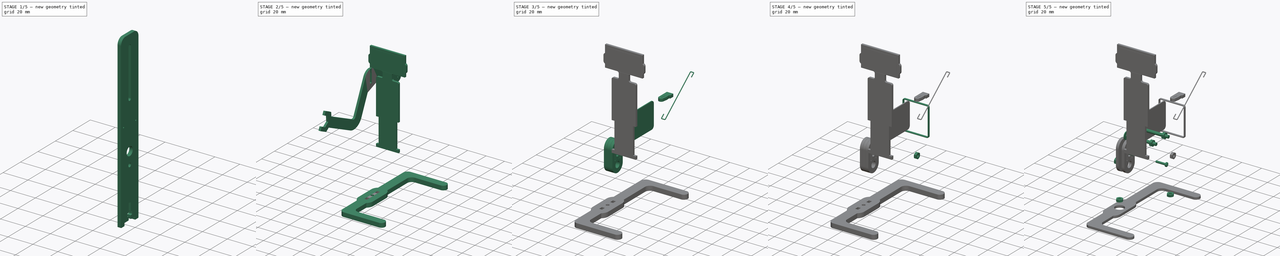
[diagram: build sequence overview — one tinted view per stage of 5, left to right]
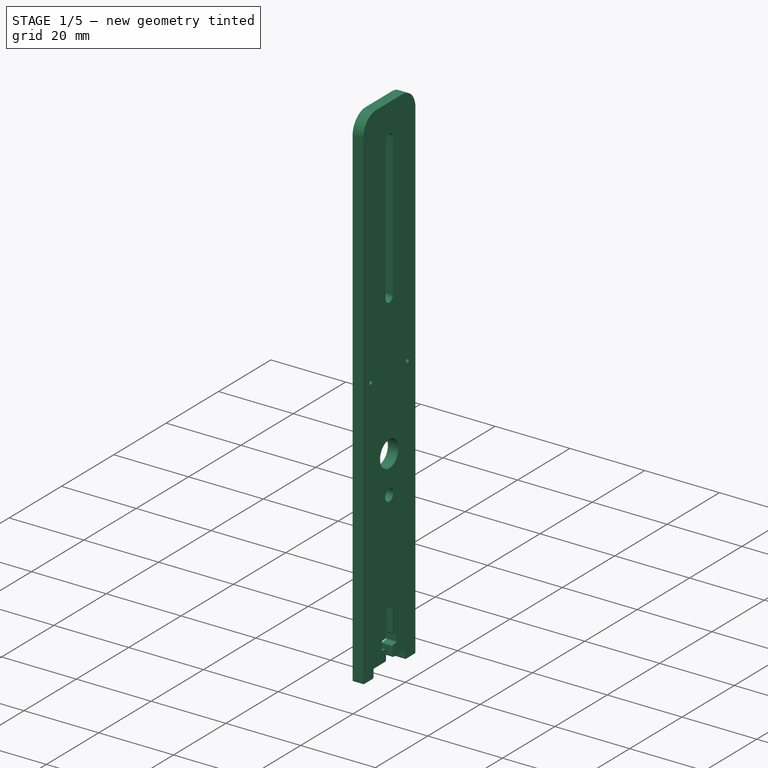
[diagram: stage 1 of 5 — iso view after this stage's code; geometry added in this stage tinted green]
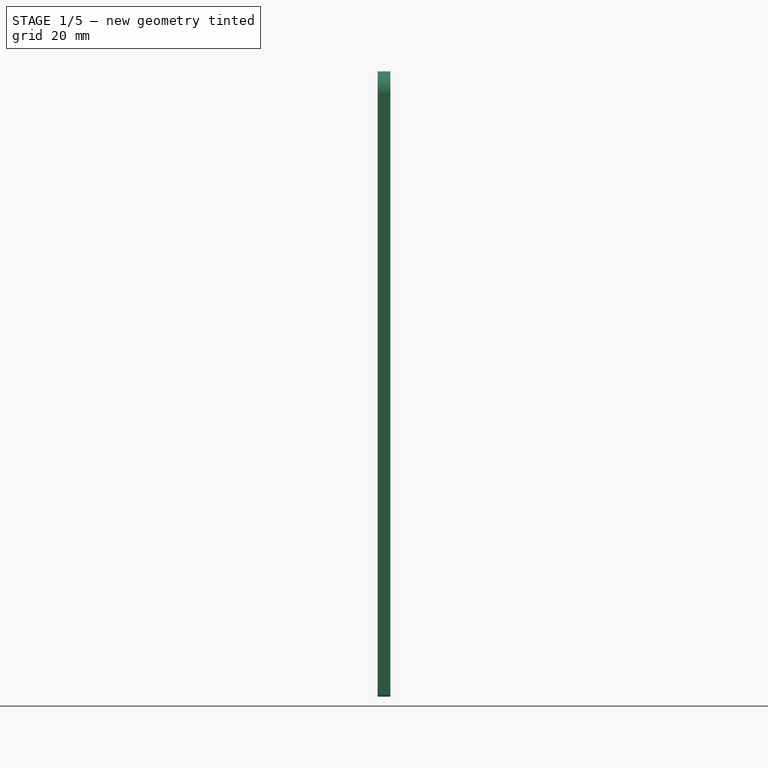
[diagram: stage 1 of 5 — front view after this stage's code; geometry added in this stage tinted green]
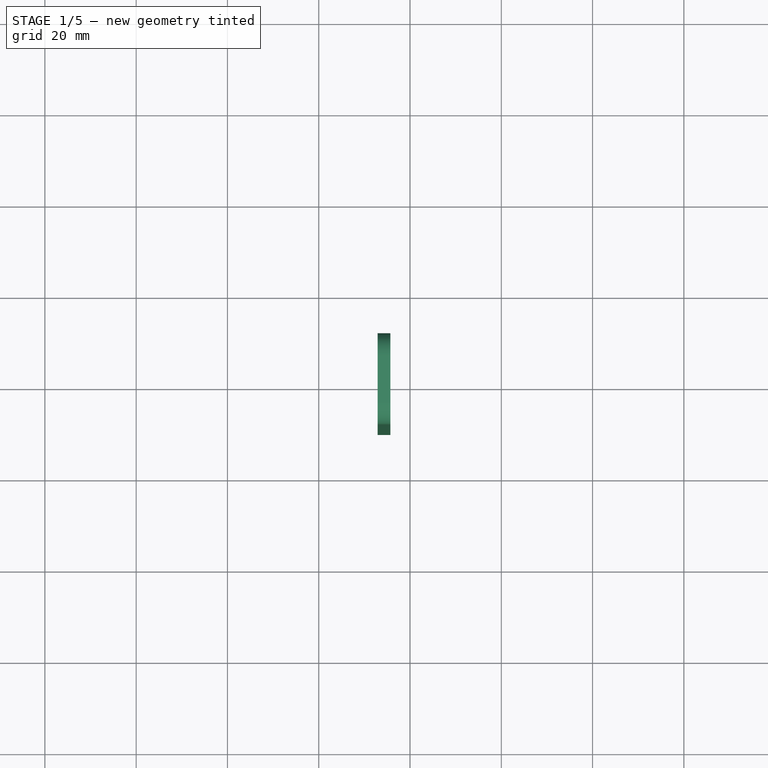
[diagram: stage 1 of 5 — top view after this stage's code; geometry added in this stage tinted green]
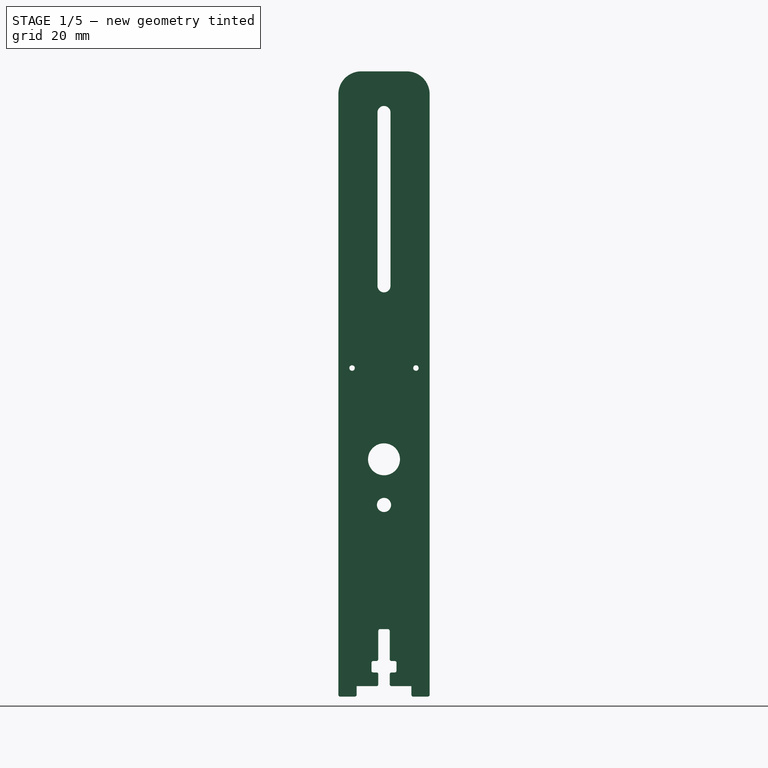
[diagram: stage 1 of 5 — right view after this stage's code; geometry added in this stage tinted green]
FCSTD DOCUMENT  (FreeCAD 0.21R33771 (Git))
Label: walking_robot_06_real_color
License: CERN Open Hardware Licence permissive
LicenseURL: https://cern-ohl.web.cern.ch/
objects: PartDesign::Body×29, PartDesign::SubShapeBinder×26, Part::Part2DObjectPython×24, Sketcher::SketchObject×23, PartDesign::Pad×15, Part::FeaturePython×14, PartDesign::FeatureBase×14, Part::Feature×10, PartDesign::Plane×7, App::DocumentObjectGroup×7, PartDesign::FeaturePython×4, PartDesign::Fillet×3, PartDesign::Pocket×3, Spreadsheet::Sheet×2, PartDesign::CoordinateSystem×2, Part::Box×2, Part::Cut×2, App::Part×2, PartDesign::AdditivePipe×1, TechDraw::DrawSVGTemplate×1, +3 more types
note: 201 computed .brp shape members not serialized (recipe doc carries the construction recipe); baked Part::Feature solids carry a one-line shape summary decoded from their .brp

FEATURE [Spreadsheet::Sheet] Spreadsheet
  cells = A1='acrylic_thick; B1(acrylic_thick)==4.9 mm; A2='acrylic_thin; B2(acrylic_thin)=2.8; A3='cam_length; B3(cam_length)=10; A4='angle; B4(angle)=270; A5='ply_thin; B5(ply_thin)=2.3
FEATURE [Part::Feature] Compound002  label="motoreducteur001"
  Placement = pos=(25.85,-9.4,11.15) rot=(-1,0,0;1.5708rad)
  shape: bbox 70.34 x 38.2 x 22.5 mm, 234 faces, 3 solids (baked)
FEATURE [PartDesign::CoordinateSystem] Local_CS002
  AttacherType = Attacher::AttachEngine3D
  AttachmentOffset = pos=(0,0,0) rot=(0,-1,0;1.5708rad)
  MapMode = 11
  Placement = pos=(-2.8e-15,-19.1,1.8e-15) rot=(0,0,-1;1.5708rad)
  Support = -> [Compound002]
FEATURE [PartDesign::CoordinateSystem] Local_CS003
  AttacherType = Attacher::AttachEngine3D
  AttachmentOffset = pos=(0,0,0) rot=(0,1,0;1.5708rad)
  MapMode = 11
  Placement = pos=(-2.8e-15,19.1,1.9e-15) rot=(0,0,1;4.71239rad)
  Support = -> [Compound002]
FEATURE [PartDesign::SubShapeBinder] Binder
  BindCopyOnChange = 0
  BindMode = 0
  ClaimChildren = false
  Context = -> Body [Binder.]
  Fuse = false
  MakeFace = true
  OffsetFill = false
  OffsetIntersection = false
  OffsetJoinType = 0
  OffsetOpenResult = false
  PartialLoad = false
  Relative = true
  Support = -> [Part001]
  _Version = 2
FEATURE [Sketcher::SketchObject] Sketch
  ExternalGeometry = -> [Binder]
  FullyConstrained = true
  MapMode = 5
  Placement = pos=(-18.4,0,0) rot=(0.57735,-0.57735,-0.57735;2.0944rad)
  Support = -> [Binder]
  expr: Constraints[38] = Spreadsheet.cam_length
  expr: Constraints[81] = Spreadsheet.angle
  sketch-geometry (37):
    g0: ArcOfCircle CenterX=3.55 CenterY=5 CenterZ=0 NormalX=0 NormalY=0 NormalZ=1 AngleXU=0 Radius=0.4 StartAngle=0 EndAngle=3.14159
    g1: ArcOfCircle CenterX=3.55 CenterY=-5 CenterZ=0 NormalX=0 NormalY=0 NormalZ=1 AngleXU=0 Radius=0.4 StartAngle=3.14159 EndAngle=6.28319
    g2: LineSegment StartX=3.15 StartY=5 StartZ=0 EndX=3.15 EndY=-5 EndZ=0
    g3: LineSegment StartX=3.95 StartY=-5 StartZ=0 EndX=3.95 EndY=5 EndZ=0
    g4: ArcOfCircle CenterX=-3.55 CenterY=5 CenterZ=0 NormalX=0 NormalY=0 NormalZ=1 AngleXU=0 Radius=0.4 StartAngle=3e-16 EndAngle=3.14159
    g5: ArcOfCircle CenterX=-3.55 CenterY=-5 CenterZ=0 NormalX=0 NormalY=0 NormalZ=1 AngleXU=0 Radius=0.4 StartAngle=3.14159 EndAngle=6.28319
    g6: LineSegment StartX=-3.15 StartY=-5 StartZ=0 EndX=-3.15 EndY=5 EndZ=0
    g7: LineSegment StartX=3.55 StartY=5 StartZ=0 EndX=3.55 EndY=-5 EndZ=0
    g8: LineSegment StartX=-3.55 StartY=5 StartZ=0 EndX=-3.55 EndY=-5 EndZ=0
    g9: ArcOfCircle CenterX=1.55 CenterY=5 CenterZ=0 NormalX=0 NormalY=0 NormalZ=1 AngleXU=0 Radius=0.2 StartAngle=0 EndAngle=3.14159
    g10: ArcOfCircle CenterX=1.55 CenterY=-5 CenterZ=0 NormalX=0 NormalY=0 NormalZ=1 AngleXU=0 Radius=0.2 StartAngle=3.14159 EndAngle=6.28319
    g11: LineSegment StartX=1.35 StartY=5 StartZ=0 EndX=1.35 EndY=2.16333 EndZ=0
    g12: LineSegment StartX=1.75 StartY=-5 StartZ=0 EndX=1.75 EndY=5 EndZ=0
    g13: ArcOfCircle CenterX=-1.55 CenterY=5 CenterZ=0 NormalX=0 NormalY=0 NormalZ=1 AngleXU=0 Radius=0.2 StartAngle=5e-16 EndAngle=3.14159
    g14: ArcOfCircle CenterX=-1.55 CenterY=-5 CenterZ=0 NormalX=0 NormalY=0 NormalZ=1 AngleXU=0 Radius=0.2 StartAngle=3.14159 EndAngle=6.28319
    g15: LineSegment StartX=-1.75 StartY=5 StartZ=0 EndX=-1.75 EndY=-5 EndZ=0
    g16: LineSegment StartX=-1.35 StartY=-5 StartZ=0 EndX=-1.35 EndY=-2.16333 EndZ=0
    g17: LineSegment StartX=1.55 StartY=5 StartZ=0 EndX=1.55 EndY=-5 EndZ=0
    g18: LineSegment StartX=-1.55 StartY=5 StartZ=0 EndX=-1.55 EndY=-5 EndZ=0
    g19: LineSegment StartX=3.55 StartY=-4.2e-15 StartZ=0 EndX=1.55 EndY=-3.8e-15 EndZ=0
    g20: ArcOfCircle CenterX=9.6e-15 CenterY=5 CenterZ=0 NormalX=0 NormalY=0 NormalZ=1 AngleXU=0 Radius=7.5 StartAngle=0 EndAngle=3.14159
    g21: ArcOfCircle CenterX=6.9e-15 CenterY=-10 CenterZ=0 NormalX=0 NormalY=0 NormalZ=1 AngleXU=0 Radius=7.5 StartAngle=3.14159 EndAngle=6.28319
    g22: LineSegment StartX=-7.5 StartY=5 StartZ=0 EndX=-7.5 EndY=-10 EndZ=0
    g23: LineSegment StartX=7.5 StartY=-10 StartZ=0 EndX=7.5 EndY=5 EndZ=0
    g24: LineSegment StartX=8.7e-15 StartY=-3.6e-15 StartZ=0 EndX=9.6e-15 EndY=5 EndZ=0
    g25: LineSegment StartX=8.7e-15 StartY=-3.6e-15 StartZ=0 EndX=6.9e-15 EndY=-10 EndZ=0
    g26: Circle CenterX=6.9e-15 CenterY=-10 CenterZ=0 NormalX=0 NormalY=0 NormalZ=1 AngleXU=0 Radius=3.1
    g27: LineSegment StartX=-3.95 StartY=-5 StartZ=0 EndX=-3.95 EndY=5 EndZ=0
    g28: LineSegment StartX=1.55 StartY=-3.8e-15 StartZ=0 EndX=8.7e-15 EndY=-3.6e-15 EndZ=0
    g29: Circle CenterX=8.7e-15 CenterY=-3.6e-15 CenterZ=0 NormalX=0 NormalY=0 NormalZ=1 AngleXU=0 Radius=1.75
    g30: LineSegment StartX=-1.75 StartY=-4.1e-15 StartZ=0 EndX=-1.85 EndY=-4.1e-15 EndZ=0
    g31: LineSegment StartX=-3.55 StartY=-2.9e-15 StartZ=0 EndX=-1.55 EndY=-3.3e-15 EndZ=0
    g32: LineSegment StartX=8.7e-15 StartY=-3.6e-15 StartZ=0 EndX=-1.55 EndY=-3.3e-15 EndZ=0
    g33: LineSegment StartX=-1.35 StartY=2.16333 StartZ=0 EndX=-1.35 EndY=5 EndZ=0
    g34: LineSegment StartX=1.35 StartY=-2.16333 StartZ=0 EndX=1.35 EndY=-5 EndZ=0
    g35: ArcOfCircle CenterX=8.7e-15 CenterY=-3.6e-15 CenterZ=0 NormalX=0 NormalY=0 NormalZ=1 AngleXU=0 Radius=2.55 StartAngle=1.01289 EndAngle=2.1287
    g36: ArcOfCircle CenterX=8.7e-15 CenterY=-3.6e-15 CenterZ=0 NormalX=0 NormalY=0 NormalZ=1 AngleXU=0 Radius=2.55 StartAngle=4.15448 EndAngle=5.2703
  constraints (89):
    c: Tangent(g0,g2) = -1.5708
    c: Tangent(g2,g1) = -1.5708
    c: Tangent(g1,g3) = -1.5708
    c: Tangent(g5,g6) = -1.5708
    c: Tangent(g6,g4) = -1.5708
    c: Radius(g0) = 0.4
    c: Coincident(g7,g0)
    c: Coincident(g7,g1)
    c: Coincident(g8,g4)
    c: Coincident(g8,g5)
    c: Equal(g7,g8)
    c: Distance(g7) = 10
    c: Tangent(g9,g11) = -1.5708
    c: Tangent(g10,g12) = -1.5708
    c: Tangent(g12,g9) = -1.5708
    c: Tangent(g13,g15) = -1.5708
    c: Tangent(g15,g14) = -1.5708
    c: Tangent(g14,g16) = -1.5708
    c: Coincident(g17,g9)
    c: Coincident(g17,g10)
    c: Coincident(g18,g13)
    c: Coincident(g18,g14)
    c: Equal(g17,g7)
    c: Equal(g8,g18)
    c: Symmetric(g10,g9,g19)
    c: Distance(g19) = 2
    c: Perpendicular(g7,g19)
    c: Parallel(g17,g7)
    c: Parallel(g18,g8)
    c: Tangent(g20,g22) = -1.5708
    c: Tangent(g22,g21) = -1.5708
    c: Tangent(g21,g23) = -1.5708
    c: Tangent(g23,g20) = -1.5708
    c: Equal(g20,g21)
    c: Coincident(g24,g20)
    c: Coincident(g25,g21)
    c: Diameter(g20) = 15
    c: Distance(g24) = 5
    c: Distance(g25) = 10
    c: Coincident(g26,g21)
    c: Diameter(g26) = 6.2
    c: Tangent(g27,g4) = 1.5708
    c: Tangent(g27,g5) = 1.5708
    c: Symmetric(g0,g1,g19)
    c: Coincident(g28,g19)
    c: Parallel(g28,g19)
    c: Perpendicular(g28,g24)
    c: Tangent(g0,g3) = -1.5708
    c: PointOnObject(g30,g29)
    c: Horizontal(g30)
    c: Symmetric(g-5,g-5,g30)
    c: DistanceX(g30,g30) = 0.1
    c: Perpendicular(g25,g28)
    c: Symmetric(g14,g13,g31)
    c: Symmetric(g5,g4,g31)
    c: Equal(g31,g19)
    c: Coincident(g32,g31)
    c: Equal(g28,g32)
    c: Perpendicular(g32,g24)
    c: Perpendicular(g32,g18)
    c: Perpendicular(g18,g31)
    c: Tangent(g15,g29)
    c: PointOnObject(g34,g11)
    c: PointOnObject(g33,g-3)
    c: Parallel(g33,g17)
    c: Parallel(g17,g34)
    c: Tangent(g33,g13) = -1.5708
    c: Tangent(g34,g10) = -1.5708
    c: Coincident(g25,g32)
    c: Coincident(g25,g24)
    c: Coincident(g25,g28)
    c: Coincident(g24,g29)
    c: Coincident(g35,g24)
    c: Coincident(g35,g33)
    c: Coincident(g35,g11)
    c: Coincident(g36,g35)
    c: Coincident(g36,g34)
    c: Equal(g36,g-4)
    c: Coincident(g16,g36)
    c: Parallel(g16,g18)
    c: Coincident(g35,g-4)
    c: Angle(g25) = 4.71239
    c: Equal(g5,g1)
    c: Equal(g1,g4)
    c: Equal(g4,g0)
    c: Equal(g13,g9)
    c: Equal(g9,g14)
    c: Equal(g14,g10)
    c: Radius(g9) = 0.2
FEATURE [PartDesign::SubShapeBinder] Binder001
  BindCopyOnChange = 0
  BindMode = 0
  ClaimChildren = false
  Context = -> Body002 [Binder001.]
  Fuse = false
  MakeFace = true
  OffsetFill = false
  OffsetIntersection = false
  OffsetJoinType = 0
  OffsetOpenResult = false
  PartialLoad = false
  Relative = true
  Support = -> [Part001]
  _Version = 2
FEATURE [Part::Box] Box  label="Cube"
  AttacherType = Attacher::AttachEngine3D
  Height = 10
  Length = 10
  Placement = pos=(-5,18.4,-5) rot=(0,0,1;0rad)
  Width = 10
FEATURE [Part::Box] Box001  label="Cube001"
  AttacherType = Attacher::AttachEngine3D
  Height = 10
  Length = 10
  Placement = pos=(-5,-28.4,-5) rot=(0,0,1;0rad)
  Width = 10
FEATURE [Part::Cut] Cut
  Base = -> Compound002
  Tool = -> Box
FEATURE [Part::Cut] Cut001
  Base = -> Cut
  Tool = -> Box001
FEATURE [App::Part] Part001  label="Motor"
  Group = -> [Box001,Compound002,Local_CS002,Local_CS003,Box,Cut,Cut001]
  Origin = -> Origin004
  Placement = pos=(0,0,0) rot=(-0.57735,0.57735,-0.57735;4.18879rad)
FEATURE [PartDesign::Pad] Pad
  Direction = (-1,0,0)
  Length = 2.8
  Length2 = 10
  Profile = -> Sketch
  ReferenceAxis = -> Sketch [N_Axis]
  Reversed = true
  Type = 0
  expr: Length = Spreadsheet.acrylic_thin
FEATURE [PartDesign::Body] Body  label="cam_right_1"
  Group = -> [Sketch,Binder,Pad]
  Origin = -> Origin001
  Tip = -> Pad
FEATURE [PartDesign::SubShapeBinder] Binder002
  BindCopyOnChange = 0
  BindMode = 0
  ClaimChildren = false
  Context = -> Body003 [Binder002.]
  Fuse = false
  MakeFace = true
  OffsetFill = false
  OffsetIntersection = false
  OffsetJoinType = 0
  OffsetOpenResult = false
  PartialLoad = false
  Relative = true
  Support = -> [Body]
  _Version = 2
FEATURE [PartDesign::Plane] DatumPlane001
  AttachmentOffset = pos=(0,0,0.1) rot=(0,0,1;0rad)
  Length = 60
  MapMode = 5
  Placement = pos=(-18.5,0,0) rot=(0.57735,-0.57735,-0.57735;2.0944rad)
  ResizeMode = 0
  Support = -> [Binder002]
  Width = 60
FEATURE [Sketcher::SketchObject] Sketch002
  ExternalGeometry = -> [Binder002]
  FullyConstrained = true
  MapMode = 5
  Placement = pos=(-18.5,0,0) rot=(0.57735,-0.57735,-0.57735;2.0944rad)
  Support = -> [DatumPlane001]
  sketch-geometry (6):
    g0: ArcOfCircle CenterX=-1.6948e-12 CenterY=5 CenterZ=0 NormalX=0 NormalY=0 NormalZ=1 AngleXU=0 Radius=7.5 StartAngle=2.58e-13 EndAngle=3.14159
    g1: ArcOfCircle CenterX=2.174e-12 CenterY=-10 CenterZ=0 NormalX=0 NormalY=0 NormalZ=1 AngleXU=0 Radius=7.5 StartAngle=3.14159 EndAngle=6.28319
    g2: LineSegment StartX=-7.5 StartY=5 StartZ=0 EndX=-7.5 EndY=-10 EndZ=0
    g3: LineSegment StartX=7.5 StartY=-10 StartZ=0 EndX=7.5 EndY=5 EndZ=0
    g4: Circle CenterX=2.174e-12 CenterY=-10 CenterZ=0 NormalX=0 NormalY=0 NormalZ=1 AngleXU=0 Radius=3.1
    g5: Circle CenterX=0 CenterY=0 CenterZ=0 NormalX=0 NormalY=0 NormalZ=1 AngleXU=0 Radius=1
  constraints (12):
    c: Tangent(g0,g2) = -1.5708
    c: Tangent(g2,g1) = -1.5708
    c: Tangent(g1,g3) = -1.5708
    c: Tangent(g3,g0) = -1.5708
    c: Equal(g0,g1)
    c: Coincident(g0,g-3)
    c: Coincident(g1,g-5)
    c: Equal(g0,g-3)
    c: Coincident(g4,g1)
    c: Equal(g4,g-5)
    c: Coincident(g5,g-6)
    c: Diameter(g5) = 2
FEATURE [PartDesign::Pad] Pad002
  Direction = (-1,0,0)
  Length = 2.8
  Length2 = 10
  Placement = pos=(-18.5,0,0) rot=(0.57735,-0.57735,-0.57735;2.0944rad)
  Profile = -> Sketch002
  ReferenceAxis = -> Sketch002 [N_Axis]
  Type = 0
  expr: Length = Spreadsheet.acrylic_thin
FEATURE [PartDesign::Body] Body003  label="cam_right_2"
  Group = -> [Binder002,DatumPlane001,Sketch002,Pad002]
  Origin = -> Origin
  Tip = -> Pad002
FEATURE [PartDesign::SubShapeBinder] Binder003
  BindCopyOnChange = 0
  BindMode = 0
  ClaimChildren = false
  Context = -> Body004 [Binder003.]
  Fuse = false
  MakeFace = true
  OffsetFill = false
  OffsetIntersection = false
  OffsetJoinType = 0
  OffsetOpenResult = false
  PartialLoad = false
  Relative = true
  Support = -> [Body003]
  _Version = 2
FEATURE [PartDesign::Plane] DatumPlane002
  AttachmentOffset = pos=(0,0,0.1) rot=(0,0,1;0rad)
  Length = 60
  MapMode = 5
  Placement = pos=(-21.4,2.3e-15,2.3e-15) rot=(-0.57735,0.57735,0.57735;4.18879rad)
  ResizeMode = 0
  Support = -> [Binder003]
  Width = 60
FEATURE [Sketcher::SketchObject] Sketch003
  ExternalGeometry = -> [Binder003]
  FullyConstrained = true
  MapMode = 5
  Placement = pos=(-21.4,2.3e-15,2.3e-15) rot=(0.57735,-0.57735,-0.57735;2.0944rad)
  Support = -> [DatumPlane002]
  sketch-geometry (6):
    g0: ArcOfCircle CenterX=-1.6956e-12 CenterY=5 CenterZ=0 NormalX=0 NormalY=0 NormalZ=1 AngleXU=0 Radius=7.5 StartAngle=2.581e-13 EndAngle=3.14159
    g1: ArcOfCircle CenterX=2.1765e-12 CenterY=-10 CenterZ=0 NormalX=0 NormalY=0 NormalZ=1 AngleXU=0 Radius=7.5 StartAngle=3.14159 EndAngle=6.28319
    g2: LineSegment StartX=-7.5 StartY=5 StartZ=0 EndX=-7.5 EndY=-10 EndZ=0
    g3: LineSegment StartX=7.5 StartY=-10 StartZ=0 EndX=7.5 EndY=5 EndZ=0
    g4: Circle CenterX=2.1765e-12 CenterY=-10 CenterZ=0 NormalX=0 NormalY=0 NormalZ=1 AngleXU=0 Radius=3.1
    g5: Circle CenterX=0 CenterY=0 CenterZ=0 NormalX=0 NormalY=0 NormalZ=1 AngleXU=0 Radius=3
  constraints (12):
    c: Tangent(g0,g2) = -1.5708
    c: Tangent(g2,g1) = -1.5708
    c: Tangent(g1,g3) = -1.5708
    c: Tangent(g3,g0) = -1.5708
    c: Equal(g0,g1)
    c: Coincident(g0,g-3)
    c: Coincident(g1,g-5)
    c: Equal(g0,g-3)
    c: Coincident(g4,g1)
    c: Equal(g4,g-5)
    c: Coincident(g5,g-6)
    c: Diameter(g5) = 6
FEATURE [PartDesign::Pad] Pad003
  Direction = (-1,2e-16,2e-16)
  Length = 2.8
  Length2 = 10
  Placement = pos=(-21.4,2e-15,5e-15) rot=(0.57735,-0.57735,-0.57735;2.0944rad)
  Profile = -> Sketch003
  ReferenceAxis = -> Sketch003 [N_Axis]
  Type = 0
  expr: Length = Spreadsheet.acrylic_thin
FEATURE [PartDesign::Body] Body004  label="cam_right_3"
  Group = -> [Binder003,DatumPlane002,Sketch003,Pad003]
  Origin = -> Origin005
  Tip = -> Pad003
FEATURE [PartDesign::SubShapeBinder] Binder004
  BindCopyOnChange = 0
  BindMode = 0
  ClaimChildren = false
  Context = -> Body002 [Binder004.]
  Fuse = false
  MakeFace = true
  OffsetFill = false
  OffsetIntersection = false
  OffsetJoinType = 0
  OffsetOpenResult = false
  PartialLoad = false
  Relative = true
  Support = -> [Body004]
  _Version = 2
FEATURE [PartDesign::Plane] DatumPlane003
  AttachmentOffset = pos=(0,0,0.1) rot=(0,0,1;0rad)
  Length = 66.5529
  MapMode = 5
  Placement = pos=(-24.3,8.5e-15,1e-15) rot=(-0.57735,0.57735,0.57735;4.18879rad)
  ResizeMode = 0
  Support = -> [Binder004]
  Width = 153.553
FEATURE [Sketcher::SketchObject] Sketch001
  ExternalGeometry = -> [Binder004]
  FullyConstrained = true
  MapMode = 5
  Placement = pos=(-24.3,8.5e-15,1e-15) rot=(-0.57735,0.57735,0.57735;4.18879rad)
  Support = -> [DatumPlane003]
  expr: Constraints[105] = Spreadsheet.cam_length
  expr: Constraints[19] = Spreadsheet.acrylic_thin + 0.05
  expr: Constraints[92] = Spreadsheet.angle
  expr: Constraints[98] = Spreadsheet.ply_thin
  sketch-geometry (38):
    g0: LineSegment StartX=-10 StartY=85 StartZ=0 EndX=10 EndY=85 EndZ=0
    g1: LineSegment StartX=10 StartY=85 StartZ=0 EndX=10 EndY=-52 EndZ=0
    g2: LineSegment StartX=10 StartY=-52 StartZ=0 EndX=-10 EndY=-52 EndZ=0
    g3: LineSegment StartX=-10 StartY=-52 StartZ=0 EndX=-10 EndY=85 EndZ=0
    g4: LineSegment StartX=-1.8e-15 StartY=-10 StartZ=0 EndX=-10 EndY=-10 EndZ=0
    g5: LineSegment StartX=-1.8e-15 StartY=-10 StartZ=0 EndX=10 EndY=-10 EndZ=0
    g6: ArcOfCircle CenterX=-2e-16 CenterY=76 CenterZ=0 NormalX=0 NormalY=0 NormalZ=1 AngleXU=0 Radius=1.425 StartAngle=-3.6e-15 EndAngle=3.14159
    g7: ArcOfCircle CenterX=-7e-16 CenterY=38 CenterZ=0 NormalX=0 NormalY=0 NormalZ=1 AngleXU=0 Radius=1.425 StartAngle=3.14159 EndAngle=6.28319
    g8: LineSegment StartX=-1.425 StartY=76 StartZ=0 EndX=-1.425 EndY=38 EndZ=0
    g9: LineSegment StartX=1.425 StartY=38 StartZ=0 EndX=1.425 EndY=76 EndZ=0
    g10: LineSegment StartX=-2e-16 StartY=76 StartZ=0 EndX=0 EndY=85 EndZ=0
    g11: Circle CenterX=-1.8e-15 CenterY=-10 CenterZ=0 NormalX=0 NormalY=0 NormalZ=1 AngleXU=0 Radius=1.55
    g12: LineSegment StartX=0 StartY=0 StartZ=0 EndX=-1.8e-15 EndY=-10 EndZ=0
    g13: Circle CenterX=0 CenterY=71 CenterZ=0 NormalX=0 NormalY=0 NormalZ=1 AngleXU=0 Radius=1.425
    g14: LineSegment StartX=0 StartY=71 StartZ=0 EndX=0 EndY=0 EndZ=0
    g15: LineSegment StartX=-7e-16 StartY=38 StartZ=0 EndX=-4e-16 EndY=57 EndZ=0
    g16: LineSegment StartX=-2e-16 StartY=76 StartZ=0 EndX=-4e-16 EndY=57 EndZ=0
    g17: LineSegment StartX=-10 StartY=-52 StartZ=0 EndX=-6 EndY=-52 EndZ=0
    g18: LineSegment StartX=-6 StartY=-52 StartZ=0 EndX=-6 EndY=-49.7 EndZ=0
    g19: LineSegment StartX=-6 StartY=-49.7 StartZ=0 EndX=-1.25 EndY=-49.7 EndZ=0
    g20: LineSegment StartX=-1.25 StartY=-49.7 StartZ=0 EndX=-1.25 EndY=-46.7 EndZ=0
    g21: LineSegment StartX=-1.25 StartY=-46.7 StartZ=0 EndX=-2.75 EndY=-46.7 EndZ=0
    g22: LineSegment StartX=-2.75 StartY=-46.7 StartZ=0 EndX=-2.75 EndY=-44.2 EndZ=0
    g23: LineSegment StartX=-2.75 StartY=-44.2 StartZ=0 EndX=-1.25 EndY=-44.2 EndZ=0
    g24: LineSegment StartX=-1.25 StartY=-44.2 StartZ=0 EndX=-1.25 EndY=-37.2 EndZ=0
    g25: LineSegment StartX=-1.25 StartY=-37.2 StartZ=0 EndX=1.25 EndY=-37.2 EndZ=0
    g26: LineSegment StartX=1.25 StartY=-37.2 StartZ=0 EndX=1.25 EndY=-44.2 EndZ=0
    g27: LineSegment StartX=1.25 StartY=-44.2 StartZ=0 EndX=2.75 EndY=-44.2 EndZ=0
    g28: LineSegment StartX=2.75 StartY=-44.2 StartZ=0 EndX=2.75 EndY=-46.7 EndZ=0
    g29: LineSegment StartX=2.75 StartY=-46.7 StartZ=0 EndX=1.25 EndY=-46.7 EndZ=0
    g30: LineSegment StartX=1.25 StartY=-46.7 StartZ=0 EndX=1.25 EndY=-49.7 EndZ=0
    g31: LineSegment StartX=1.25 StartY=-49.7 StartZ=0 EndX=6 EndY=-49.7 EndZ=0
    g32: LineSegment StartX=6 StartY=-49.7 StartZ=0 EndX=6 EndY=-52 EndZ=0
    g33: LineSegment StartX=6 StartY=-52 StartZ=0 EndX=10 EndY=-52 EndZ=0
    g34: LineSegment StartX=-7 StartY=-10 StartZ=0 EndX=-7 EndY=20 EndZ=0
    g35: LineSegment StartX=7 StartY=20 StartZ=0 EndX=7 EndY=-10 EndZ=0
    g36: Circle CenterX=-7 CenterY=20 CenterZ=0 NormalX=0 NormalY=0 NormalZ=1 AngleXU=0 Radius=0.6
    g37: Circle CenterX=7 CenterY=20 CenterZ=0 NormalX=0 NormalY=0 NormalZ=1 AngleXU=0 Radius=0.6
  constraints (107):
    c: Coincident(g0,g1)
    c: Coincident(g1,g2)
    c: Coincident(g2,g3)
    c: Coincident(g3,g0)
    c: Distance(g0) = 20
    c: Perpendicular(g3,g0)
    c: Perpendicular(g1,g2)
    c: Perpendicular(g2,g3)
    c: PointOnObject(g4,g3)
    c: PointOnObject(g5,g1)
    c: Perpendicular(g1,g5)
    c: Perpendicular(g3,g4)
    c: Equal(g4,g5)
    c: Distance(g3) = 137
    c: Tangent(g6,g8) = -1.5708
    c: Tangent(g8,g7) = -1.5708
    c: Tangent(g7,g9) = -1.5708
    c: Tangent(g9,g6) = -1.5708
    c: Equal(g6,g7)
    c: Diameter(g7) = 2.85
    c: Distance(g6,g7) = 38
    c: Coincident(g10,g6)
    c: Perpendicular(g0,g10)
    c: Distance(g10) = 9
    c: Symmetric(g0,g0,g10)
    c: Parallel(g8,g3)
    c: Diameter(g11) = 3.1
    c: Coincident(g14,g13)
    c: DistanceY(g14,g14) = 71
    c: Coincident(g14,g12)
    c: Coincident(g15,g7)
    c: Coincident(g16,g6)
    c: Coincident(g16,g15)
    c: Equal(g16,g15)
    c: Parallel(g16,g8)
    c: Tangent(g13,g9)
    c: Vertical(g14)
    c: Coincident(g17,g3)
    c: Coincident(g17,g18)
    c: Coincident(g18,g19)
    c: Coincident(g19,g20)
    c: Coincident(g20,g21)
    c: Coincident(g21,g22)
    c: Coincident(g22,g23)
    c: Coincident(g23,g24)
    c: Coincident(g24,g25)
    c: Coincident(g25,g26)
    c: Coincident(g26,g27)
    c: Coincident(g27,g28)
    c: Coincident(g28,g29)
    c: Coincident(g29,g30)
    c: Coincident(g30,g31)
    c: Coincident(g31,g32)
    c: Coincident(g32,g33)
    c: Coincident(g33,g1)
    c: Perpendicular(g17,g3)
    c: Perpendicular(g33,g1)
    c: Perpendicular(g32,g33)
    c: Perpendicular(g17,g18)
    c: Perpendicular(g19,g18)
    c: Perpendicular(g32,g31)
    c: Perpendicular(g31,g30)
    c: Perpendicular(g19,g20)
    c: Perpendicular(g29,g30)
    c: Perpendicular(g20,g21)
    c: Perpendicular(g28,g29)
    c: Perpendicular(g22,g21)
    c: Perpendicular(g28,g27)
    c: Perpendicular(g23,g22)
    c: Perpendicular(g27,g26)
    c: Perpendicular(g24,g23)
    c: Equal(g18,g32)
    c: Equal(g30,g20)
    c: Equal(g29,g21)
    c: Equal(g23,g27)
    c: Equal(g19,g31)
    c: Distance(g22,g27) = 5.5
    c: Equal(g25,g22)
    c: Equal(g22,g28)
    c: Distance(g24) = 7
    c: Perpendicular(g25,g26)
    c: Equal(g21,g23)
    c: PointOnObject(g34,g4)
    c: Equal(g34,g35)
    c: Distance(g34,g4) = 3
    c: Coincident(g36,g34)
    c: Coincident(g37,g35)
    c: Equal(g37,g36)
    c: Diameter(g37) = 1.2
    c: Distance(g34) = 30
    c: Perpendicular(g5,g35)
    c: Perpendicular(g4,g34)
    c: Angle(g12) = 4.71239
    c: Equal(g17,g33)
    c: Distance(g17) = 4
    c: DistanceY(g3,g12) = 52
    c: Coincident(g12,g-1)
    c: DistanceY(g22,g22) = 2.5
    c: DistanceY(g18,g18) = 2.3
    c: DistanceY(g20,g20) = 3
    c: Equal(g7,g13)
    c: Coincident(g4,g5)
    c: Coincident(g4,g12)
    c: Coincident(g4,g11)
    c: Symmetric(g35,g34,g11)
    c: Distance(g12,g11) = 10
    c: DistanceY(g13,g6) = 5
FEATURE [PartDesign::Pad] Pad004
  Direction = (-1,4e-16,4e-16)
  Length = 2.8
  Length2 = 10
  Placement = pos=(-24.3,1.1e-14,9e-15) rot=(0.57735,-0.57735,-0.57735;2.0944rad)
  Profile = -> Sketch001
  ReferenceAxis = -> Sketch001 [N_Axis]
  Type = 0
  expr: Length = Spreadsheet.acrylic_thin
FEATURE [PartDesign::Body] Body015  label="feet_left"
  Group = -> [Clone007]
  Origin = -> Origin017
  Placement = pos=(1e-14,0,-83.2) rot=(0,1,0;3.14159rad)
  Tip = -> Clone007
FEATURE [PartDesign::Fillet] Fillet
  Base = -> Pad004 [Edge1,Edge2,Edge11,Edge14,Edge53,Edge20,Edge38,Edge35,Edge50,Edge23,Edge41,Edge32,Edge26,Edge47,Edge44,Edge29]
  BaseFeature = -> Pad004
  Placement = pos=(-24.3,1.1e-14,9e-15) rot=(0.57735,-0.57735,-0.57735;2.0944rad)
  Radius = 0.4
  SupportTransform = false
  UseAllEdges = false
FEATURE [PartDesign::Fillet] Fillet001
  Base = -> Fillet [Edge91,Edge93]
  BaseFeature = -> Fillet
  Placement = pos=(-24.3,1.1e-14,9e-15) rot=(0.57735,-0.57735,-0.57735;2.0944rad)
  Radius = 5
  SupportTransform = false
  UseAllEdges = false
FEATURE [PartDesign::Body] Body031  label="brass_wire_right"
  Group = -> [Clone013]
  Origin = -> Origin034
  Placement = pos=(-4e-15,-32.75,11.6) rot=(0,0.694658,0.71934;3.14159rad)
  Tip = -> Clone013
FEATURE [App::DocumentObjectGroup] Group003  label="other_parts"
  Group = -> [Part001,batt_9V005_cp_sp,Body025,Body026,Body027,Body030,Body031]
FEATURE [TechDraw::DrawSVGTemplate] Template
  Height = 210
  Orientation = 1
  Template = <userpath>/Documents/FreeCAD/Templates/A4_Landscape_blank.svg
  Width = 297
FEATURE [TechDraw::DrawViewPart] View
  CoarseView = false
  Direction = (0,-0.707107,0.707107)
  Focus = 100
  HardHidden = false
  IsoCount = 0
  IsoHidden = false
  IsoVisible = false
  LockPosition = false
  Perspective = false
  Rotation = 0
  ScaleType = 0
  ScrubCount = 0
  SeamHidden = false
  SeamVisible = false
  SmoothHidden = false
  SmoothVisible = true
  Source = -> [Body030]
  X = 148.5
  XDirection = (0,0.707107,0.707107)
  Y = 105
FEATURE [TechDraw::DrawViewAnnotation] Annotation
  Font = Droid Sans Mono
  LineSpace = 100
  LockPosition = false
  MaxWidth = -1
  Rotation = 0
  ScaleType = 0
  Text = Brass Wire, 0.8mm dia | length  = 4+4+2.8+2.8+51.95 | length = approx 66 mm long
  TextSize = 3
  TextStyle = 0
  X = 150.297
  Y = 144.338
FEATURE [TechDraw::DrawPage] Page
  KeepUpdated = true
  NextBalloonIndex = 1
  ProjectionType = 1
  Template = -> Template
  Views = -> [View,Annotation]
FEATURE [Sketcher::SketchObject] Sketch019
  FullyConstrained = true
  MapMode = 5
  Placement = pos=(-27.1,1.25e-14,7.4e-15) rot=(-0.57735,0.57735,0.57735;4.18879rad)
  Support = -> [Fillet001]
  sketch-geometry (1):
    g0: Circle CenterX=0 CenterY=0 CenterZ=0 NormalX=0 NormalY=0 NormalZ=1 AngleXU=0 Radius=3.5
  constraints (2):
    c: Coincident(g0,g-1)
    c: Diameter(g0) = 7
FEATURE [PartDesign::Pocket] Pocket
  BaseFeature = -> Fillet001
  Direction = (1,-9e-16,-1e-16)
  Length = 5
  Length2 = 5
  Placement = pos=(-24.3,1.1e-14,9e-15) rot=(0.57735,-0.57735,-0.57735;2.0944rad)
  Profile = -> Sketch019
  ReferenceAxis = -> Sketch019 [N_Axis]
  Type = 1
FEATURE [PartDesign::Body] Body002  label="leg_right"
  Group = -> [Sketch001,Binder001,Binder004,DatumPlane003,Pad004,Fillet,Fillet001,Sketch019,Pocket]
  Origin = -> Origin003
  Tip = -> Pocket
FEATURE [PartDesign::FeatureBase] Clone006
  BaseFeature = -> Body002
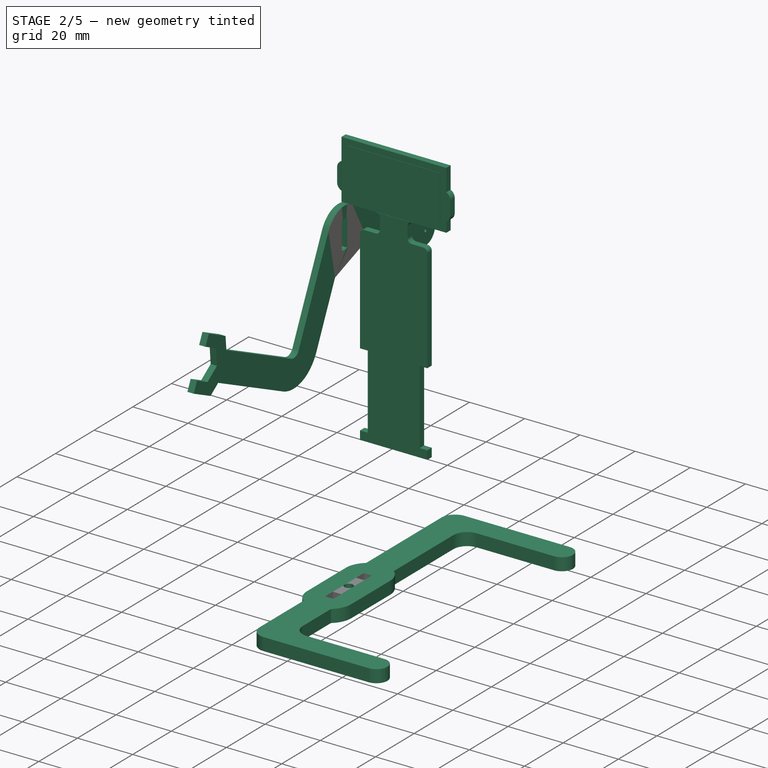
[diagram: stage 2 of 5 — iso view after this stage's code; geometry added in this stage tinted green]
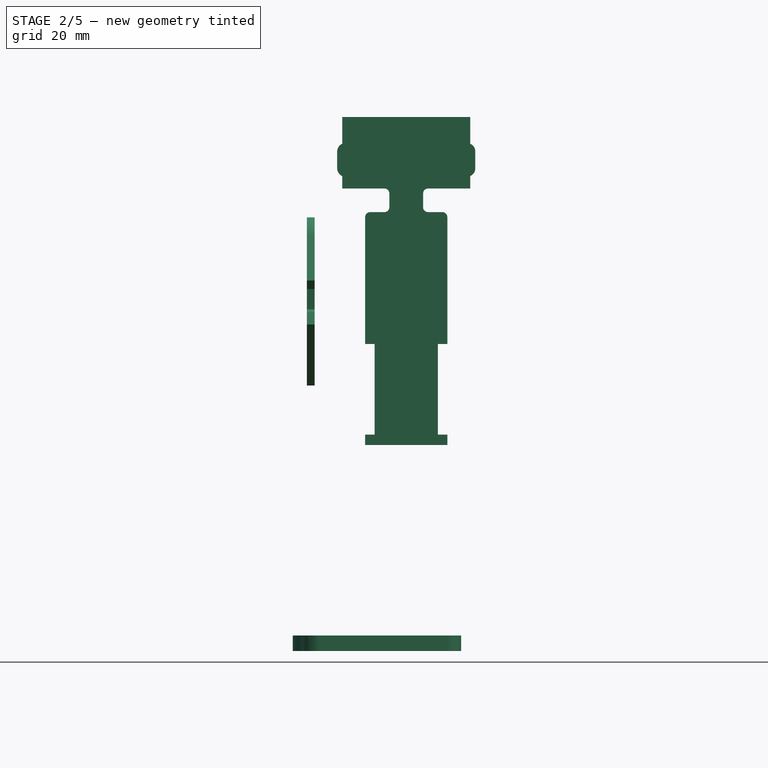
[diagram: stage 2 of 5 — front view after this stage's code; geometry added in this stage tinted green]
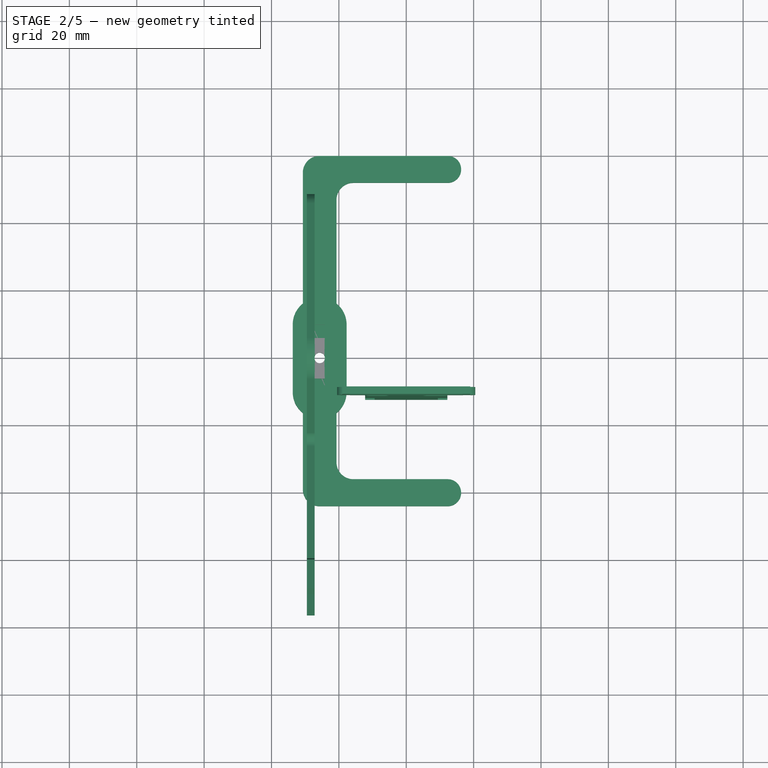
[diagram: stage 2 of 5 — top view after this stage's code; geometry added in this stage tinted green]
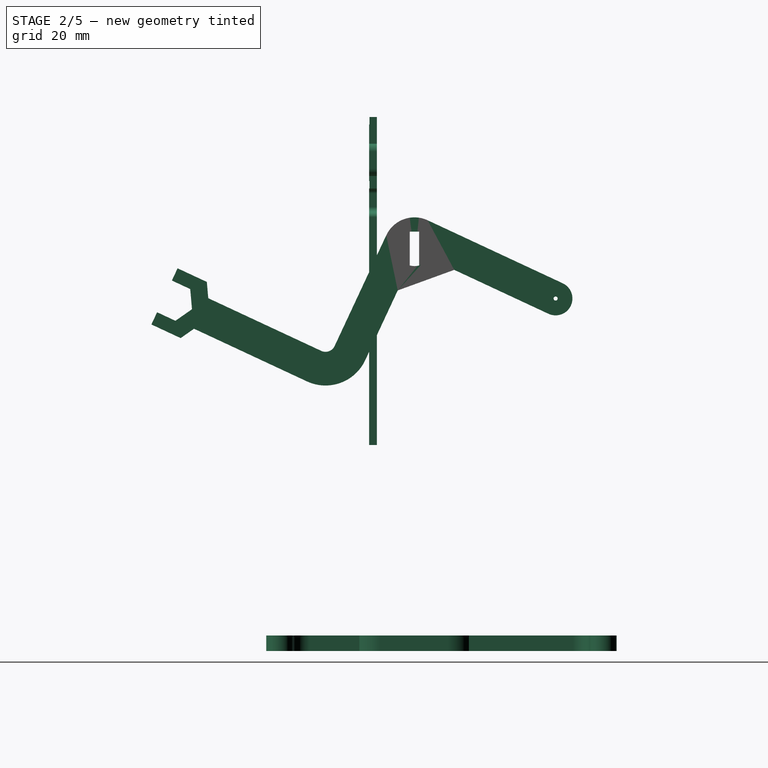
[diagram: stage 2 of 5 — right view after this stage's code; geometry added in this stage tinted green]
FEATURE [PartDesign::Body] Body005  label="spacer_right"
  Group = -> [Binder005,Sketch004,Pad005,Binder008]
  Origin = -> Origin006
  Tip = -> Pad005
FEATURE [PartDesign::SubShapeBinder] Binder009
  BindCopyOnChange = 0
  BindMode = 0
  ClaimChildren = false
  Context = -> Body007 [Binder009.]
  Fuse = false
  MakeFace = true
  OffsetFill = false
  OffsetIntersection = false
  OffsetJoinType = 0
  OffsetOpenResult = false
  PartialLoad = false
  Relative = true
  Support = -> [Body002[Pad004.]]
  _Version = 2
FEATURE [PartDesign::Plane] DatumPlane
  Length = 74.3266
  MapMode = 5
  Placement = pos=(1.72e-14,1.96e-13,-52) rot=(1,0,0;3.14159rad)
  ResizeMode = 0
  Support = -> [Binder009]
  Width = 119.627
FEATURE [Sketcher::SketchObject] Sketch006
  ExternalGeometry = -> [Binder009]
  FullyConstrained = true
  MapMode = 5
  Placement = pos=(1.72e-14,1.96e-13,-52) rot=(0,0,1;3.14159rad)
  Support = -> [DatumPlane]
  sketch-geometry (51):
    g0: LineSegment StartX=-12.3 StartY=40 StartZ=0 EndX=25.7 EndY=40 EndZ=0
    g1: LineSegment StartX=25.7 StartY=40 StartZ=0 EndX=25.7 EndY=-9.24e-14 EndZ=0
    g2: LineSegment StartX=25.7 StartY=-9.24e-14 StartZ=0 EndX=25.7 EndY=-56 EndZ=0
    g3: LineSegment StartX=25.7 StartY=-56 StartZ=0 EndX=-12.3 EndY=-56 EndZ=0
    g4: ArcOfCircle CenterX=-12.3 CenterY=40 CenterZ=0 NormalX=0 NormalY=0 NormalZ=1 AngleXU=0 Radius=4 StartAngle=1.5708 EndAngle=4.71239
    g5: ArcOfCircle CenterX=-12.3 CenterY=-56 CenterZ=0 NormalX=0 NormalY=0 NormalZ=1 AngleXU=0 Radius=4 StartAngle=1.5708 EndAngle=4.71239
    g6: LineSegment StartX=-12.3 StartY=44 StartZ=0 EndX=25.7 EndY=44 EndZ=0
    g7: LineSegment StartX=-12.3 StartY=36 StartZ=0 EndX=15.7 EndY=36 EndZ=0
    g8: LineSegment StartX=-12.3 StartY=-52 StartZ=0 EndX=15.7 EndY=-52 EndZ=0
    g9: LineSegment StartX=-12.3 StartY=-60 StartZ=0 EndX=25.7 EndY=-60 EndZ=0
    g10: ArcOfCircle CenterX=25.7 CenterY=10.1 CenterZ=0 NormalX=0 NormalY=0 NormalZ=1 AngleXU=0 Radius=8 StartAngle=-9e-16 EndAngle=0.895665
    g11: ArcOfCircle CenterX=25.7 CenterY=-9.9 CenterZ=0 NormalX=0 NormalY=0 NormalZ=1 AngleXU=0 Radius=8 StartAngle=3.14159 EndAngle=4.03726
    g12: LineSegment StartX=17.7 StartY=10.1 StartZ=0 EndX=17.7 EndY=-9.9 EndZ=0
    g13: LineSegment StartX=33.7 StartY=-9.9 StartZ=0 EndX=33.7 EndY=10.1 EndZ=0
    g14: LineSegment StartX=20.7 StartY=31 StartZ=0 EndX=20.7 EndY=16.345 EndZ=0
    g15: LineSegment StartX=30.7 StartY=16.345 StartZ=0 EndX=30.7 EndY=39 EndZ=0
    g16: ArcOfCircle CenterX=25.7 CenterY=39 CenterZ=0 NormalX=0 NormalY=0 NormalZ=1 AngleXU=0 Radius=5 StartAngle=0 EndAngle=1.5708
    g17: LineSegment StartX=20.7 StartY=-47 StartZ=0 EndX=20.7 EndY=-16.145 EndZ=0
    g18: LineSegment StartX=30.7 StartY=-16.145 StartZ=0 EndX=30.7 EndY=-55 EndZ=0
    g19: ArcOfCircle CenterX=25.7 CenterY=-55 CenterZ=0 NormalX=0 NormalY=0 NormalZ=1 AngleXU=0 Radius=5 StartAngle=4.71239 EndAngle=6.28319
    g20: ArcOfCircle CenterX=25.7 CenterY=-9.9 CenterZ=0 NormalX=0 NormalY=0 NormalZ=1 AngleXU=0 Radius=8 StartAngle=5.38752 EndAngle=6.28319
    g21: ArcOfCircle CenterX=25.7 CenterY=10.1 CenterZ=0 NormalX=0 NormalY=0 NormalZ=1 AngleXU=0 Radius=8 StartAngle=2.24593 EndAngle=3.14159
    g22: Circle CenterX=25.7 CenterY=-9.24e-14 CenterZ=0 NormalX=0 NormalY=0 NormalZ=1 AngleXU=0 Radius=1.55
    g23: LineSegment StartX=24.2 StartY=10.1 StartZ=0 EndX=27.2 EndY=10.1 EndZ=0
    g24: LineSegment StartX=27.2 StartY=10.1 StartZ=0 EndX=27.2 EndY=6.1 EndZ=0
    g25: LineSegment StartX=27.2 StartY=6.1 StartZ=0 EndX=24.2 EndY=6.1 EndZ=0
    g26: LineSegment StartX=24.2 StartY=6.1 StartZ=0 EndX=24.2 EndY=10.1 EndZ=0
    g27: LineSegment StartX=24.3 StartY=10 StartZ=0 EndX=24.3 EndY=10.1 EndZ=0
    g28: LineSegment StartX=24.3 StartY=10 StartZ=0 EndX=24.2 EndY=10 EndZ=0
    g29: LineSegment StartX=27.1 StartY=6 StartZ=0 EndX=27.2 EndY=6 EndZ=0
    g30: LineSegment StartX=27.1 StartY=6 StartZ=0 EndX=27.1 EndY=6.1 EndZ=0
    g31: LineSegment StartX=24.2 StartY=-5.9 StartZ=0 EndX=27.2 EndY=-5.9 EndZ=0
    g32: LineSegment StartX=27.2 StartY=-5.9 StartZ=0 EndX=27.2 EndY=-9.9 EndZ=0
    g33: LineSegment StartX=27.2 StartY=-9.9 StartZ=0 EndX=24.2 EndY=-9.9 EndZ=0
    g34: LineSegment StartX=24.2 StartY=-9.9 StartZ=0 EndX=24.2 EndY=-5.9 EndZ=0
    g35: LineSegment StartX=24.3 StartY=-6 StartZ=0 EndX=24.3 EndY=-5.9 EndZ=0
    g36: LineSegment StartX=24.3 StartY=-6 StartZ=0 EndX=24.2 EndY=-6 EndZ=0
    g37: LineSegment StartX=27.1 StartY=-10 StartZ=0 EndX=27.2 EndY=-10 EndZ=0
    g38: LineSegment StartX=27.1 StartY=-10 StartZ=0 EndX=27.1 EndY=-9.9 EndZ=0
    g39: ArcOfCircle CenterX=15.7 CenterY=-47 CenterZ=0 NormalX=0 NormalY=0 NormalZ=1 AngleXU=0 Radius=5 StartAngle=4.71239 EndAngle=6.28319
    g40: GeomPoint X=20.7 Y=-52 Z=0
    g41: ArcOfCircle CenterX=15.7 CenterY=31 CenterZ=0 NormalX=0 NormalY=0 NormalZ=1 AngleXU=0 Radius=5 StartAngle=0 EndAngle=1.5708
    g42: GeomPoint X=20.7 Y=36 Z=0
    g43: LineSegment StartX=24.2 StartY=10.1 StartZ=0 EndX=17.7 EndY=10.1 EndZ=0
    g44: LineSegment StartX=27.2 StartY=10.1 StartZ=0 EndX=33.7 EndY=10.1 EndZ=0
    g45: LineSegment StartX=24.2 StartY=-9.9 StartZ=0 EndX=17.7 EndY=-9.9 EndZ=0
    g46: LineSegment StartX=27.2 StartY=-9.9 StartZ=0 EndX=33.7 EndY=-9.9 EndZ=0
    g47: LineSegment StartX=24.3 StartY=1.25 StartZ=0 EndX=24.3 EndY=-1.25 EndZ=0
    g48: LineSegment StartX=27.1 StartY=1.25 StartZ=0 EndX=27.1 EndY=-1.25 EndZ=0
    g49: LineSegment StartX=24.3 StartY=-9.2e-14 StartZ=0 EndX=25.7 EndY=-9.24e-14 EndZ=0
    g50: LineSegment StartX=25.7 StartY=-9.24e-14 StartZ=0 EndX=27.1 EndY=-9.4e-14 EndZ=0
  constraints (133):
    c: Horizontal(g0)
    c: Coincident(g0,g1)
    c: Vertical(g1)
    c: Coincident(g1,g2)
    c: Vertical(g2)
    c: Coincident(g2,g3)
    c: Horizontal(g3)
    c: DistanceY(g2,g2) = 56
    c: Equal(g3,g0)
    c: DistanceX(g0,g0) = 38
    c: Coincident(g4,g0)
    c: Coincident(g5,g3)
    c: Equal(g5,g4)
    c: Diameter(g5) = 8
    c: Horizontal(g6)
    c: Horizontal(g7)
    c: Tangent(g4,g6) = 1.5708
    c: Tangent(g4,g7) = -1.5708
    c: Distance(g42,g1) = 5
    c: Horizontal(g8)
    c: Horizontal(g9)
    c: Tangent(g5,g8) = 1.5708
    c: Tangent(g5,g9) = -1.5708
    c: Equal(g6,g9)
    c: Tangent(g12,g11) = -1.5708
    c: Tangent(g13,g10) = -1.5708
    c: Equal(g10,g11)
    c: Diameter(g10) = 16
    c: Vertical(g14)
    c: PointOnObject(g6,g1)
    c: Vertical(g15)
    c: Tangent(g15,g16) = -1.5708
    c: Tangent(g16,g6) = 1.5708
    c: Distance(g15,g1) = 5
    c: Vertical(g17)
    c: Vertical(g18)
    c: Distance(g18,g2) = 5
    c: Tangent(g19,g9) = -1.5708
    c: Tangent(g19,g18) = 1.5708
    c: Equal(g11,g20)
    c: Coincident(g11,g17)
    c: Coincident(g20,g18)
    c: Coincident(g11,g20)
    c: Tangent(g20,g13) = -1.5708
    c: Equal(g10,g21)
    c: Coincident(g21,g14)
    c: Coincident(g10,g21)
    c: Coincident(g10,g15)
    c: Tangent(g21,g12) = -1.5708
    c: Coincident(g22,g1)
    c: Diameter(g22) = 3.1
    c: Coincident(g23,g24)
    c: Coincident(g24,g25)
    c: Coincident(g25,g26)
    c: Coincident(g26,g23)
    c: Coincident(g28,g27)
    c: Coincident(g30,g29)
    c: Equal(g28,g27)
    c: Equal(g27,g30)
    c: Equal(g30,g29)
    c: Coincident(g31,g32)
    c: Coincident(g32,g33)
    c: Coincident(g33,g34)
    c: Coincident(g34,g31)
    c: Coincident(g36,g35)
    c: Coincident(g38,g37)
    c: Coincident(g37,g-5)
    c: Coincident(g35,g-6)
    c: Coincident(g-4,g29)
    c: Coincident(g27,g-3)
    c: PointOnObject(g40,g8)
    c: PointOnObject(g40,g17)
    c: Tangent(g8,g39) = -1.5708
    c: Tangent(g17,g39) = -1.5708
    c: Radius(g39) = 5
    c: Symmetric(g11,g18,g2)
    c: PointOnObject(g42,g7)
    c: PointOnObject(g42,g14)
    c: Tangent(g7,g41) = 1.5708
    c: Tangent(g14,g41) = 1.5708
    c: Equal(g41,g39)
    c: DistanceY(g1,g1) = 40
    c: Distance(g27) = 0.1
    c: Perpendicular(g-3,g27)
    c: Perpendicular(g28,g27)
    c: PointOnObject(g28,g26)
    c: PointOnObject(g27,g23)
    c: Perpendicular(g28,g26)
    c: Perpendicular(g23,g27)
    c: Perpendicular(g-4,g30)
    c: Perpendicular(g29,g30)
    c: PointOnObject(g29,g24)
    c: PointOnObject(g30,g25)
    c: Perpendicular(g25,g30)
    c: Perpendicular(g29,g24)
    c: Perpendicular(g-5,g38)
    c: Perpendicular(g37,g38)
    c: Perpendicular(g35,g-6)
    c: Perpendicular(g36,g35)
    c: Equal(g35,g36)
    c: Equal(g36,g37)
    c: Equal(g37,g38)
    c: Equal(g38,g27)
    c: PointOnObject(g35,g31)
    c: PointOnObject(g36,g34)
    c: Perpendicular(g34,g36)
    c: Perpendicular(g31,g35)
    c: PointOnObject(g38,g33)
    c: PointOnObject(g37,g32)
    c: Perpendicular(g32,g37)
    c: Perpendicular(g33,g38)
    c: Coincident(g43,g23)
    c: Coincident(g43,g12)
    c: Coincident(g44,g23)
    c: Coincident(g44,g10)
    c: Perpendicular(g44,g24)
    c: Perpendicular(g43,g26)
    c: Coincident(g45,g33)
    c: Coincident(g45,g11)
    c: Coincident(g46,g32)
    c: Coincident(g46,g13)
    c: Perpendicular(g32,g46)
    c: Coincident(g47,g-8)
    c: Coincident(g47,g-7)
    c: Coincident(g48,g-8)
    c: Coincident(g48,g-7)
    c: Coincident(g50,g49)
    c: PointOnObject(g50,g48)
    c: Equal(g49,g50)
    c: Perpendicular(g49,g47)
    c: Perpendicular(g48,g50)
    c: Symmetric(g47,g47,g49)
    c: Coincident(g22,g49)
FEATURE [PartDesign::Pad] Pad006
  Direction = (1e-16,-3.8e-15,1)
  Length = 2.3
  Length2 = 10
  Placement = pos=(-6e-15,1.96e-13,-52) rot=(1,0,0;3.14159rad)
  Profile = -> Sketch006
  ReferenceAxis = -> Sketch006 [N_Axis]
  Type = 0
  expr: Length = Spreadsheet.ply_thin
FEATURE [PartDesign::Body] Body011  label="spacer_left"
  Group = -> [Clone003]
  Origin = -> Origin013
  Placement = pos=(0,0,0) rot=(0,1,0;3.14159rad)
  Tip = -> Clone003
FEATURE [PartDesign::FeatureBase] Clone007
  BaseFeature = -> Body007
FEATURE [PartDesign::SubShapeBinder] Binder010
  BindCopyOnChange = 0
  BindMode = 0
  ClaimChildren = false
  Context = -> Body017 [Binder010.]
  Fuse = false
  MakeFace = true
  OffsetFill = false
  OffsetIntersection = false
  OffsetJoinType = 0
  OffsetOpenResult = false
  PartialLoad = false
  Relative = true
  Support = -> [Part001]
  _Version = 2
FEATURE [PartDesign::SubShapeBinder] Binder011
  BindCopyOnChange = 0
  BindMode = 0
  ClaimChildren = false
  Context = -> Body017 [Binder011.]
  Fuse = false
  MakeFace = true
  OffsetFill = false
  OffsetIntersection = false
  OffsetJoinType = 0
  OffsetOpenResult = false
  PartialLoad = false
  Relative = true
  Support = -> [Body002]
  _Version = 2
FEATURE [PartDesign::SubShapeBinder] Binder012
  BindCopyOnChange = 0
  BindMode = 0
  ClaimChildren = false
  Context = -> Body017 [Binder012.]
  Fuse = false
  MakeFace = true
  OffsetFill = false
  OffsetIntersection = false
  OffsetJoinType = 0
  OffsetOpenResult = false
  PartialLoad = false
  Relative = true
  Support = -> [Body014]
  _Version = 2
FEATURE [Sketcher::SketchObject] Sketch007
  ExternalGeometry = -> [Binder010,Binder012,Binder011]
  FullyConstrained = true
  MapMode = 5
  Placement = pos=(-9.4,0,0) rot=(0.57735,-0.57735,-0.57735;2.0944rad)
  Support = -> [Binder010]
  expr: Constraints[2] = Spreadsheet.acrylic_thin
  expr: Constraints[77] = Spreadsheet.ply_thin
  expr: Constraints[80] = Spreadsheet.acrylic_thin
  expr: Constraints[84] = Spreadsheet.acrylic_thin * 2
  sketch-geometry (39):
    g0: Circle CenterX=0 CenterY=10.85 CenterZ=0 NormalX=0 NormalY=0 NormalZ=1 AngleXU=0 Radius=2.1
    g1: Circle CenterX=-8.9 CenterY=20.85 CenterZ=0 NormalX=0 NormalY=0 NormalZ=1 AngleXU=0 Radius=1.55
    g2: Circle CenterX=8.9 CenterY=20.85 CenterZ=0 NormalX=0 NormalY=0 NormalZ=1 AngleXU=0 Radius=1.55
    g3: Circle CenterX=0 CenterY=68 CenterZ=0 NormalX=0 NormalY=0 NormalZ=1 AngleXU=0 Radius=1.4
    g4: ArcOfCircle CenterX=-8.15 CenterY=73 CenterZ=0 NormalX=0 NormalY=0 NormalZ=1 AngleXU=0 Radius=3 StartAngle=1.5708 EndAngle=3.14159
    g5: ArcOfCircle CenterX=8.15 CenterY=73 CenterZ=0 NormalX=0 NormalY=0 NormalZ=1 AngleXU=0 Radius=3 StartAngle=-9e-16 EndAngle=1.5708
    g6: LineSegment StartX=11.15 StartY=73 StartZ=0 EndX=11.15 EndY=36.85 EndZ=0
    g7: ArcOfCircle CenterX=8.15 CenterY=9.85 CenterZ=0 NormalX=0 NormalY=0 NormalZ=1 AngleXU=0 Radius=3 StartAngle=4.71239 EndAngle=6.28319
    g8: LineSegment StartX=8.15 StartY=6.85 StartZ=0 EndX=-11.15 EndY=6.85 EndZ=0
    g9: LineSegment StartX=-11.15 StartY=39.85 StartZ=0 EndX=-11.15 EndY=73 EndZ=0
    g10: GeomPoint X=11.15 Y=6.85 Z=0
    g11: ArcOfCircle CenterX=-3.18082 CenterY=49.59 CenterZ=0 NormalX=0 NormalY=0 NormalZ=1 AngleXU=0 Radius=3 StartAngle=1.5708 EndAngle=3.14159
    g12: LineSegment StartX=-3.18082 StartY=52.59 StartZ=0 EndX=3.18082 EndY=52.59 EndZ=0
    g13: ArcOfCircle CenterX=3.18082 CenterY=49.59 CenterZ=0 NormalX=0 NormalY=0 NormalZ=1 AngleXU=0 Radius=3 StartAngle=-7.3053e-12 EndAngle=1.5708
    g14: ArcOfCircle CenterX=3.18082 CenterY=28.85 CenterZ=0 NormalX=0 NormalY=0 NormalZ=1 AngleXU=0 Radius=3 StartAngle=4.71239 EndAngle=6.28319
    g15: LineSegment StartX=3.18082 StartY=25.85 StartZ=0 EndX=-3.18082 EndY=25.85 EndZ=0
    g16: ArcOfCircle CenterX=-3.18082 CenterY=28.85 CenterZ=0 NormalX=0 NormalY=0 NormalZ=1 AngleXU=0 Radius=3 StartAngle=3.14159 EndAngle=4.71239
    g17: LineSegment StartX=-6.18082 StartY=28.85 StartZ=0 EndX=-6.18082 EndY=49.59 EndZ=0
    g18: LineSegment StartX=6.18082 StartY=49.59 StartZ=0 EndX=6.18082 EndY=28.85 EndZ=0
    g19: LineSegment StartX=-11.15 StartY=6.85 StartZ=0 EndX=-37.15 EndY=6.85 EndZ=0
    g20: ArcOfCircle CenterX=-37.15 CenterY=7.85 CenterZ=0 NormalX=0 NormalY=0 NormalZ=1 AngleXU=0 Radius=1 StartAngle=3.14159 EndAngle=4.71239
    g21: ArcOfCircle CenterX=-39.15 CenterY=7.85 CenterZ=0 NormalX=0 NormalY=0 NormalZ=1 AngleXU=0 Radius=1 StartAngle=-9e-16 EndAngle=3.14159
    g22: ArcOfCircle CenterX=-41.15 CenterY=7.85 CenterZ=0 NormalX=0 NormalY=0 NormalZ=1 AngleXU=0 Radius=1 StartAngle=3.14159 EndAngle=6.28319
    g23: LineSegment StartX=-42.15 StartY=7.85 StartZ=0 EndX=-42.15 EndY=35.85 EndZ=0
    g24: ArcOfCircle CenterX=-41.15 CenterY=35.85 CenterZ=0 NormalX=0 NormalY=0 NormalZ=1 AngleXU=0 Radius=1 StartAngle=3e-15 EndAngle=3.14159
    g25: ArcOfCircle CenterX=-39.15 CenterY=35.85 CenterZ=0 NormalX=0 NormalY=0 NormalZ=1 AngleXU=0 Radius=1 StartAngle=3.14159 EndAngle=6.28319
    g26: ArcOfCircle CenterX=-37.15 CenterY=35.85 CenterZ=0 NormalX=0 NormalY=0 NormalZ=1 AngleXU=0 Radius=1 StartAngle=1.5708 EndAngle=3.14159
    g27: LineSegment StartX=-37.15 StartY=36.85 StartZ=0 EndX=-14.15 EndY=36.85 EndZ=0
    g28: ArcOfCircle CenterX=-14.15 CenterY=39.85 CenterZ=0 NormalX=0 NormalY=0 NormalZ=1 AngleXU=0 Radius=3 StartAngle=4.71239 EndAngle=6.28319
    g29: LineSegment StartX=-8.15 StartY=76 StartZ=0 EndX=8.15 EndY=76 EndZ=0
    g30: ArcOfCircle CenterX=12.3 CenterY=13.85 CenterZ=0 NormalX=0 NormalY=0 NormalZ=1 AngleXU=0 Radius=1.15 StartAngle=8e-16 EndAngle=3.14159
    g31: LineSegment StartX=13.45 StartY=13.85 StartZ=0 EndX=13.45 EndY=8.25 EndZ=0
    g32: ArcOfCircle CenterX=14.85 CenterY=8.25 CenterZ=0 NormalX=0 NormalY=0 NormalZ=1 AngleXU=0 Radius=1.4 StartAngle=3.14159 EndAngle=6.28319
    g33: LineSegment StartX=16.25 StartY=8.25 StartZ=0 EndX=16.25 EndY=39.15 EndZ=0
    g34: ArcOfCircle CenterX=14.85 CenterY=39.15 CenterZ=0 NormalX=0 NormalY=0 NormalZ=1 AngleXU=0 Radius=1.4 StartAngle=-9e-16 EndAngle=3.14159
    g35: LineSegment StartX=13.45 StartY=39.15 StartZ=0 EndX=13.45 EndY=36.85 EndZ=0
    g36: LineSegment StartX=13.45 StartY=36.85 StartZ=0 EndX=11.15 EndY=36.85 EndZ=0
    g37: LineSegment StartX=8.15 StartY=6.85 StartZ=0 EndX=14.85 EndY=6.85 EndZ=0
    g38: LineSegment StartX=11.15 StartY=13.85 StartZ=0 EndX=11.15 EndY=9.85 EndZ=0
  constraints (99):
    c: Equal(g1,g2)
    c: Diameter(g1) = 3.1
    c: Diameter(g3) = 2.8
    c: Tangent(g5,g6) = 1.5708
    c: Tangent(g7,g8) = 1.5708
    c: Tangent(g9,g4) = 1.5708
    c: Horizontal(g8)
    c: Vertical(g6)
    c: Vertical(g9)
    c: Equal(g4,g5)
    c: Equal(g5,g7)
    c: PointOnObject(g10,g6)
    c: PointOnObject(g10,g8)
    c: Distance(g0,g8) = 4
    c: Tangent(g11,g12) = 1.5708
    c: Tangent(g12,g13) = 1.5708
    c: Tangent(g14,g15) = 1.5708
    c: Tangent(g15,g16) = 1.5708
    c: Tangent(g17,g11) = 1.5708
    c: Horizontal(g12)
    c: Horizontal(g15)
    c: Vertical(g17)
    c: Radius(g11) = 3
    c: Coincident(g0,g-5)
    c: Coincident(g1,g-3)
    c: Coincident(g2,g-4)
    c: PointOnObject(g38,g-7)
    c: Tangent(g16,g17) = 1.5708
    c: Vertical(g18)
    c: Tangent(g18,g14) = 1.5708
    c: Tangent(g18,g13) = 1.5708
    c: Equal(g11,g13)
    c: Equal(g13,g14)
    c: Equal(g14,g16)
    c: PointOnObject(g16,g-9)
    c: PointOnObject(g14,g-10)
    c: Horizontal(g15,g-9)
    c: PointOnObject(g19,g-6)
    c: Horizontal(g19)
    c: Tangent(g19,g20) = 1.5708
    c: Tangent(g20,g21) = 1.5708
    c: Tangent(g21,g22) = 1.5708
    c: Vertical(g23)
    c: Tangent(g23,g24) = 1.5708
    c: Tangent(g24,g25) = 1.5708
    c: Tangent(g25,g26) = 1.5708
    c: Horizontal(g27)
    c: Coincident(g8,g19)
    c: Tangent(g9,g28) = -1.5708
    c: Tangent(g27,g28) = -1.5708
    c: Tangent(g26,g27) = 1.5708
    c: Tangent(g22,g23) = 1.5708
    c: Equal(g20,g21)
    c: Equal(g20,g22)
    c: Equal(g20,g24)
    c: Equal(g20,g25)
    c: Equal(g20,g26)
    c: Radius(g20) = 1
    c: Angle(g20) = 1.5708
    c: Angle(g21) = 3.14159
    c: Angle(g26) = 1.5708
    c: Angle(g25) = 3.14159
    c: Radius(g4) = 3
    c: Equal(g28,g4)
    c: DistanceY(g8,g27) = 30
    c: DistanceX(g19,g19) = 26
    c: Vertical(g9,g8)
    c: Horizontal(g29)
    c: Tangent(g29,g4) = 1.5708
    c: Tangent(g29,g5) = 1.5708
    c: Vertical(g31)
    c: Tangent(g31,g32) = -1.5708
    c: Vertical(g33)
    c: Vertical(g35)
    c: Coincident(g35,g36)
    c: Horizontal(g36)
    c: Equal(g36,g35)
    c: DistanceX(g36,g36) = 2.3
    c: Tangent(g33,g34) = -1.5708
    c: Tangent(g34,g35) = -1.5708
    c: Diameter(g34) = 2.8
    c: Equal(g32,g34)
    c: Tangent(g32,g33) = -1.5708
    c: Tangent(g30,g31) = 1.5708
    c: DistanceY(g32,g30) = 5.6
    c: Tangent(g30,g6) = -1.5708
    c: Coincident(g37,g7)
    c: Horizontal(g37)
    c: Horizontal(g36,g27)
    c: Tangent(g37,g32) = -1.5708
    c: Coincident(g6,g36)
    c: Vertical(g38)
    c: Coincident(g38,g30)
    c: Tangent(g38,g7) = 1.5708
    c: Diameter(g0) = 4.2
    c: PointOnObject(g11,g-11)
    c: PointOnObject(g3,g-2)
    c: Distance(g3,g29) = 8
    c: DistanceY(g6,g5) = 39.15
FEATURE [PartDesign::Pad] Pad007
  Direction = (-1,0,0)
  Length = 2.8
  Length2 = 10
  Profile = -> Sketch007
  ReferenceAxis = -> Sketch007 [N_Axis]
  Type = 0
  expr: Length = Spreadsheet.acrylic_thin
FEATURE [Part::Feature] Part__Feature  label="batt_9V005_cp_sp"
  shape: bbox 13.59 x 26.29 x 1.575 mm, 21 faces (baked)
FEATURE [Part::Feature] Part__Feature003  label="batt_9V005_cp_sp003"
  shape: bbox 7.925 x 7.925 x 3.557 mm, 27 faces (baked)
FEATURE [Part::Feature] Part__Feature004  label="batt_9V005_cp_sp004"
  shape: bbox 9.35 x 9.35 x 4.186 mm, 125 faces (baked)
FEATURE [Part::Feature] Part__Feature005  label="batt_9V005_cp_sp005"
  shape: bbox 15.74 x 25.33 x 0.8457 mm, 1 faces, 0 solids (baked)
FEATURE [Part::Feature] Part__Feature006  label="batt_9V005_cp_sp006"
  shape: bbox 15.38 x 24.78 x 2e-07 mm, 1 faces, 0 solids (baked)
FEATURE [Part::Feature] Part__Feature007  label="batt_9V005_cp_sp007"
  shape: bbox 16.6 x 26 x 42.82 mm, 188 faces, 0 solids (baked)
FEATURE [Part::Feature] Part__Feature008  label="batt_9V005_cp_sp008"
  shape: bbox 7.6 x 8.776 x 3 mm, 28 faces, 0 solids (baked)
FEATURE [Part::Feature] Part__Feature009  label="batt_9V005_cp_sp009"
  shape: bbox 6.35 x 6.35 x 1.5 mm, 2 faces, 0 solids (baked)
FEATURE [Part::Feature] Part__Feature010  label="batt_9V005_cp_sp010"
  shape: bbox 8 x 8 x 3.2 mm, 10 faces, 0 solids (baked)
FEATURE [App::Part] batt_9V005_cp_sp  label="batt_9V005_cp_sp011"
  Group = -> [Part__Feature,Part__Feature003,Part__Feature004,Part__Feature005,Part__Feature006,Part__Feature007,Part__Feature008,Part__Feature009,Part__Feature010]
  Origin = -> Origin020
  Placement = pos=(0,25,40) rot=(0,0,1;0rad)
FEATURE [PartDesign::SubShapeBinder] Binder017
  BindCopyOnChange = 0
  BindMode = 0
  ClaimChildren = false
  Context = -> Body022 [Binder017.]
  Fuse = false
  MakeFace = true
  OffsetFill = false
  OffsetIntersection = false
  OffsetJoinType = 0
  OffsetOpenResult = false
  PartialLoad = false
  Relative = true
  Support = -> [Body017]
  _Version = 2
FEATURE [PartDesign::SubShapeBinder] Binder018
  BindCopyOnChange = 0
  BindMode = 0
  ClaimChildren = false
  Context = -> Body022 [Binder018.]
  Fuse = false
  MakeFace = true
  OffsetFill = false
  OffsetIntersection = false
  OffsetJoinType = 0
  OffsetOpenResult = false
  PartialLoad = false
  Relative = true
  Support = -> [Body018]
  _Version = 2
FEATURE [PartDesign::SubShapeBinder] Binder019
  BindCopyOnChange = 0
  BindMode = 0
  ClaimChildren = false
  Context = -> Body022 [Binder019.]
  Fuse = false
  MakeFace = true
  OffsetFill = false
  OffsetIntersection = false
  OffsetJoinType = 0
  OffsetOpenResult = false
  PartialLoad = false
  Relative = true
  Support = -> [Part001]
  _Version = 2
FEATURE [Sketcher::SketchObject] Sketch011
  ExternalGeometry = -> [Binder018,Binder017]
  FullyConstrained = true
  MapMode = 5
  Placement = pos=(0,-11.15,0) rot=(1,0,0;1.5708rad)
  Support = -> [Binder019]
  expr: Constraints[19] = Spreadsheet.acrylic_thin + 0.3
  sketch-geometry (35):
    g0: LineSegment StartX=-9.4 StartY=36.85 StartZ=0 EndX=-12.2 EndY=36.85 EndZ=0
    g1: LineSegment StartX=-12.2 StartY=36.85 StartZ=0 EndX=-12.2 EndY=74.5 EndZ=0
    g2: ArcOfCircle CenterX=-10.7 CenterY=74.5 CenterZ=0 NormalX=0 NormalY=0 NormalZ=1 AngleXU=0 Radius=1.5 StartAngle=1.5708 EndAngle=3.14159
    g3: LineSegment StartX=-5 StartY=77.5 StartZ=0 EndX=-5 EndY=81.5 EndZ=0
    g4: LineSegment StartX=-9.4 StartY=36.85 StartZ=0 EndX=-9.4 EndY=9.95 EndZ=0
    g5: LineSegment StartX=-9.4 StartY=9.95 StartZ=0 EndX=-12.2 EndY=9.95 EndZ=0
    g6: LineSegment StartX=-12.2 StartY=9.95 StartZ=0 EndX=-12.2 EndY=6.85 EndZ=0
    g7: LineSegment StartX=-12.2 StartY=6.85 StartZ=0 EndX=0 EndY=6.85 EndZ=0
    g8: LineSegment StartX=-10.7 StartY=76 StartZ=0 EndX=-6.5 EndY=76 EndZ=0
    g9: ArcOfCircle CenterX=-6.5 CenterY=77.5 CenterZ=0 NormalX=0 NormalY=0 NormalZ=1 AngleXU=0 Radius=1.5 StartAngle=4.71239 EndAngle=6.28319
    g10: LineSegment StartX=12.2 StartY=9.95 StartZ=0 EndX=9.4 EndY=9.95 EndZ=0
    g11: LineSegment StartX=9.4 StartY=9.95 StartZ=0 EndX=9.4 EndY=36.85 EndZ=0
    g12: LineSegment StartX=9.4 StartY=36.85 StartZ=0 EndX=12.2 EndY=36.85 EndZ=0
    g13: LineSegment StartX=12.2 StartY=36.85 StartZ=0 EndX=12.2 EndY=74.5 EndZ=0
    g14: ArcOfCircle CenterX=10.7 CenterY=74.5 CenterZ=0 NormalX=0 NormalY=0 NormalZ=1 AngleXU=0 Radius=1.5 StartAngle=1e-16 EndAngle=1.5708
    g15: LineSegment StartX=10.7 StartY=76 StartZ=0 EndX=6.5 EndY=76 EndZ=0
    g16: ArcOfCircle CenterX=6.5 CenterY=77.5 CenterZ=0 NormalX=0 NormalY=0 NormalZ=1 AngleXU=0 Radius=1.5 StartAngle=3.14159 EndAngle=4.71239
    g17: LineSegment StartX=5 StartY=77.5 StartZ=0 EndX=5 EndY=81.5 EndZ=0
    g18: LineSegment StartX=12.2 StartY=9.95 StartZ=0 EndX=12.2 EndY=6.85 EndZ=0
    g19: LineSegment StartX=12.2 StartY=6.85 StartZ=0 EndX=0 EndY=6.85 EndZ=0
    g20: LineSegment StartX=-19 StartY=104.25 StartZ=0 EndX=19 EndY=104.25 EndZ=0
    g21: LineSegment StartX=19 StartY=104.25 StartZ=0 EndX=19 EndY=96.2913 EndZ=0
    g22: LineSegment StartX=19 StartY=83 StartZ=0 EndX=6.5 EndY=83 EndZ=0
    g23: LineSegment StartX=-19 StartY=83 StartZ=0 EndX=-19 EndY=86.7087 EndZ=0
    g24: LineSegment StartX=-6.5 StartY=83 StartZ=0 EndX=-19 EndY=83 EndZ=0
    g25: ArcOfCircle CenterX=-6.5 CenterY=81.5 CenterZ=0 NormalX=0 NormalY=0 NormalZ=1 AngleXU=0 Radius=1.5 StartAngle=2.8e-15 EndAngle=1.5708
    g26: ArcOfCircle CenterX=6.5 CenterY=81.5 CenterZ=0 NormalX=0 NormalY=0 NormalZ=1 AngleXU=0 Radius=1.5 StartAngle=1.5708 EndAngle=3.14159
    g27: ArcOfCircle CenterX=-18 CenterY=94 CenterZ=0 NormalX=0 NormalY=0 NormalZ=1 AngleXU=0 Radius=2.5 StartAngle=1.98231 EndAngle=3.14159
    g28: ArcOfCircle CenterX=-18 CenterY=89 CenterZ=0 NormalX=0 NormalY=0 NormalZ=1 AngleXU=0 Radius=2.5 StartAngle=3.14159 EndAngle=4.30087
    g29: LineSegment StartX=-20.5 StartY=94 StartZ=0 EndX=-20.5 EndY=89 EndZ=0
    g30: ArcOfCircle CenterX=18 CenterY=94 CenterZ=0 NormalX=0 NormalY=0 NormalZ=1 AngleXU=0 Radius=2.5 StartAngle=2.3e-15 EndAngle=1.15928
    g31: ArcOfCircle CenterX=18 CenterY=89 CenterZ=0 NormalX=0 NormalY=0 NormalZ=1 AngleXU=0 Radius=2.5 StartAngle=5.12391 EndAngle=6.28319
    g32: LineSegment StartX=20.5 StartY=89 StartZ=0 EndX=20.5 EndY=94 EndZ=0
    g33: LineSegment StartX=-19 StartY=96.2913 StartZ=0 EndX=-19 EndY=104.25 EndZ=0
    g34: LineSegment StartX=19 StartY=86.7087 StartZ=0 EndX=19 EndY=83 EndZ=0
  constraints (93):
    c: Coincident(g0,g1)
    c: Vertical(g1)
    c: Tangent(g1,g2) = 1.5708
    c: Vertical(g3)
    c: Coincident(g0,g4)
    c: Vertical(g4)
    c: Coincident(g4,g5)
    c: Horizontal(g5)
    c: Coincident(g5,g6)
    c: Vertical(g6)
    c: Coincident(g6,g7)
    c: Horizontal(g7)
    c: Radius(g2) = 1.5
    c: Angle(g2) = 1.5708
    c: DistanceX(g-2,g3) = -5
    c: Tangent(g2,g8) = 1.5708
    c: Tangent(g8,g9) = -1.5708
    c: Tangent(g9,g3) = -1.5708
    c: Equal(g9,g2)
    c: DistanceY(g6,g6) = 3.1
    c: PointOnObject(g7,g-2)
    c: Horizontal(g10)
    c: Coincident(g10,g11)
    c: Vertical(g11)
    c: Coincident(g11,g12)
    c: Coincident(g12,g13)
    c: Vertical(g13)
    c: Tangent(g13,g14) = -1.5708
    c: Horizontal(g15)
    c: Tangent(g15,g16) = 1.5708
    c: Vertical(g17)
    c: Tangent(g14,g15) = -1.5708
    c: Equal(g14,g16)
    c: Equal(g16,g2)
    c: Tangent(g16,g17) = 1.5708
    c: Equal(g13,g1)
    c: Equal(g15,g8)
    c: Equal(g11,g4)
    c: Coincident(g10,g18)
    c: Vertical(g18)
    c: Coincident(g18,g19)
    c: Coincident(g19,g7)
    c: Coincident(g20,g21)
    c: Coincident(g34,g22)
    c: Coincident(g24,g23)
    c: Coincident(g33,g20)
    c: Horizontal(g20)
    c: Vertical(g21)
    c: Vertical(g23)
    c: DistanceY(g23,g33) = 21.25
    c: DistanceX(g24,g22) = 38
    c: Symmetric(g24,g34,g-2)
    c: Horizontal(g24)
    c: Horizontal(g22)
    c: Tangent(g24,g25) = -1.5708
    c: Tangent(g3,g25) = -1.5708
    c: Tangent(g22,g26) = -1.5708
    c: Tangent(g17,g26) = 1.5708
    c: Equal(g25,g26)
    c: Equal(g26,g9)
    c: Tangent(g27,g29) = -1.5708
    c: Tangent(g29,g28) = -1.5708
    c: Equal(g27,g28)
    c: Vertical(g29)
    c: Tangent(g31,g32) = -1.5708
    c: Tangent(g32,g30) = -1.5708
    c: Equal(g30,g31)
    c: Symmetric(g27,g30,g-2)
    c: Symmetric(g28,g31,g-2)
    c: DistanceY(g28,g27) = 5
    c: Equal(g27,g30)
    c: DistanceX(g23,g28) = 1
    c: Radius(g27) = 2.5
    c: DistanceY(g23,g28) = 6
    c: Coincident(g23,g28)
    c: Coincident(g33,g27)
    c: Coincident(g21,g30)
    c: Coincident(g34,g31)
    c: Vertical(g33)
    c: Vertical(g23,g27)
    c: Vertical(g21,g31)
    c: Vertical(g34)
    c: Equal(g17,g3)
    c: Horizontal(g0)
    c: Coincident(g12,g-3)
    c: Coincident(g11,g-3)
    c: Horizontal(g19)
    c: Coincident(g18,g-4)
    c: Equal(g7,g19)
    c: Equal(g5,g10)
    c: Equal(g0,g12)
    c: PointOnObject(g2,g-5)
    c: DistanceY(g3,g3) = 4
FEATURE [PartDesign::Pad] Pad011
  Direction = (0,-1,2e-16)
  Length = 2.3
  Length2 = 10
  Profile = -> Sketch011
  ReferenceAxis = -> Sketch011 [N_Axis]
  Type = 0
  expr: Length = Spreadsheet.ply_thin
FEATURE [PartDesign::Body] Body027  label="foam_battery_left"
  Group = -> [Clone011]
  Origin = -> Origin030
  Placement = pos=(17.8,0,0) rot=(0,0,1;0rad)
  Tip = -> Clone011
FEATURE [PartDesign::SubShapeBinder] Binder025
  BindCopyOnChange = 0
  BindMode = 0
  ClaimChildren = false
  Context = -> Body028 [Binder025.]
  Fuse = false
  MakeFace = true
  OffsetFill = false
  OffsetIntersection = false
  OffsetJoinType = 0
  OffsetOpenResult = false
  PartialLoad = false
  Relative = true
  Support = -> [Body007[Pad006.]]
  _Version = 2
FEATURE [Sketcher::SketchObject] Sketch015
  ExternalGeometry = -> [Binder025]
  FullyConstrained = true
  MapMode = 5
  Placement = pos=(-6.8e-15,1.966e-13,-52) rot=(1,0,0;3.14159rad)
  Support = -> [Binder025]
  sketch-geometry (21):
    g0: LineSegment StartX=-25.7 StartY=44 StartZ=0 EndX=12.3 EndY=44 EndZ=0
    g1: ArcOfCircle CenterX=12.3 CenterY=40 CenterZ=0 NormalX=0 NormalY=0 NormalZ=1 AngleXU=0 Radius=4 StartAngle=4.71239 EndAngle=7.85398
    g2: LineSegment StartX=12.3 StartY=36 StartZ=0 EndX=-15.7 EndY=36 EndZ=0
    g3: ArcOfCircle CenterX=-15.7 CenterY=31 CenterZ=0 NormalX=0 NormalY=0 NormalZ=1 AngleXU=0 Radius=5 StartAngle=1.5708 EndAngle=3.14159
    g4: LineSegment StartX=-20.7 StartY=31 StartZ=0 EndX=-20.7 EndY=16.345 EndZ=0
    g5: ArcOfCircle CenterX=-25.7 CenterY=10.1 CenterZ=0 NormalX=0 NormalY=0 NormalZ=1 AngleXU=0 Radius=8 StartAngle=1e-16 EndAngle=0.895665
    g6: LineSegment StartX=-17.7 StartY=10.1 StartZ=0 EndX=-17.7 EndY=-9.9 EndZ=0
    g7: ArcOfCircle CenterX=-25.7 CenterY=-9.9 CenterZ=0 NormalX=0 NormalY=0 NormalZ=1 AngleXU=0 Radius=8 StartAngle=5.38752 EndAngle=6.28319
    g8: LineSegment StartX=-20.7 StartY=-16.145 StartZ=0 EndX=-20.7 EndY=-47 EndZ=0
    g9: ArcOfCircle CenterX=-15.7 CenterY=-47 CenterZ=0 NormalX=0 NormalY=0 NormalZ=1 AngleXU=0 Radius=5 StartAngle=3.14159 EndAngle=4.71239
    g10: LineSegment StartX=-15.7 StartY=-52 StartZ=0 EndX=12.3 EndY=-52 EndZ=0
    g11: ArcOfCircle CenterX=12.3 CenterY=-56 CenterZ=0 NormalX=0 NormalY=0 NormalZ=1 AngleXU=0 Radius=4 StartAngle=4.71239 EndAngle=7.85398
    g12: LineSegment StartX=12.3 StartY=-60 StartZ=0 EndX=-25.7 EndY=-60 EndZ=0
    g13: ArcOfCircle CenterX=-25.7 CenterY=-55 CenterZ=0 NormalX=0 NormalY=0 NormalZ=1 AngleXU=0 Radius=5 StartAngle=3.14159 EndAngle=4.71239
    g14: LineSegment StartX=-30.7 StartY=-55 StartZ=0 EndX=-30.7 EndY=-16.145 EndZ=0
    g15: ArcOfCircle CenterX=-25.7 CenterY=-9.9 CenterZ=0 NormalX=0 NormalY=0 NormalZ=1 AngleXU=0 Radius=8 StartAngle=3.14159 EndAngle=4.03726
    g16: LineSegment StartX=-33.7 StartY=-9.9 StartZ=0 EndX=-33.7 EndY=10.1 EndZ=0
    g17: ArcOfCircle CenterX=-25.7 CenterY=10.1 CenterZ=0 NormalX=0 NormalY=0 NormalZ=1 AngleXU=0 Radius=8 StartAngle=2.24593 EndAngle=3.14159
    g18: LineSegment StartX=-30.7 StartY=16.345 StartZ=0 EndX=-30.7 EndY=39 EndZ=0
    g19: ArcOfCircle CenterX=-25.7 CenterY=39 CenterZ=0 NormalX=0 NormalY=0 NormalZ=1 AngleXU=0 Radius=5 StartAngle=1.5708 EndAngle=3.14159
    g20: Circle CenterX=-25.7 CenterY=0 CenterZ=0 NormalX=0 NormalY=0 NormalZ=1 AngleXU=0 Radius=4.5
  constraints (46):
    c: Horizontal(g0)
    c: Tangent(g0,g1) = 1.5708
    c: Horizontal(g2)
    c: Tangent(g2,g3) = -1.5708
    c: Vertical(g6)
    c: Tangent(g6,g7) = 1.5708
    c: Vertical(g8)
    c: Tangent(g8,g9) = -1.5708
    c: Horizontal(g10)
    c: Tangent(g10,g11) = 1.5708
    c: Tangent(g11,g12) = 1.5708
    c: Vertical(g14)
    c: Vertical(g16)
    c: Tangent(g16,g17) = 1.5708
    c: Vertical(g18)
    c: Tangent(g18,g19) = 1.5708
    c: Tangent(g19,g0) = 1.5708
    c: Tangent(g1,g2) = 1.5708
    c: Tangent(g3,g4) = -1.5708
    c: Tangent(g5,g6) = 1.5708
    c: Coincident(g17,g18)
    c: Coincident(g4,g5)
    c: Vertical(g4)
    c: Coincident(g7,g8)
    c: Tangent(g9,g10) = -1.5708
    c: Tangent(g13,g14) = 1.5708
    c: Coincident(g14,g15)
    c: Tangent(g15,g16) = 1.5708
    c: Coincident(g19,g-7)
    c: Coincident(g1,g-3)
    c: Coincident(g3,g-8)
    c: Coincident(g5,g-11)
    c: Coincident(g5,g17)
    c: Coincident(g7,g-13)
    c: Coincident(g15,g7)
    c: Coincident(g9,g-5)
    c: Coincident(g11,g-4)
    c: Coincident(g13,g-6)
    c: Equal(g1,g-3)
    c: Equal(g-11,g5)
    c: Equal(g-5,g9)
    c: Tangent(g12,g13) = 1.5708
    c: Equal(g13,g-6)
    c: Equal(g15,g-13)
    c: Coincident(g20,g-9)
    c: Diameter(g20) = 9
FEATURE [PartDesign::Pad] Pad015
  Direction = (-1e-16,3.7e-15,-1)
  Length = 2.3
  Length2 = 10
  Profile = -> Sketch015
  ReferenceAxis = -> Sketch015 [N_Axis]
  Type = 0
  expr: Length = Spreadsheet.ply_thin
FEATURE [PartDesign::Body] Body014  label="leg_left"
  Group = -> [Clone006]
  Origin = -> Origin016
  Placement = pos=(0,0,20) rot=(0,0,1;3.14159rad)
  Tip = -> Clone006
FEATURE [Part::Part2DObjectPython] Shape2DView007  label="leg_right_DXF"  # Draft 2D object (typed FeaturePython)
  AutoUpdate = true
  Base = -> Body002
  Clip = false
  FuseArch = false
  HiddenLines = false
  InPlace = true
  OnlySolids = false
  Projection = (-1,0,0)
  ProjectionMode = 0
  SegmentLength = 0.05
  Tessellation = false
  VisibleOnly = false
FEATURE [Part::Part2DObjectPython] Shape2DView011  label="leg_left_DXF"  # Draft 2D object (typed FeaturePython)
  AutoUpdate = true
  Base = -> Body014
  Clip = false
  FuseArch = false
  HiddenLines = false
  InPlace = true
  OnlySolids = false
  Projection = (1,0,0)
  ProjectionMode = 0
  SegmentLength = 0.05
  Tessellation = false
  VisibleOnly = false
FEATURE [Sketcher::SketchObject] Sketch020  label="Sketch_MuSo"
  AttachmentOffset = pos=(-8.7,-37,-84) rot=(0,0,1;-1.5708rad)
  FullyConstrained = false
  MapMode = 5
  Placement = pos=(12.7,-8.7,1) rot=(0,0,1;0rad)
  Support = -> [Pocket]
  sketch-geometry (369):
    g0: BSplineCurve PolesCount=2 KnotsCount=2 Degree=1 IsPeriodic=0
    g1: BSplineCurve PolesCount=2 KnotsCount=2 Degree=1 IsPeriodic=0
    g2: BSplineCurve PolesCount=4 KnotsCount=2 Degree=3 IsPeriodic=0
    g3: BSplineCurve PolesCount=2 KnotsCount=2 Degree=1 IsPeriodic=0
    g4: BSplineCurve PolesCount=4 KnotsCount=2 Degree=3 IsPeriodic=0
    g5: BSplineCurve PolesCount=2 KnotsCount=2 Degree=1 IsPeriodic=0
    g6: BSplineCurve PolesCount=2 KnotsCount=2 Degree=1 IsPeriodic=0
    g7: BSplineCurve PolesCount=2 KnotsCount=2 Degree=1 IsPeriodic=0
    g8: BSplineCurve PolesCount=4 KnotsCount=2 Degree=3 IsPeriodic=0
    g9: BSplineCurve PolesCount=2 KnotsCount=2 Degree=1 IsPeriodic=0
    g10: BSplineCurve PolesCount=4 KnotsCount=2 Degree=3 IsPeriodic=0
    g11: BSplineCurve PolesCount=2 KnotsCount=2 Degree=1 IsPeriodic=0
    g12: BSplineCurve PolesCount=2 KnotsCount=2 Degree=1 IsPeriodic=0
    g13: BSplineCurve PolesCount=2 KnotsCount=2 Degree=1 IsPeriodic=0
    g14: BSplineCurve PolesCount=2 KnotsCount=2 Degree=1 IsPeriodic=0
    g15: BSplineCurve PolesCount=2 KnotsCount=2 Degree=1 IsPeriodic=0
    g16: BSplineCurve PolesCount=4 KnotsCount=2 Degree=3 IsPeriodic=0
    g17: BSplineCurve PolesCount=2 KnotsCount=2 Degree=1 IsPeriodic=0
    g18: BSplineCurve PolesCount=4 KnotsCount=2 Degree=3 IsPeriodic=0
    g19: BSplineCurve PolesCount=2 KnotsCount=2 Degree=1 IsPeriodic=0
    g20: BSplineCurve PolesCount=2 KnotsCount=2 Degree=1 IsPeriodic=0
    g21: BSplineCurve PolesCount=2 KnotsCount=2 Degree=1 IsPeriodic=0
    g22: BSplineCurve PolesCount=2 KnotsCount=2 Degree=1 IsPeriodic=0
    g23: BSplineCurve PolesCount=2 KnotsCount=2 Degree=1 IsPeriodic=0
    g24: BSplineCurve PolesCount=2 KnotsCount=2 Degree=1 IsPeriodic=0
    g25: BSplineCurve PolesCount=4 KnotsCount=2 Degree=3 IsPeriodic=0
    g26: BSplineCurve PolesCount=2 KnotsCount=2 Degree=1 IsPeriodic=0
    g27: BSplineCurve PolesCount=4 KnotsCount=2 Degree=3 IsPeriodic=0
    g28: BSplineCurve PolesCount=4 KnotsCount=2 Degree=3 IsPeriodic=0
    g29: BSplineCurve PolesCount=2 KnotsCount=2 Degree=1 IsPeriodic=0
    g30: BSplineCurve PolesCount=2 KnotsCount=2 Degree=1 IsPeriodic=0
    g31: BSplineCurve PolesCount=2 KnotsCount=2 Degree=1 IsPeriodic=0
    g32: BSplineCurve PolesCount=4 KnotsCount=2 Degree=3 IsPeriodic=0
    g33: BSplineCurve PolesCount=4 KnotsCount=2 Degree=3 IsPeriodic=0
    g34: BSplineCurve PolesCount=2 KnotsCount=2 Degree=1 IsPeriodic=0
    g35: BSplineCurve PolesCount=2 KnotsCount=2 Degree=1 IsPeriodic=0
    g36: BSplineCurve PolesCount=4 KnotsCount=2 Degree=3 IsPeriodic=0
    g37: BSplineCurve PolesCount=4 KnotsCount=2 Degree=3 IsPeriodic=0
    g38: BSplineCurve PolesCount=4 KnotsCount=2 Degree=3 IsPeriodic=0
    g39: BSplineCurve PolesCount=4 KnotsCount=2 Degree=3 IsPeriodic=0
    g40: BSplineCurve PolesCount=2 KnotsCount=2 Degree=1 IsPeriodic=0
    g41: BSplineCurve PolesCount=4 KnotsCount=2 Degree=3 IsPeriodic=0
    g42: BSplineCurve PolesCount=4 KnotsCount=2 Degree=3 IsPeriodic=0
    g43: BSplineCurve PolesCount=4 KnotsCount=2 Degree=3 IsPeriodic=0
    g44: BSplineCurve PolesCount=4 KnotsCount=2 Degree=3 IsPeriodic=0
    g45: BSplineCurve PolesCount=4 KnotsCount=2 Degree=3 IsPeriodic=0
    g46: BSplineCurve PolesCount=2 KnotsCount=2 Degree=1 IsPeriodic=0
    g47: BSplineCurve PolesCount=4 KnotsCount=2 Degree=3 IsPeriodic=0
    g48: BSplineCurve PolesCount=4 KnotsCount=2 Degree=3 IsPeriodic=0
    g49: BSplineCurve PolesCount=4 KnotsCount=2 Degree=3 IsPeriodic=0
    g50: BSplineCurve PolesCount=4 KnotsCount=2 Degree=3 IsPeriodic=0
    g51: BSplineCurve PolesCount=4 KnotsCount=2 Degree=3 IsPeriodic=0
    g52: BSplineCurve PolesCount=4 KnotsCount=2 Degree=3 IsPeriodic=0
    g53: BSplineCurve PolesCount=4 KnotsCount=2 Degree=3 IsPeriodic=0
    g54: BSplineCurve PolesCount=4 KnotsCount=2 Degree=3 IsPeriodic=0
    g55: BSplineCurve PolesCount=4 KnotsCount=2 Degree=3 IsPeriodic=0
    g56: BSplineCurve PolesCount=2 KnotsCount=2 Degree=1 IsPeriodic=0
    g57: BSplineCurve PolesCount=2 KnotsCount=2 Degree=1 IsPeriodic=0
    g58: BSplineCurve PolesCount=2 KnotsCount=2 Degree=1 IsPeriodic=0
    g59: BSplineCurve PolesCount=2 KnotsCount=2 Degree=1 IsPeriodic=0
    g60: BSplineCurve PolesCount=2 KnotsCount=2 Degree=1 IsPeriodic=0
    g61: BSplineCurve PolesCount=2 KnotsCount=2 Degree=1 IsPeriodic=0
    g62: BSplineCurve PolesCount=2 KnotsCount=2 Degree=1 IsPeriodic=0
    g63: BSplineCurve PolesCount=2 KnotsCount=2 Degree=1 IsPeriodic=0
    g64: BSplineCurve PolesCount=2 KnotsCount=2 Degree=1 IsPeriodic=0
    g65: BSplineCurve PolesCount=2 KnotsCount=2 Degree=1 IsPeriodic=0
    g66: BSplineCurve PolesCount=4 KnotsCount=2 Degree=3 IsPeriodic=0
    g67: BSplineCurve PolesCount=2 KnotsCount=2 Degree=1 IsPeriodic=0
    g68: BSplineCurve PolesCount=4 KnotsCount=2 Degree=3 IsPeriodic=0
    g69: BSplineCurve PolesCount=2 KnotsCount=2 Degree=1 IsPeriodic=0
    g70: BSplineCurve PolesCount=2 KnotsCount=2 Degree=1 IsPeriodic=0
    g71: BSplineCurve PolesCount=2 KnotsCount=2 Degree=1 IsPeriodic=0
    g72: BSplineCurve PolesCount=4 KnotsCount=2 Degree=3 IsPeriodic=0
    g73: BSplineCurve PolesCount=2 KnotsCount=2 Degree=1 IsPeriodic=0
    g74: BSplineCurve PolesCount=4 KnotsCount=2 Degree=3 IsPeriodic=0
    g75: BSplineCurve PolesCount=2 KnotsCount=2 Degree=1 IsPeriodic=0
    g76: BSplineCurve PolesCount=2 KnotsCount=2 Degree=1 IsPeriodic=0
    g77: BSplineCurve PolesCount=2 KnotsCount=2 Degree=1 IsPeriodic=0
    g78: BSplineCurve PolesCount=2 KnotsCount=2 Degree=1 IsPeriodic=0
    g79: BSplineCurve PolesCount=2 KnotsCount=2 Degree=1 IsPeriodic=0
    g80: BSplineCurve PolesCount=4 KnotsCount=2 Degree=3 IsPeriodic=0
    g81: BSplineCurve PolesCount=2 KnotsCount=2 Degree=1 IsPeriodic=0
    g82: BSplineCurve PolesCount=4 KnotsCount=2 Degree=3 IsPeriodic=0
    g83: BSplineCurve PolesCount=2 KnotsCount=2 Degree=1 IsPeriodic=0
    g84: BSplineCurve PolesCount=2 KnotsCount=2 Degree=1 IsPeriodic=0
    g85: BSplineCurve PolesCount=2 KnotsCount=2 Degree=1 IsPeriodic=0
    g86: BSplineCurve PolesCount=2 KnotsCount=2 Degree=1 IsPeriodic=0
    g87: BSplineCurve PolesCount=4 KnotsCount=2 Degree=3 IsPeriodic=0
    g88: BSplineCurve PolesCount=4 KnotsCount=2 Degree=3 IsPeriodic=0
    g89: BSplineCurve PolesCount=2 KnotsCount=2 Degree=1 IsPeriodic=0
    g90: BSplineCurve PolesCount=4 KnotsCount=2 Degree=3 IsPeriodic=0
    g91: BSplineCurve PolesCount=4 KnotsCount=2 Degree=3 IsPeriodic=0
    g92: BSplineCurve PolesCount=2 KnotsCount=2 Degree=1 IsPeriodic=0
    g93: BSplineCurve PolesCount=2 KnotsCount=2 Degree=1 IsPeriodic=0
    g94: BSplineCurve PolesCount=2 KnotsCount=2 Degree=1 IsPeriodic=0
    g95: BSplineCurve PolesCount=4 KnotsCount=2 Degree=3 IsPeriodic=0
    g96: BSplineCurve PolesCount=4 KnotsCount=2 Degree=3 IsPeriodic=0
    g97: BSplineCurve PolesCount=2 KnotsCount=2 Degree=1 IsPeriodic=0
    g98: BSplineCurve PolesCount=2 KnotsCount=2 Degree=1 IsPeriodic=0
    g99: BSplineCurve PolesCount=2 KnotsCount=2 Degree=1 IsPeriodic=0
    g100: BSplineCurve PolesCount=4 KnotsCount=2 Degree=3 IsPeriodic=0
    g101: BSplineCurve PolesCount=4 KnotsCount=2 Degree=3 IsPeriodic=0
    g102: BSplineCurve PolesCount=2 KnotsCount=2 Degree=1 IsPeriodic=0
    g103: BSplineCurve PolesCount=4 KnotsCount=2 Degree=3 IsPeriodic=0
    g104: BSplineCurve PolesCount=4 KnotsCount=2 Degree=3 IsPeriodic=0
    g105: BSplineCurve PolesCount=4 KnotsCount=2 Degree=3 IsPeriodic=0
    g106: BSplineCurve PolesCount=4 KnotsCount=2 Degree=3 IsPeriodic=0
    g107: BSplineCurve PolesCount=4 KnotsCount=2 Degree=3 IsPeriodic=0
    g108: BSplineCurve PolesCount=2 KnotsCount=2 Degree=1 IsPeriodic=0
    g109: BSplineCurve PolesCount=4 KnotsCount=2 Degree=3 IsPeriodic=0
    g110: BSplineCurve PolesCount=4 KnotsCount=2 Degree=3 IsPeriodic=0
    g111: BSplineCurve PolesCount=4 KnotsCount=2 Degree=3 IsPeriodic=0
    g112: BSplineCurve PolesCount=4 KnotsCount=2 Degree=3 IsPeriodic=0
    g113: BSplineCurve PolesCount=4 KnotsCount=2 Degree=3 IsPeriodic=0
    g114: BSplineCurve PolesCount=4 KnotsCount=2 Degree=3 IsPeriodic=0
    g115: BSplineCurve PolesCount=2 KnotsCount=2 Degree=1 IsPeriodic=0
    g116: BSplineCurve PolesCount=4 KnotsCount=2 Degree=3 IsPeriodic=0
    g117: BSplineCurve PolesCount=2 KnotsCount=2 Degree=1 IsPeriodic=0
    g118: BSplineCurve PolesCount=4 KnotsCount=2 Degree=3 IsPeriodic=0
    g119: BSplineCurve PolesCount=4 KnotsCount=2 Degree=3 IsPeriodic=0
    g120: BSplineCurve PolesCount=4 KnotsCount=2 Degree=3 IsPeriodic=0
    g121: BSplineCurve PolesCount=4 KnotsCount=2 Degree=3 IsPeriodic=0
    g122: BSplineCurve PolesCount=4 KnotsCount=2 Degree=3 IsPeriodic=0
    g123: BSplineCurve PolesCount=2 KnotsCount=2 Degree=1 IsPeriodic=0
    g124: BSplineCurve PolesCount=4 KnotsCount=2 Degree=3 IsPeriodic=0
    g125: BSplineCurve PolesCount=4 KnotsCount=2 Degree=3 IsPeriodic=0
    g126: BSplineCurve PolesCount=2 KnotsCount=2 Degree=1 IsPeriodic=0
    g127: BSplineCurve PolesCount=4 KnotsCount=2 Degree=3 IsPeriodic=0
    g128: BSplineCurve PolesCount=4 KnotsCount=2 Degree=3 IsPeriodic=0
    g129: BSplineCurve PolesCount=4 KnotsCount=2 Degree=3 IsPeriodic=0
    g130: BSplineCurve PolesCount=4 KnotsCount=2 Degree=3 IsPeriodic=0
    g131: BSplineCurve PolesCount=4 KnotsCount=2 Degree=3 IsPeriodic=0
    g132: BSplineCurve PolesCount=2 KnotsCount=2 Degree=1 IsPeriodic=0
    g133: BSplineCurve PolesCount=4 KnotsCount=2 Degree=3 IsPeriodic=0
    g134: BSplineCurve PolesCount=4 KnotsCount=2 Degree=3 IsPeriodic=0
    g135: BSplineCurve PolesCount=2 KnotsCount=2 Degree=1 IsPeriodic=0
    g136: BSplineCurve PolesCount=2 KnotsCount=2 Degree=1 IsPeriodic=0
    g137: BSplineCurve PolesCount=2 KnotsCount=2 Degree=1 IsPeriodic=0
    g138: BSplineCurve PolesCount=4 KnotsCount=2 Degree=3 IsPeriodic=0
    g139: BSplineCurve PolesCount=4 KnotsCount=2 Degree=3 IsPeriodic=0
    g140: BSplineCurve PolesCount=2 KnotsCount=2 Degree=1 IsPeriodic=0
    g141: BSplineCurve PolesCount=2 KnotsCount=2 Degree=1 IsPeriodic=0
    g142: BSplineCurve PolesCount=2 KnotsCount=2 Degree=1 IsPeriodic=0
    g143: BSplineCurve PolesCount=4 KnotsCount=2 Degree=3 IsPeriodic=0
    g144: BSplineCurve PolesCount=4 KnotsCount=2 Degree=3 IsPeriodic=0
    g145: BSplineCurve PolesCount=2 KnotsCount=2 Degree=1 IsPeriodic=0
    g146: BSplineCurve PolesCount=4 KnotsCount=2 Degree=3 IsPeriodic=0
    g147: BSplineCurve PolesCount=4 KnotsCount=2 Degree=3 IsPeriodic=0
    g148: BSplineCurve PolesCount=2 KnotsCount=2 Degree=1 IsPeriodic=0
    g149: BSplineCurve PolesCount=4 KnotsCount=2 Degree=3 IsPeriodic=0
    g150: BSplineCurve PolesCount=4 KnotsCount=2 Degree=3 IsPeriodic=0
    g151: BSplineCurve PolesCount=2 KnotsCount=2 Degree=1 IsPeriodic=0
    g152: BSplineCurve PolesCount=2 KnotsCount=2 Degree=1 IsPeriodic=0
    g153: BSplineCurve PolesCount=2 KnotsCount=2 Degree=1 IsPeriodic=0
    g154: BSplineCurve PolesCount=4 KnotsCount=2 Degree=3 IsPeriodic=0
    g155: BSplineCurve PolesCount=4 KnotsCount=2 Degree=3 IsPeriodic=0
    g156: BSplineCurve PolesCount=2 KnotsCount=2 Degree=1 IsPeriodic=0
    g157: BSplineCurve PolesCount=2 KnotsCount=2 Degree=1 IsPeriodic=0
    g158: BSplineCurve PolesCount=2 KnotsCount=2 Degree=1 IsPeriodic=0
    g159: BSplineCurve PolesCount=2 KnotsCount=2 Degree=1 IsPeriodic=0
    g160: BSplineCurve PolesCount=4 KnotsCount=2 Degree=3 IsPeriodic=0
    g161: BSplineCurve PolesCount=2 KnotsCount=2 Degree=1 IsPeriodic=0
    g162: BSplineCurve PolesCount=4 KnotsCount=2 Degree=3 IsPeriodic=0
    g163: BSplineCurve PolesCount=4 KnotsCount=2 Degree=3 IsPeriodic=0
    g164: BSplineCurve PolesCount=4 KnotsCount=2 Degree=3 IsPeriodic=0
    g165: BSplineCurve PolesCount=4 KnotsCount=2 Degree=3 IsPeriodic=0
    g166: BSplineCurve PolesCount=2 KnotsCount=2 Degree=1 IsPeriodic=0
    g167: BSplineCurve PolesCount=4 KnotsCount=2 Degree=3 IsPeriodic=0
    g168: BSplineCurve PolesCount=4 KnotsCount=2 Degree=3 IsPeriodic=0
    g169: BSplineCurve PolesCount=2 KnotsCount=2 Degree=1 IsPeriodic=0
    g170: BSplineCurve PolesCount=4 KnotsCount=2 Degree=3 IsPeriodic=0
    g171: BSplineCurve PolesCount=4 KnotsCount=2 Degree=3 IsPeriodic=0
    g172: BSplineCurve PolesCount=4 KnotsCount=2 Degree=3 IsPeriodic=0
    g173: BSplineCurve PolesCount=4 KnotsCount=2 Degree=3 IsPeriodic=0
    g174: BSplineCurve PolesCount=4 KnotsCount=2 Degree=3 IsPeriodic=0
    g175: BSplineCurve PolesCount=4 KnotsCount=2 Degree=3 IsPeriodic=0
    g176: BSplineCurve PolesCount=4 KnotsCount=2 Degree=3 IsPeriodic=0
    g177: BSplineCurve PolesCount=4 KnotsCount=2 Degree=3 IsPeriodic=0
    g178: BSplineCurve PolesCount=2 KnotsCount=2 Degree=1 IsPeriodic=0
    g179: BSplineCurve PolesCount=2 KnotsCount=2 Degree=1 IsPeriodic=0
    g180: BSplineCurve PolesCount=2 KnotsCount=2 Degree=1 IsPeriodic=0
    g181: BSplineCurve PolesCount=2 KnotsCount=2 Degree=1 IsPeriodic=0
    g182: BSplineCurve PolesCount=2 KnotsCount=2 Degree=1 IsPeriodic=0
    g183: BSplineCurve PolesCount=2 KnotsCount=2 Degree=1 IsPeriodic=0
    g184: BSplineCurve PolesCount=2 KnotsCount=2 Degree=1 IsPeriodic=0
    g185: BSplineCurve PolesCount=2 KnotsCount=2 Degree=1 IsPeriodic=0
    g186: BSplineCurve PolesCount=2 KnotsCount=2 Degree=1 IsPeriodic=0
    g187: BSplineCurve PolesCount=2 KnotsCount=2 Degree=1 IsPeriodic=0
    g188: BSplineCurve PolesCount=4 KnotsCount=2 Degree=3 IsPeriodic=0
    g189: BSplineCurve PolesCount=4 KnotsCount=2 Degree=3 IsPeriodic=0
    g190: BSplineCurve PolesCount=2 KnotsCount=2 Degree=1 IsPeriodic=0
    g191: BSplineCurve PolesCount=4 KnotsCount=2 Degree=3 IsPeriodic=0
    g192: BSplineCurve PolesCount=4 KnotsCount=2 Degree=3 IsPeriodic=0
    g193: BSplineCurve PolesCount=2 KnotsCount=2 Degree=1 IsPeriodic=0
    g194: BSplineCurve PolesCount=4 KnotsCount=2 Degree=3 IsPeriodic=0
    g195: BSplineCurve PolesCount=4 KnotsCount=2 Degree=3 IsPeriodic=0
    g196: BSplineCurve PolesCount=4 KnotsCount=2 Degree=3 IsPeriodic=0
    g197: BSplineCurve PolesCount=4 KnotsCount=2 Degree=3 IsPeriodic=0
    g198: BSplineCurve PolesCount=2 KnotsCount=2 Degree=1 IsPeriodic=0
    g199: BSplineCurve PolesCount=4 KnotsCount=2 Degree=3 IsPeriodic=0
    g200: BSplineCurve PolesCount=4 KnotsCount=2 Degree=3 IsPeriodic=0
    g201: BSplineCurve PolesCount=4 KnotsCount=2 Degree=3 IsPeriodic=0
    g202: BSplineCurve PolesCount=4 KnotsCount=2 Degree=3 IsPeriodic=0
    g203: BSplineCurve PolesCount=4 KnotsCount=2 Degree=3 IsPeriodic=0
    g204: BSplineCurve PolesCount=2 KnotsCount=2 Degree=1 IsPeriodic=0
    g205: BSplineCurve PolesCount=4 KnotsCount=2 Degree=3 IsPeriodic=0
    g206: BSplineCurve PolesCount=4 KnotsCount=2 Degree=3 IsPeriodic=0
    g207: BSplineCurve PolesCount=4 KnotsCount=2 Degree=3 IsPeriodic=0
    g208: BSplineCurve PolesCount=4 KnotsCount=2 Degree=3 IsPeriodic=0
    g209: BSplineCurve PolesCount=4 KnotsCount=2 Degree=3 IsPeriodic=0
    g210: BSplineCurve PolesCount=4 KnotsCount=2 Degree=3 IsPeriodic=0
    g211: BSplineCurve PolesCount=4 KnotsCount=2 Degree=3 IsPeriodic=0
    g212: BSplineCurve PolesCount=4 KnotsCount=2 Degree=3 IsPeriodic=0
    g213: BSplineCurve PolesCount=4 KnotsCount=2 Degree=3 IsPeriodic=0
    g214: BSplineCurve PolesCount=2 KnotsCount=2 Degree=1 IsPeriodic=0
    g215: BSplineCurve PolesCount=2 KnotsCount=2 Degree=1 IsPeriodic=0
    g216: BSplineCurve PolesCount=2 KnotsCount=2 Degree=1 IsPeriodic=0
    g217: BSplineCurve PolesCount=2 KnotsCount=2 Degree=1 IsPeriodic=0
    g218: BSplineCurve PolesCount=4 KnotsCount=2 Degree=3 IsPeriodic=0
    g219: BSplineCurve PolesCount=4 KnotsCount=2 Degree=3 IsPeriodic=0
    g220: BSplineCurve PolesCount=2 KnotsCount=2 Degree=1 IsPeriodic=0
    g221: BSplineCurve PolesCount=4 KnotsCount=2 Degree=3 IsPeriodic=0
    g222: BSplineCurve PolesCount=4 KnotsCount=2 Degree=3 IsPeriodic=0
    g223: BSplineCurve PolesCount=2 KnotsCount=2 Degree=1 IsPeriodic=0
    g224: BSplineCurve PolesCount=2 KnotsCount=2 Degree=1 IsPeriodic=0
    g225: BSplineCurve PolesCount=2 KnotsCount=2 Degree=1 IsPeriodic=0
    g226: BSplineCurve PolesCount=4 KnotsCount=2 Degree=3 IsPeriodic=0
    g227: BSplineCurve PolesCount=4 KnotsCount=2 Degree=3 IsPeriodic=0
    g228: BSplineCurve PolesCount=2 KnotsCount=2 Degree=1 IsPeriodic=0
    g229: BSplineCurve PolesCount=2 KnotsCount=2 Degree=1 IsPeriodic=0
    g230: BSplineCurve PolesCount=2 KnotsCount=2 Degree=1 IsPeriodic=0
    g231: BSplineCurve PolesCount=4 KnotsCount=2 Degree=3 IsPeriodic=0
    g232: BSplineCurve PolesCount=4 KnotsCount=2 Degree=3 IsPeriodic=0
    g233: BSplineCurve PolesCount=2 KnotsCount=2 Degree=1 IsPeriodic=0
    g234: BSplineCurve PolesCount=4 KnotsCount=2 Degree=3 IsPeriodic=0
    g235: BSplineCurve PolesCount=4 KnotsCount=2 Degree=3 IsPeriodic=0
    g236: BSplineCurve PolesCount=2 KnotsCount=2 Degree=1 IsPeriodic=0
    g237: BSplineCurve PolesCount=2 KnotsCount=2 Degree=1 IsPeriodic=0
    g238: BSplineCurve PolesCount=2 KnotsCount=2 Degree=1 IsPeriodic=0
    g239: BSplineCurve PolesCount=2 KnotsCount=2 Degree=1 IsPeriodic=0
    g240: BSplineCurve PolesCount=2 KnotsCount=2 Degree=1 IsPeriodic=0
    g241: BSplineCurve PolesCount=2 KnotsCount=2 Degree=1 IsPeriodic=0
    g242: BSplineCurve PolesCount=2 KnotsCount=2 Degree=1 IsPeriodic=0
    g243: BSplineCurve PolesCount=2 KnotsCount=2 Degree=1 IsPeriodic=0
    g244: BSplineCurve PolesCount=2 KnotsCount=2 Degree=1 IsPeriodic=0
    g245: BSplineCurve PolesCount=2 KnotsCount=2 Degree=1 IsPeriodic=0
    g246: BSplineCurve PolesCount=2 KnotsCount=2 Degree=1 IsPeriodic=0
    g247: BSplineCurve PolesCount=4 KnotsCount=2 Degree=3 IsPeriodic=0
    g248: BSplineCurve PolesCount=4 KnotsCount=2 Degree=3 IsPeriodic=0
    g249: BSplineCurve PolesCount=2 KnotsCount=2 Degree=1 IsPeriodic=0
    g250: BSplineCurve PolesCount=4 KnotsCount=2 Degree=3 IsPeriodic=0
    g251: BSplineCurve PolesCount=4 KnotsCount=2 Degree=3 IsPeriodic=0
    g252: BSplineCurve PolesCount=4 KnotsCount=2 Degree=3 IsPeriodic=0
    g253: BSplineCurve PolesCount=4 KnotsCount=2 Degree=3 IsPeriodic=0
    g254: BSplineCurve PolesCount=2 KnotsCount=2 Degree=1 IsPeriodic=0
    g255: BSplineCurve PolesCount=2 KnotsCount=2 Degree=1 IsPeriodic=0
    g256: BSplineCurve PolesCount=2 KnotsCount=2 Degree=1 IsPeriodic=0
    g257: BSplineCurve PolesCount=2 KnotsCount=2 Degree=1 IsPeriodic=0
    g258: BSplineCurve PolesCount=4 KnotsCount=2 Degree=3 IsPeriodic=0
    g259: BSplineCurve PolesCount=4 KnotsCount=2 Degree=3 IsPeriodic=0
    g260: BSplineCurve PolesCount=4 KnotsCount=2 Degree=3 IsPeriodic=0
    g261: BSplineCurve PolesCount=4 KnotsCount=2 Degree=3 IsPeriodic=0
    g262: BSplineCurve PolesCount=4 KnotsCount=2 Degree=3 IsPeriodic=0
    g263: BSplineCurve PolesCount=4 KnotsCount=2 Degree=3 IsPeriodic=0
    g264: BSplineCurve PolesCount=4 KnotsCount=2 Degree=3 IsPeriodic=0
    g265: BSplineCurve PolesCount=4 KnotsCount=2 Degree=3 IsPeriodic=0
    g266: BSplineCurve PolesCount=4 KnotsCount=2 Degree=3 IsPeriodic=0
    g267: BSplineCurve PolesCount=4 KnotsCount=2 Degree=3 IsPeriodic=0
    g268: BSplineCurve PolesCount=2 KnotsCount=2 Degree=1 IsPeriodic=0
    g269: BSplineCurve PolesCount=4 KnotsCount=2 Degree=3 IsPeriodic=0
    g270: BSplineCurve PolesCount=4 KnotsCount=2 Degree=3 IsPeriodic=0
    g271: BSplineCurve PolesCount=2 KnotsCount=2 Degree=1 IsPeriodic=0
    g272: BSplineCurve PolesCount=2 KnotsCount=2 Degree=1 IsPeriodic=0
    g273: BSplineCurve PolesCount=2 KnotsCount=2 Degree=1 IsPeriodic=0
    g274: BSplineCurve PolesCount=2 KnotsCount=2 Degree=1 IsPeriodic=0
    g275: BSplineCurve PolesCount=4 KnotsCount=2 Degree=3 IsPeriodic=0
    g276: BSplineCurve PolesCount=2 KnotsCount=2 Degree=1 IsPeriodic=0
    g277: BSplineCurve PolesCount=4 KnotsCount=2 Degree=3 IsPeriodic=0
    g278: BSplineCurve PolesCount=4 KnotsCount=2 Degree=3 IsPeriodic=0
    g279: BSplineCurve PolesCount=2 KnotsCount=2 Degree=1 IsPeriodic=0
    g280: BSplineCurve PolesCount=4 KnotsCount=2 Degree=3 IsPeriodic=0
    g281: BSplineCurve PolesCount=4 KnotsCount=2 Degree=3 IsPeriodic=0
    g282: BSplineCurve PolesCount=2 KnotsCount=2 Degree=1 IsPeriodic=0
    g283: BSplineCurve PolesCount=4 KnotsCount=2 Degree=3 IsPeriodic=0
    g284: BSplineCurve PolesCount=4 KnotsCount=2 Degree=3 IsPeriodic=0
    g285: BSplineCurve PolesCount=4 KnotsCount=2 Degree=3 IsPeriodic=0
    g286: BSplineCurve PolesCount=4 KnotsCount=2 Degree=3 IsPeriodic=0
    g287: BSplineCurve PolesCount=4 KnotsCount=2 Degree=3 IsPeriodic=0
    g288: BSplineCurve PolesCount=2 KnotsCount=2 Degree=1 IsPeriodic=0
    g289: BSplineCurve PolesCount=4 KnotsCount=2 Degree=3 IsPeriodic=0
    g290: BSplineCurve PolesCount=4 KnotsCount=2 Degree=3 IsPeriodic=0
    g291: BSplineCurve PolesCount=4 KnotsCount=2 Degree=3 IsPeriodic=0
    g292: BSplineCurve PolesCount=4 KnotsCount=2 Degree=3 IsPeriodic=0
    g293: BSplineCurve PolesCount=4 KnotsCount=2 Degree=3 IsPeriodic=0
    g294: BSplineCurve PolesCount=4 KnotsCount=2 Degree=3 IsPeriodic=0
    g295: BSplineCurve PolesCount=2 KnotsCount=2 Degree=1 IsPeriodic=0
    g296: BSplineCurve PolesCount=4 KnotsCount=2 Degree=3 IsPeriodic=0
    g297: BSplineCurve PolesCount=4 KnotsCount=2 Degree=3 IsPeriodic=0
    g298: BSplineCurve PolesCount=4 KnotsCount=2 Degree=3 IsPeriodic=0
    g299: BSplineCurve PolesCount=4 KnotsCount=2 Degree=3 IsPeriodic=0
    g300: BSplineCurve PolesCount=4 KnotsCount=2 Degree=3 IsPeriodic=0
    g301: BSplineCurve PolesCount=4 KnotsCount=2 Degree=3 IsPeriodic=0
    g302: BSplineCurve PolesCount=4 KnotsCount=2 Degree=3 IsPeriodic=0
    g303: BSplineCurve PolesCount=4 KnotsCount=2 Degree=3 IsPeriodic=0
    g304: BSplineCurve PolesCount=4 KnotsCount=2 Degree=3 IsPeriodic=0
    g305: BSplineCurve PolesCount=4 KnotsCount=2 Degree=3 IsPeriodic=0
    g306: BSplineCurve PolesCount=4 KnotsCount=2 Degree=3 IsPeriodic=0
    g307: BSplineCurve PolesCount=4 KnotsCount=2 Degree=3 IsPeriodic=0
    g308: BSplineCurve PolesCount=4 KnotsCount=2 Degree=3 IsPeriodic=0
    g309: BSplineCurve PolesCount=4 KnotsCount=2 Degree=3 IsPeriodic=0
    g310: BSplineCurve PolesCount=4 KnotsCount=2 Degree=3 IsPeriodic=0
    g311: BSplineCurve PolesCount=4 KnotsCount=2 Degree=3 IsPeriodic=0
    g312: BSplineCurve PolesCount=4 KnotsCount=2 Degree=3 IsPeriodic=0
    g313: BSplineCurve PolesCount=4 KnotsCount=2 Degree=3 IsPeriodic=0
    g314: BSplineCurve PolesCount=4 KnotsCount=2 Degree=3 IsPeriodic=0
    g315: BSplineCurve PolesCount=4 KnotsCount=2 Degree=3 IsPeriodic=0
    g316: BSplineCurve PolesCount=4 KnotsCount=2 Degree=3 IsPeriodic=0
    g317: BSplineCurve PolesCount=4 KnotsCount=2 Degree=3 IsPeriodic=0
    g318: BSplineCurve PolesCount=4 KnotsCount=2 Degree=3 IsPeriodic=0
    g319: BSplineCurve PolesCount=4 KnotsCount=2 Degree=3 IsPeriodic=0
    g320: BSplineCurve PolesCount=4 KnotsCount=2 Degree=3 IsPeriodic=0
    g321: BSplineCurve PolesCount=4 KnotsCount=2 Degree=3 IsPeriodic=0
    g322: BSplineCurve PolesCount=4 KnotsCount=2 Degree=3 IsPeriodic=0
    g323: BSplineCurve PolesCount=4 KnotsCount=2 Degree=3 IsPeriodic=0
    g324: BSplineCurve PolesCount=4 KnotsCount=2 Degree=3 IsPeriodic=0
    g325: BSplineCurve PolesCount=4 KnotsCount=2 Degree=3 IsPeriodic=0
    g326: BSplineCurve PolesCount=2 KnotsCount=2 Degree=1 IsPeriodic=0
    g327: BSplineCurve PolesCount=4 KnotsCount=2 Degree=3 IsPeriodic=0
    g328: BSplineCurve PolesCount=4 KnotsCount=2 Degree=3 IsPeriodic=0
    g329: BSplineCurve PolesCount=4 KnotsCount=2 Degree=3 IsPeriodic=0
    g330: BSplineCurve PolesCount=4 KnotsCount=2 Degree=3 IsPeriodic=0
    g331: BSplineCurve PolesCount=4 KnotsCount=2 Degree=3 IsPeriodic=0
    g332: BSplineCurve PolesCount=4 KnotsCount=2 Degree=3 IsPeriodic=0
    g333: BSplineCurve PolesCount=4 KnotsCount=2 Degree=3 IsPeriodic=0
    g334: BSplineCurve PolesCount=4 KnotsCount=2 Degree=3 IsPeriodic=0
    g335: BSplineCurve PolesCount=4 KnotsCount=2 Degree=3 IsPeriodic=0
    g336: BSplineCurve PolesCount=2 KnotsCount=2 Degree=1 IsPeriodic=0
    g337: BSplineCurve PolesCount=4 KnotsCount=2 Degree=3 IsPeriodic=0
    g338: BSplineCurve PolesCount=4 KnotsCount=2 Degree=3 IsPeriodic=0
    g339: BSplineCurve PolesCount=4 KnotsCount=2 Degree=3 IsPeriodic=0
    g340: BSplineCurve PolesCount=4 KnotsCount=2 Degree=3 IsPeriodic=0
    g341: BSplineCurve PolesCount=4 KnotsCount=2 Degree=3 IsPeriodic=0
    g342: BSplineCurve PolesCount=4 KnotsCount=2 Degree=3 IsPeriodic=0
    g343: BSplineCurve PolesCount=4 KnotsCount=2 Degree=3 IsPeriodic=0
    g344: BSplineCurve PolesCount=4 KnotsCount=2 Degree=3 IsPeriodic=0
    g345: BSplineCurve PolesCount=4 KnotsCount=2 Degree=3 IsPeriodic=0
    g346: BSplineCurve PolesCount=4 KnotsCount=2 Degree=3 IsPeriodic=0
    g347: BSplineCurve PolesCount=4 KnotsCount=2 Degree=3 IsPeriodic=0
    g348: BSplineCurve PolesCount=4 KnotsCount=2 Degree=3 IsPeriodic=0
    g349: BSplineCurve PolesCount=4 KnotsCount=2 Degree=3 IsPeriodic=0
    g350: BSplineCurve PolesCount=4 KnotsCount=2 Degree=3 IsPeriodic=0
    g351: BSplineCurve PolesCount=4 KnotsCount=2 Degree=3 IsPeriodic=0
    g352: BSplineCurve PolesCount=4 KnotsCount=2 Degree=3 IsPeriodic=0
    g353: BSplineCurve PolesCount=4 KnotsCount=2 Degree=3 IsPeriodic=0
    g354: BSplineCurve PolesCount=4 KnotsCount=2 Degree=3 IsPeriodic=0
    g355: BSplineCurve PolesCount=4 KnotsCount=2 Degree=3 IsPeriodic=0
    g356: BSplineCurve PolesCount=4 KnotsCount=2 Degree=3 IsPeriodic=0
    g357: BSplineCurve PolesCount=4 KnotsCount=2 Degree=3 IsPeriodic=0
    g358: BSplineCurve PolesCount=4 KnotsCount=2 Degree=3 IsPeriodic=0
    g359: BSplineCurve PolesCount=4 KnotsCount=2 Degree=3 IsPeriodic=0
    g360: BSplineCurve PolesCount=4 KnotsCount=2 Degree=3 IsPeriodic=0
    g361: BSplineCurve PolesCount=4 KnotsCount=2 Degree=3 IsPeriodic=0
    g362: BSplineCurve PolesCount=4 KnotsCount=2 Degree=3 IsPeriodic=0
    g363: BSplineCurve PolesCount=4 KnotsCount=2 Degree=3 IsPeriodic=0
    g364: BSplineCurve PolesCount=4 KnotsCount=2 Degree=3 IsPeriodic=0
    g365: BSplineCurve PolesCount=4 KnotsCount=2 Degree=3 IsPeriodic=0
    g366: BSplineCurve PolesCount=4 KnotsCount=2 Degree=3 IsPeriodic=0
    g367: BSplineCurve PolesCount=4 KnotsCount=2 Degree=3 IsPeriodic=0
    g368: BSplineCurve PolesCount=4 KnotsCount=2 Degree=3 IsPeriodic=0
  constraints (369):
    c: Coincident(g0,g1)
    c: Coincident(g1,g2)
    c: Coincident(g2,g3)
    c: Coincident(g3,g4)
    c: Coincident(g4,g5)
    c: Coincident(g5,g6)
    c: Coincident(g6,g7)
    c: Coincident(g7,g8)
    c: Coincident(g8,g9)
    c: Coincident(g9,g10)
    c: Coincident(g10,g11)
    c: Coincident(g11,g12)
    c: Coincident(g12,g13)
    c: Coincident(g13,g14)
    c: Coincident(g14,g15)
    c: Coincident(g15,g16)
    c: Coincident(g16,g17)
    c: Coincident(g17,g18)
    c: Coincident(g18,g19)
    c: Coincident(g19,g20)
    c: Coincident(g20,g21)
    c: Coincident(g21,g22)
    c: Coincident(g22,g0)
    c: Coincident(g23,g24)
    c: Coincident(g24,g25)
    c: Coincident(g25,g26)
    c: Coincident(g26,g27)
    c: Coincident(g27,g28)
    c: Coincident(g28,g29)
    c: Coincident(g29,g30)
    c: Coincident(g30,g31)
    c: Coincident(g31,g32)
    c: Coincident(g32,g33)
    c: Coincident(g33,g34)
    c: Coincident(g34,g35)
    c: Coincident(g35,g23)
    c: Coincident(g36,g37)
    c: Coincident(g37,g38)
    c: Coincident(g38,g39)
    c: Coincident(g39,g40)
    c: Coincident(g40,g41)
    c: Coincident(g41,g42)
    c: Coincident(g42,g43)
    c: Coincident(g43,g44)
    c: Coincident(g44,g45)
    c: Coincident(g45,g46)
    c: Coincident(g46,g47)
    c: Coincident(g47,g36)
    c: Coincident(g48,g49)
    c: Coincident(g49,g50)
    c: Coincident(g50,g51)
    c: Coincident(g51,g48)
    c: Coincident(g52,g53)
    c: Coincident(g53,g54)
    c: Coincident(g54,g55)
    c: Coincident(g55,g52)
    c: Coincident(g56,g57)
    c: Coincident(g57,g58)
    c: Coincident(g58,g59)
    c: Coincident(g59,g56)
    c: Coincident(g60,g61)
    c: Coincident(g61,g62)
    c: Coincident(g62,g63)
    c: Coincident(g63,g60)
    c: Coincident(g64,g65)
    c: Coincident(g65,g66)
    c: Coincident(g66,g67)
    c: Coincident(g67,g68)
    c: Coincident(g68,g69)
    c: Coincident(g69,g70)
    c: Coincident(g70,g71)
    c: Coincident(g71,g72)
    c: Coincident(g72,g73)
    c: Coincident(g73,g74)
    c: Coincident(g74,g75)
    c: Coincident(g75,g76)
    c: Coincident(g76,g77)
    c: Coincident(g77,g78)
    c: Coincident(g78,g79)
    c: Coincident(g79,g80)
    c: Coincident(g80,g81)
    c: Coincident(g81,g82)
    c: Coincident(g82,g83)
    c: Coincident(g83,g84)
    c: Coincident(g84,g85)
    c: Coincident(g85,g86)
    c: Coincident(g86,g64)
    c: Coincident(g87,g88)
    c: Coincident(g88,g89)
    c: Coincident(g89,g90)
    c: Coincident(g90,g91)
    c: Coincident(g91,g92)
    c: Coincident(g92,g93)
    c: Coincident(g93,g94)
    c: Coincident(g94,g95)
    c: Coincident(g95,g96)
    c: Coincident(g96,g97)
    c: Coincident(g97,g98)
    c: Coincident(g98,g99)
    c: Coincident(g99,g100)
    c: Coincident(g100,g101)
    c: Coincident(g101,g102)
    c: Coincident(g102,g87)
    c: Coincident(g103,g104)
    c: Coincident(g104,g105)
    c: Coincident(g105,g106)
    c: Coincident(g106,g107)
    c: Coincident(g107,g108)
    c: Coincident(g108,g109)
    c: Coincident(g109,g110)
    c: Coincident(g110,g111)
    c: Coincident(g111,g112)
    c: Coincident(g112,g113)
    c: Coincident(g113,g114)
    c: Coincident(g114,g115)
    c: Coincident(g115,g116)
    c: Coincident(g116,g103)
    c: Coincident(g117,g118)
    c: Coincident(g118,g119)
    c: Coincident(g119,g120)
    c: Coincident(g120,g121)
    c: Coincident(g121,g122)
    c: Coincident(g122,g123)
    c: Coincident(g123,g124)
    c: Coincident(g124,g125)
    c: Coincident(g125,g117)
    c: Coincident(g126,g127)
    c: Coincident(g127,g128)
    c: Coincident(g128,g129)
    c: Coincident(g129,g126)
    c: Coincident(g130,g131)
    c: Coincident(g131,g132)
    c: Coincident(g132,g133)
    c: Coincident(g133,g134)
    c: Coincident(g134,g135)
    c: Coincident(g135,g136)
    c: Coincident(g136,g137)
    c: Coincident(g137,g138)
    c: Coincident(g138,g139)
    c: Coincident(g139,g140)
    c: Coincident(g140,g141)
    c: Coincident(g141,g142)
    c: Coincident(g142,g143)
    c: Coincident(g143,g144)
    c: Coincident(g144,g145)
    c: Coincident(g145,g130)
    c: Coincident(g146,g147)
    c: Coincident(g147,g148)
    c: Coincident(g148,g149)
    c: Coincident(g149,g150)
    c: Coincident(g150,g151)
    c: Coincident(g151,g152)
    c: Coincident(g152,g153)
    c: Coincident(g153,g154)
    c: Coincident(g154,g155)
    c: Coincident(g155,g156)
    c: Coincident(g156,g157)
    c: Coincident(g157,g158)
    c: Coincident(g158,g159)
    c: Coincident(g159,g160)
    c: Coincident(g160,g161)
    c: Coincident(g161,g162)
    c: Coincident(g162,g163)
    c: Coincident(g163,g164)
    c: Coincident(g164,g165)
    c: Coincident(g165,g166)
    c: Coincident(g166,g167)
    c: Coincident(g167,g168)
    c: Coincident(g168,g169)
    c: Coincident(g169,g146)
    c: Coincident(g170,g171)
    c: Coincident(g171,g172)
    c: Coincident(g172,g173)
    c: Coincident(g173,g170)
    c: Coincident(g174,g175)
    c: Coincident(g175,g176)
    c: Coincident(g176,g177)
    c: Coincident(g177,g174)
    c: Coincident(g178,g179)
    c: Coincident(g179,g180)
    c: Coincident(g180,g181)
    c: Coincident(g181,g182)
    c: Coincident(g182,g183)
    c: Coincident(g183,g184)
    c: Coincident(g184,g185)
    c: Coincident(g185,g186)
    c: Coincident(g186,g187)
    c: Coincident(g187,g188)
    c: Coincident(g188,g189)
    c: Coincident(g189,g190)
    c: Coincident(g190,g191)
    c: Coincident(g191,g192)
    c: Coincident(g192,g193)
    c: Coincident(g193,g178)
    c: Coincident(g194,g195)
    c: Coincident(g195,g196)
    c: Coincident(g196,g197)
    c: Coincident(g197,g198)
    c: Coincident(g198,g199)
    c: Coincident(g199,g200)
    c: Coincident(g200,g201)
    c: Coincident(g201,g202)
    c: Coincident(g202,g203)
    c: Coincident(g203,g204)
    c: Coincident(g204,g205)
    c: Coincident(g205,g194)
    c: Coincident(g206,g207)
    c: Coincident(g207,g208)
    c: Coincident(g208,g209)
    c: Coincident(g209,g206)
    c: Coincident(g210,g211)
    c: Coincident(g211,g212)
    c: Coincident(g212,g213)
    c: Coincident(g213,g210)
    c: Coincident(g214,g215)
    c: Coincident(g215,g216)
    c: Coincident(g216,g217)
    c: Coincident(g217,g214)
    c: Coincident(g218,g219)
    c: Coincident(g219,g220)
    c: Coincident(g220,g221)
    c: Coincident(g221,g222)
    c: Coincident(g222,g223)
    c: Coincident(g223,g224)
    c: Coincident(g224,g225)
    c: Coincident(g225,g226)
    c: Coincident(g226,g227)
    c: Coincident(g227,g228)
    c: Coincident(g228,g229)
    c: Coincident(g229,g230)
    c: Coincident(g230,g231)
    c: Coincident(g231,g232)
    c: Coincident(g232,g233)
    c: Coincident(g233,g218)
    c: Coincident(g234,g235)
    c: Coincident(g235,g236)
    c: Coincident(g236,g237)
    c: Coincident(g237,g238)
    c: Coincident(g238,g239)
    c: Coincident(g239,g240)
    c: Coincident(g240,g241)
    c: Coincident(g241,g242)
    c: Coincident(g242,g243)
    c: Coincident(g243,g244)
    c: Coincident(g244,g245)
    c: Coincident(g245,g246)
    c: Coincident(g246,g247)
    c: Coincident(g247,g248)
    c: Coincident(g248,g249)
    c: Coincident(g249,g234)
    c: Coincident(g250,g251)
    c: Coincident(g251,g252)
    c: Coincident(g252,g253)
    c: Coincident(g253,g250)
    c: Coincident(g254,g255)
    c: Coincident(g255,g256)
    c: Coincident(g256,g257)
    c: Coincident(g257,g254)
    c: Coincident(g258,g259)
    c: Coincident(g259,g260)
    c: Coincident(g260,g261)
    c: Coincident(g261,g258)
    c: Coincident(g262,g263)
    c: Coincident(g263,g264)
    c: Coincident(g264,g265)
    c: Coincident(g265,g262)
    c: Coincident(g266,g267)
    c: Coincident(g267,g268)
    c: Coincident(g268,g269)
    c: Coincident(g269,g270)
    c: Coincident(g270,g271)
    c: Coincident(g271,g272)
    c: Coincident(g272,g273)
    c: Coincident(g273,g274)
    c: Coincident(g274,g275)
    c: Coincident(g275,g276)
    c: Coincident(g276,g277)
    c: Coincident(g277,g278)
    c: Coincident(g278,g279)
    c: Coincident(g279,g280)
    c: Coincident(g280,g281)
    c: Coincident(g281,g282)
    c: Coincident(g282,g266)
    c: Coincident(g283,g284)
    c: Coincident(g284,g285)
    c: Coincident(g285,g286)
    c: Coincident(g286,g287)
    c: Coincident(g287,g288)
    c: Coincident(g288,g289)
    c: Coincident(g289,g290)
    c: Coincident(g290,g291)
    c: Coincident(g291,g292)
    c: Coincident(g292,g293)
    c: Coincident(g293,g294)
    c: Coincident(g294,g295)
    c: Coincident(g295,g296)
    c: Coincident(g296,g283)
    c: Coincident(g297,g298)
    c: Coincident(g298,g299)
    c: Coincident(g299,g300)
    c: Coincident(g300,g301)
    c: Coincident(g301,g302)
    c: Coincident(g302,g303)
    c: Coincident(g303,g297)
    c: Coincident(g304,g305)
    c: Coincident(g305,g306)
    c: Coincident(g306,g307)
    c: Coincident(g307,g308)
    c: Coincident(g308,g309)
    c: Coincident(g309,g310)
    c: Coincident(g310,g311)
    c: Coincident(g311,g312)
    c: Coincident(g312,g313)
    c: Coincident(g313,g314)
    c: Coincident(g314,g315)
    c: Coincident(g315,g304)
    c: Coincident(g316,g317)
    c: Coincident(g317,g318)
    c: Coincident(g318,g319)
    c: Coincident(g319,g320)
    c: Coincident(g320,g321)
    c: Coincident(g321,g322)
    c: Coincident(g322,g323)
    c: Coincident(g323,g324)
    c: Coincident(g324,g325)
    c: Coincident(g325,g326)
    c: Coincident(g326,g316)
    c: Coincident(g327,g328)
    c: Coincident(g328,g329)
    c: Coincident(g329,g330)
    c: Coincident(g330,g331)
    c: Coincident(g331,g332)
    c: Coincident(g332,g333)
    c: Coincident(g333,g334)
    c: Coincident(g334,g335)
    c: Coincident(g335,g336)
    c: Coincident(g336,g327)
    c: Coincident(g337,g338)
    c: Coincident(g338,g339)
    c: Coincident(g339,g340)
    c: Coincident(g340,g341)
    c: Coincident(g341,g342)
    c: Coincident(g342,g337)
    c: Coincident(g343,g344)
    c: Coincident(g344,g345)
    c: Coincident(g345,g346)
    c: Coincident(g346,g347)
    c: Coincident(g347,g348)
    c: Coincident(g348,g343)
    c: Coincident(g349,g350)
    c: Coincident(g350,g351)
    c: Coincident(g351,g352)
    c: Coincident(g352,g353)
    c: Coincident(g353,g354)
    c: Coincident(g354,g355)
    c: Coincident(g355,g356)
    c: Coincident(g356,g357)
    c: Coincident(g357,g358)
    c: Coincident(g358,g359)
    c: Coincident(g359,g360)
    c: Coincident(g360,g361)
    c: Coincident(g361,g362)
    c: Coincident(g362,g363)
    c: Coincident(g363,g364)
    c: Coincident(g364,g365)
    c: Coincident(g365,g366)
    c: Coincident(g366,g367)
    c: Coincident(g367,g368)
    c: Coincident(g368,g349)
FEATURE [Sketcher::SketchObject] Sketch021  label="Sketch_MA"
  AttachmentOffset = pos=(0.5,-21,-84) rot=(0,0,1;-3.14159rad)
  FullyConstrained = false
  MapMode = 5
  Placement = pos=(-3.3,0.5,1) rot=(0,0,1;4.71239rad)
  Support = -> [Pocket]
  sketch-geometry (775):
    g0: BSplineCurve PolesCount=4 KnotsCount=2 Degree=3 IsPeriodic=0
    g1: BSplineCurve PolesCount=4 KnotsCount=2 Degree=3 IsPeriodic=0
    g2: BSplineCurve PolesCount=2 KnotsCount=2 Degree=1 IsPeriodic=0
    g3: BSplineCurve PolesCount=4 KnotsCount=2 Degree=3 IsPeriodic=0
    g4: BSplineCurve PolesCount=2 KnotsCount=2 Degree=1 IsPeriodic=0
    g5: BSplineCurve PolesCount=2 KnotsCount=2 Degree=1 IsPeriodic=0
    g6: BSplineCurve PolesCount=2 KnotsCount=2 Degree=1 IsPeriodic=0
    g7: BSplineCurve PolesCount=4 KnotsCount=2 Degree=3 IsPeriodic=0
    g8: BSplineCurve PolesCount=2 KnotsCount=2 Degree=1 IsPeriodic=0
    g9: BSplineCurve PolesCount=4 KnotsCount=2 Degree=3 IsPeriodic=0
    g10: BSplineCurve PolesCount=4 KnotsCount=2 Degree=3 IsPeriodic=0
    g11: BSplineCurve PolesCount=4 KnotsCount=2 Degree=3 IsPeriodic=0
    g12: BSplineCurve PolesCount=4 KnotsCount=2 Degree=3 IsPeriodic=0
    g13: BSplineCurve PolesCount=4 KnotsCount=2 Degree=3 IsPeriodic=0
    g14: BSplineCurve PolesCount=4 KnotsCount=2 Degree=3 IsPeriodic=0
    g15: BSplineCurve PolesCount=4 KnotsCount=2 Degree=3 IsPeriodic=0
    g16: BSplineCurve PolesCount=4 KnotsCount=2 Degree=3 IsPeriodic=0
    g17: BSplineCurve PolesCount=4 KnotsCount=2 Degree=3 IsPeriodic=0
    g18: BSplineCurve PolesCount=4 KnotsCount=2 Degree=3 IsPeriodic=0
    g19: BSplineCurve PolesCount=4 KnotsCount=2 Degree=3 IsPeriodic=0
    g20: BSplineCurve PolesCount=4 KnotsCount=2 Degree=3 IsPeriodic=0
    g21: BSplineCurve PolesCount=4 KnotsCount=2 Degree=3 IsPeriodic=0
    g22: BSplineCurve PolesCount=4 KnotsCount=2 Degree=3 IsPeriodic=0
    g23: BSplineCurve PolesCount=4 KnotsCount=2 Degree=3 IsPeriodic=0
    g24: BSplineCurve PolesCount=2 KnotsCount=2 Degree=1 IsPeriodic=0
    g25: BSplineCurve PolesCount=2 KnotsCount=2 Degree=1 IsPeriodic=0
    g26: BSplineCurve PolesCount=2 KnotsCount=2 Degree=1 IsPeriodic=0
    g27: BSplineCurve PolesCount=2 KnotsCount=2 Degree=1 IsPeriodic=0
    g28: BSplineCurve PolesCount=2 KnotsCount=2 Degree=1 IsPeriodic=0
    g29: BSplineCurve PolesCount=2 KnotsCount=2 Degree=1 IsPeriodic=0
    g30: BSplineCurve PolesCount=2 KnotsCount=2 Degree=1 IsPeriodic=0
    g31: BSplineCurve PolesCount=2 KnotsCount=2 Degree=1 IsPeriodic=0
    g32: BSplineCurve PolesCount=2 KnotsCount=2 Degree=1 IsPeriodic=0
    g33: BSplineCurve PolesCount=2 KnotsCount=2 Degree=1 IsPeriodic=0
    g34: BSplineCurve PolesCount=2 KnotsCount=2 Degree=1 IsPeriodic=0
    g35: BSplineCurve PolesCount=2 KnotsCount=2 Degree=1 IsPeriodic=0
    g36: BSplineCurve PolesCount=2 KnotsCount=2 Degree=1 IsPeriodic=0
    g37: BSplineCurve PolesCount=2 KnotsCount=2 Degree=1 IsPeriodic=0
    g38: BSplineCurve PolesCount=2 KnotsCount=2 Degree=1 IsPeriodic=0
    g39: BSplineCurve PolesCount=2 KnotsCount=2 Degree=1 IsPeriodic=0
    g40: BSplineCurve PolesCount=2 KnotsCount=2 Degree=1 IsPeriodic=0
    g41: BSplineCurve PolesCount=2 KnotsCount=2 Degree=1 IsPeriodic=0
    g42: BSplineCurve PolesCount=2 KnotsCount=2 Degree=1 IsPeriodic=0
    g43: BSplineCurve PolesCount=2 KnotsCount=2 Degree=1 IsPeriodic=0
    g44: BSplineCurve PolesCount=2 KnotsCount=2 Degree=1 IsPeriodic=0
    g45: BSplineCurve PolesCount=2 KnotsCount=2 Degree=1 IsPeriodic=0
    g46: BSplineCurve PolesCount=2 KnotsCount=2 Degree=1 IsPeriodic=0
    g47: BSplineCurve PolesCount=2 KnotsCount=2 Degree=1 IsPeriodic=0
    g48: BSplineCurve PolesCount=2 KnotsCount=2 Degree=1 IsPeriodic=0
    g49: BSplineCurve PolesCount=2 KnotsCount=2 Degree=1 IsPeriodic=0
    g50: BSplineCurve PolesCount=2 KnotsCount=2 Degree=1 IsPeriodic=0
    g51: BSplineCurve PolesCount=2 KnotsCount=2 Degree=1 IsPeriodic=0
    g52: BSplineCurve PolesCount=2 KnotsCount=2 Degree=1 IsPeriodic=0
    g53: BSplineCurve PolesCount=2 KnotsCount=2 Degree=1 IsPeriodic=0
    g54: BSplineCurve PolesCount=2 KnotsCount=2 Degree=1 IsPeriodic=0
    g55: BSplineCurve PolesCount=2 KnotsCount=2 Degree=1 IsPeriodic=0
    g56: BSplineCurve PolesCount=2 KnotsCount=2 Degree=1 IsPeriodic=0
    g57: BSplineCurve PolesCount=2 KnotsCount=2 Degree=1 IsPeriodic=0
    g58: BSplineCurve PolesCount=2 KnotsCount=2 Degree=1 IsPeriodic=0
    g59: BSplineCurve PolesCount=2 KnotsCount=2 Degree=1 IsPeriodic=0
    g60: BSplineCurve PolesCount=2 KnotsCount=2 Degree=1 IsPeriodic=0
    g61: BSplineCurve PolesCount=4 KnotsCount=2 Degree=3 IsPeriodic=0
    g62: BSplineCurve PolesCount=2 KnotsCount=2 Degree=1 IsPeriodic=0
    g63: BSplineCurve PolesCount=2 KnotsCount=2 Degree=1 IsPeriodic=0
    g64: BSplineCurve PolesCount=2 KnotsCount=2 Degree=1 IsPeriodic=0
    g65: BSplineCurve PolesCount=4 KnotsCount=2 Degree=3 IsPeriodic=0
    g66: BSplineCurve PolesCount=2 KnotsCount=2 Degree=1 IsPeriodic=0
    g67: BSplineCurve PolesCount=2 KnotsCount=2 Degree=1 IsPeriodic=0
    g68: BSplineCurve PolesCount=4 KnotsCount=2 Degree=3 IsPeriodic=0
    g69: BSplineCurve PolesCount=4 KnotsCount=2 Degree=3 IsPeriodic=0
    g70: BSplineCurve PolesCount=2 KnotsCount=2 Degree=1 IsPeriodic=0
    g71: BSplineCurve PolesCount=2 KnotsCount=2 Degree=1 IsPeriodic=0
    g72: BSplineCurve PolesCount=2 KnotsCount=2 Degree=1 IsPeriodic=0
    g73: BSplineCurve PolesCount=2 KnotsCount=2 Degree=1 IsPeriodic=0
    g74: BSplineCurve PolesCount=2 KnotsCount=2 Degree=1 IsPeriodic=0
    g75: BSplineCurve PolesCount=2 KnotsCount=2 Degree=1 IsPeriodic=0
    g76: BSplineCurve PolesCount=2 KnotsCount=2 Degree=1 IsPeriodic=0
    g77: BSplineCurve PolesCount=2 KnotsCount=2 Degree=1 IsPeriodic=0
    g78: BSplineCurve PolesCount=2 KnotsCount=2 Degree=1 IsPeriodic=0
    g79: BSplineCurve PolesCount=2 KnotsCount=2 Degree=1 IsPeriodic=0
    g80: BSplineCurve PolesCount=4 KnotsCount=2 Degree=3 IsPeriodic=0
    g81: BSplineCurve PolesCount=4 KnotsCount=2 Degree=3 IsPeriodic=0
    g82: BSplineCurve PolesCount=4 KnotsCount=2 Degree=3 IsPeriodic=0
    g83: BSplineCurve PolesCount=4 KnotsCount=2 Degree=3 IsPeriodic=0
    g84: BSplineCurve PolesCount=4 KnotsCount=2 Degree=3 IsPeriodic=0
    g85: BSplineCurve PolesCount=4 KnotsCount=2 Degree=3 IsPeriodic=0
    g86: BSplineCurve PolesCount=2 KnotsCount=2 Degree=1 IsPeriodic=0
    g87: BSplineCurve PolesCount=4 KnotsCount=2 Degree=3 IsPeriodic=0
    g88: BSplineCurve PolesCount=4 KnotsCount=2 Degree=3 IsPeriodic=0
    g89: BSplineCurve PolesCount=4 KnotsCount=2 Degree=3 IsPeriodic=0
    g90: BSplineCurve PolesCount=4 KnotsCount=2 Degree=3 IsPeriodic=0
    g91: BSplineCurve PolesCount=4 KnotsCount=2 Degree=3 IsPeriodic=0
    g92: BSplineCurve PolesCount=4 KnotsCount=2 Degree=3 IsPeriodic=0
    g93: BSplineCurve PolesCount=2 KnotsCount=2 Degree=1 IsPeriodic=0
    g94: BSplineCurve PolesCount=2 KnotsCount=2 Degree=1 IsPeriodic=0
    g95: BSplineCurve PolesCount=2 KnotsCount=2 Degree=1 IsPeriodic=0
    g96: BSplineCurve PolesCount=2 KnotsCount=2 Degree=1 IsPeriodic=0
    g97: BSplineCurve PolesCount=2 KnotsCount=2 Degree=1 IsPeriodic=0
    g98: BSplineCurve PolesCount=2 KnotsCount=2 Degree=1 IsPeriodic=0
    g99: BSplineCurve PolesCount=2 KnotsCount=2 Degree=1 IsPeriodic=0
    g100: BSplineCurve PolesCount=2 KnotsCount=2 Degree=1 IsPeriodic=0
    g101: BSplineCurve PolesCount=2 KnotsCount=2 Degree=1 IsPeriodic=0
    g102: BSplineCurve PolesCount=2 KnotsCount=2 Degree=1 IsPeriodic=0
    g103: BSplineCurve PolesCount=2 KnotsCount=2 Degree=1 IsPeriodic=0
    g104: BSplineCurve PolesCount=2 KnotsCount=2 Degree=1 IsPeriodic=0
    g105: BSplineCurve PolesCount=2 KnotsCount=2 Degree=1 IsPeriodic=0
    g106: BSplineCurve PolesCount=4 KnotsCount=2 Degree=3 IsPeriodic=0
    g107: BSplineCurve PolesCount=4 KnotsCount=2 Degree=3 IsPeriodic=0
    g108: BSplineCurve PolesCount=4 KnotsCount=2 Degree=3 IsPeriodic=0
    g109: BSplineCurve PolesCount=4 KnotsCount=2 Degree=3 IsPeriodic=0
    g110: BSplineCurve PolesCount=4 KnotsCount=2 Degree=3 IsPeriodic=0
    g111: BSplineCurve PolesCount=4 KnotsCount=2 Degree=3 IsPeriodic=0
    g112: BSplineCurve PolesCount=2 KnotsCount=2 Degree=1 IsPeriodic=0
    g113: BSplineCurve PolesCount=4 KnotsCount=2 Degree=3 IsPeriodic=0
    g114: BSplineCurve PolesCount=4 KnotsCount=2 Degree=3 IsPeriodic=0
    g115: BSplineCurve PolesCount=4 KnotsCount=2 Degree=3 IsPeriodic=0
    g116: BSplineCurve PolesCount=4 KnotsCount=2 Degree=3 IsPeriodic=0
    g117: BSplineCurve PolesCount=4 KnotsCount=2 Degree=3 IsPeriodic=0
    g118: BSplineCurve PolesCount=4 KnotsCount=2 Degree=3 IsPeriodic=0
    g119: BSplineCurve PolesCount=2 KnotsCount=2 Degree=1 IsPeriodic=0
    g120: BSplineCurve PolesCount=2 KnotsCount=2 Degree=1 IsPeriodic=0
    g121: BSplineCurve PolesCount=2 KnotsCount=2 Degree=1 IsPeriodic=0
    g122: BSplineCurve PolesCount=2 KnotsCount=2 Degree=1 IsPeriodic=0
    g123: BSplineCurve PolesCount=2 KnotsCount=2 Degree=1 IsPeriodic=0
    g124: BSplineCurve PolesCount=2 KnotsCount=2 Degree=1 IsPeriodic=0
    g125: BSplineCurve PolesCount=2 KnotsCount=2 Degree=1 IsPeriodic=0
    g126: BSplineCurve PolesCount=2 KnotsCount=2 Degree=1 IsPeriodic=0
    g127: BSplineCurve PolesCount=2 KnotsCount=2 Degree=1 IsPeriodic=0
    g128: BSplineCurve PolesCount=2 KnotsCount=2 Degree=1 IsPeriodic=0
    g129: BSplineCurve PolesCount=2 KnotsCount=2 Degree=1 IsPeriodic=0
    g130: BSplineCurve PolesCount=2 KnotsCount=2 Degree=1 IsPeriodic=0
    g131: BSplineCurve PolesCount=2 KnotsCount=2 Degree=1 IsPeriodic=0
    g132: BSplineCurve PolesCount=2 KnotsCount=2 Degree=1 IsPeriodic=0
    g133: BSplineCurve PolesCount=2 KnotsCount=2 Degree=1 IsPeriodic=0
    g134: BSplineCurve PolesCount=2 KnotsCount=2 Degree=1 IsPeriodic=0
    g135: BSplineCurve PolesCount=2 KnotsCount=2 Degree=1 IsPeriodic=0
    g136: BSplineCurve PolesCount=2 KnotsCount=2 Degree=1 IsPeriodic=0
    g137: BSplineCurve PolesCount=4 KnotsCount=2 Degree=3 IsPeriodic=0
    g138: BSplineCurve PolesCount=4 KnotsCount=2 Degree=3 IsPeriodic=0
    g139: BSplineCurve PolesCount=2 KnotsCount=2 Degree=1 IsPeriodic=0
    g140: BSplineCurve PolesCount=2 KnotsCount=2 Degree=1 IsPeriodic=0
    g141: BSplineCurve PolesCount=2 KnotsCount=2 Degree=1 IsPeriodic=0
    g142: BSplineCurve PolesCount=4 KnotsCount=2 Degree=3 IsPeriodic=0
    g143: BSplineCurve PolesCount=4 KnotsCount=2 Degree=3 IsPeriodic=0
    g144: BSplineCurve PolesCount=2 KnotsCount=2 Degree=1 IsPeriodic=0
    g145: BSplineCurve PolesCount=2 KnotsCount=2 Degree=1 IsPeriodic=0
    g146: BSplineCurve PolesCount=2 KnotsCount=2 Degree=1 IsPeriodic=0
    g147: BSplineCurve PolesCount=2 KnotsCount=2 Degree=1 IsPeriodic=0
    g148: BSplineCurve PolesCount=2 KnotsCount=2 Degree=1 IsPeriodic=0
    g149: BSplineCurve PolesCount=2 KnotsCount=2 Degree=1 IsPeriodic=0
    g150: BSplineCurve PolesCount=2 KnotsCount=2 Degree=1 IsPeriodic=0
    g151: BSplineCurve PolesCount=2 KnotsCount=2 Degree=1 IsPeriodic=0
    g152: BSplineCurve PolesCount=2 KnotsCount=2 Degree=1 IsPeriodic=0
    g153: BSplineCurve PolesCount=2 KnotsCount=2 Degree=1 IsPeriodic=0
    g154: BSplineCurve PolesCount=2 KnotsCount=2 Degree=1 IsPeriodic=0
    g155: BSplineCurve PolesCount=2 KnotsCount=2 Degree=1 IsPeriodic=0
    g156: BSplineCurve PolesCount=2 KnotsCount=2 Degree=1 IsPeriodic=0
    g157: BSplineCurve PolesCount=2 KnotsCount=2 Degree=1 IsPeriodic=0
    g158: BSplineCurve PolesCount=2 KnotsCount=2 Degree=1 IsPeriodic=0
    g159: BSplineCurve PolesCount=2 KnotsCount=2 Degree=1 IsPeriodic=0
    g160: BSplineCurve PolesCount=2 KnotsCount=2 Degree=1 IsPeriodic=0
    g161: BSplineCurve PolesCount=2 KnotsCount=2 Degree=1 IsPeriodic=0
    g162: BSplineCurve PolesCount=2 KnotsCount=2 Degree=1 IsPeriodic=0
    g163: BSplineCurve PolesCount=2 KnotsCount=2 Degree=1 IsPeriodic=0
    g164: BSplineCurve PolesCount=2 KnotsCount=2 Degree=1 IsPeriodic=0
    g165: BSplineCurve PolesCount=2 KnotsCount=2 Degree=1 IsPeriodic=0
    g166: BSplineCurve PolesCount=2 KnotsCount=2 Degree=1 IsPeriodic=0
    g167: BSplineCurve PolesCount=2 KnotsCount=2 Degree=1 IsPeriodic=0
    g168: BSplineCurve PolesCount=2 KnotsCount=2 Degree=1 IsPeriodic=0
    g169: BSplineCurve PolesCount=2 KnotsCount=2 Degree=1 IsPeriodic=0
    g170: BSplineCurve PolesCount=2 KnotsCount=2 Degree=1 IsPeriodic=0
    g171: BSplineCurve PolesCount=2 KnotsCount=2 Degree=1 IsPeriodic=0
    g172: BSplineCurve PolesCount=2 KnotsCount=2 Degree=1 IsPeriodic=0
    g173: BSplineCurve PolesCount=2 KnotsCount=2 Degree=1 IsPeriodic=0
    g174: BSplineCurve PolesCount=2 KnotsCount=2 Degree=1 IsPeriodic=0
    g175: BSplineCurve PolesCount=2 KnotsCount=2 Degree=1 IsPeriodic=0
    g176: BSplineCurve PolesCount=2 KnotsCount=2 Degree=1 IsPeriodic=0
    g177: BSplineCurve PolesCount=2 KnotsCount=2 Degree=1 IsPeriodic=0
    g178: BSplineCurve PolesCount=2 KnotsCount=2 Degree=1 IsPeriodic=0
    g179: BSplineCurve PolesCount=2 KnotsCount=2 Degree=1 IsPeriodic=0
    g180: BSplineCurve PolesCount=2 KnotsCount=2 Degree=1 IsPeriodic=0
    g181: BSplineCurve PolesCount=2 KnotsCount=2 Degree=1 IsPeriodic=0
    g182: BSplineCurve PolesCount=2 KnotsCount=2 Degree=1 IsPeriodic=0
    g183: BSplineCurve PolesCount=4 KnotsCount=2 Degree=3 IsPeriodic=0
    g184: BSplineCurve PolesCount=4 KnotsCount=2 Degree=3 IsPeriodic=0
    g185: BSplineCurve PolesCount=2 KnotsCount=2 Degree=1 IsPeriodic=0
    g186: BSplineCurve PolesCount=2 KnotsCount=2 Degree=1 IsPeriodic=0
    g187: BSplineCurve PolesCount=4 KnotsCount=2 Degree=3 IsPeriodic=0
    g188: BSplineCurve PolesCount=2 KnotsCount=2 Degree=1 IsPeriodic=0
    g189: BSplineCurve PolesCount=4 KnotsCount=2 Degree=3 IsPeriodic=0
    g190: BSplineCurve PolesCount=4 KnotsCount=2 Degree=3 IsPeriodic=0
    g191: BSplineCurve PolesCount=4 KnotsCount=2 Degree=3 IsPeriodic=0
    g192: BSplineCurve PolesCount=4 KnotsCount=2 Degree=3 IsPeriodic=0
    g193: BSplineCurve PolesCount=4 KnotsCount=2 Degree=3 IsPeriodic=0
    g194: BSplineCurve PolesCount=2 KnotsCount=2 Degree=1 IsPeriodic=0
    g195: BSplineCurve PolesCount=4 KnotsCount=2 Degree=3 IsPeriodic=0
    g196: BSplineCurve PolesCount=4 KnotsCount=2 Degree=3 IsPeriodic=0
    g197: BSplineCurve PolesCount=4 KnotsCount=2 Degree=3 IsPeriodic=0
    g198: BSplineCurve PolesCount=4 KnotsCount=2 Degree=3 IsPeriodic=0
    g199: BSplineCurve PolesCount=2 KnotsCount=2 Degree=1 IsPeriodic=0
    g200: BSplineCurve PolesCount=4 KnotsCount=2 Degree=3 IsPeriodic=0
    g201: BSplineCurve PolesCount=4 KnotsCount=2 Degree=3 IsPeriodic=0
    g202: BSplineCurve PolesCount=4 KnotsCount=2 Degree=3 IsPeriodic=0
    g203: BSplineCurve PolesCount=4 KnotsCount=2 Degree=3 IsPeriodic=0
    g204: BSplineCurve PolesCount=2 KnotsCount=2 Degree=1 IsPeriodic=0
    g205: BSplineCurve PolesCount=4 KnotsCount=2 Degree=3 IsPeriodic=0
    g206: BSplineCurve PolesCount=4 KnotsCount=2 Degree=3 IsPeriodic=0
    g207: BSplineCurve PolesCount=4 KnotsCount=2 Degree=3 IsPeriodic=0
    g208: BSplineCurve PolesCount=4 KnotsCount=2 Degree=3 IsPeriodic=0
    g209: BSplineCurve PolesCount=2 KnotsCount=2 Degree=1 IsPeriodic=0
    g210: BSplineCurve PolesCount=4 KnotsCount=2 Degree=3 IsPeriodic=0
    g211: BSplineCurve PolesCount=4 KnotsCount=2 Degree=3 IsPeriodic=0
    g212: BSplineCurve PolesCount=4 KnotsCount=2 Degree=3 IsPeriodic=0
    g213: BSplineCurve PolesCount=4 KnotsCount=2 Degree=3 IsPeriodic=0
    g214: BSplineCurve PolesCount=2 KnotsCount=2 Degree=1 IsPeriodic=0
    g215: BSplineCurve PolesCount=4 KnotsCount=2 Degree=3 IsPeriodic=0
    g216: BSplineCurve PolesCount=4 KnotsCount=2 Degree=3 IsPeriodic=0
    g217: BSplineCurve PolesCount=4 KnotsCount=2 Degree=3 IsPeriodic=0
    g218: BSplineCurve PolesCount=4 KnotsCount=2 Degree=3 IsPeriodic=0
    g219: BSplineCurve PolesCount=2 KnotsCount=2 Degree=1 IsPeriodic=0
    g220: BSplineCurve PolesCount=4 KnotsCount=2 Degree=3 IsPeriodic=0
    g221: BSplineCurve PolesCount=4 KnotsCount=2 Degree=3 IsPeriodic=0
    g222: BSplineCurve PolesCount=4 KnotsCount=2 Degree=3 IsPeriodic=0
    g223: BSplineCurve PolesCount=4 KnotsCount=2 Degree=3 IsPeriodic=0
    g224: BSplineCurve PolesCount=2 KnotsCount=2 Degree=1 IsPeriodic=0
    g225: BSplineCurve PolesCount=4 KnotsCount=2 Degree=3 IsPeriodic=0
    g226: BSplineCurve PolesCount=2 KnotsCount=2 Degree=1 IsPeriodic=0
    g227: BSplineCurve PolesCount=4 KnotsCount=2 Degree=3 IsPeriodic=0
    g228: BSplineCurve PolesCount=2 KnotsCount=2 Degree=1 IsPeriodic=0
    g229: BSplineCurve PolesCount=4 KnotsCount=2 Degree=3 IsPeriodic=0
    g230: BSplineCurve PolesCount=2 KnotsCount=2 Degree=1 IsPeriodic=0
    g231: BSplineCurve PolesCount=2 KnotsCount=2 Degree=1 IsPeriodic=0
    g232: BSplineCurve PolesCount=4 KnotsCount=2 Degree=3 IsPeriodic=0
    g233: BSplineCurve PolesCount=4 KnotsCount=2 Degree=3 IsPeriodic=0
    g234: BSplineCurve PolesCount=4 KnotsCount=2 Degree=3 IsPeriodic=0
    g235: BSplineCurve PolesCount=4 KnotsCount=2 Degree=3 IsPeriodic=0
    g236: BSplineCurve PolesCount=2 KnotsCount=2 Degree=1 IsPeriodic=0
    g237: BSplineCurve PolesCount=4 KnotsCount=2 Degree=3 IsPeriodic=0
    g238: BSplineCurve PolesCount=4 KnotsCount=2 Degree=3 IsPeriodic=0
    g239: BSplineCurve PolesCount=4 KnotsCount=2 Degree=3 IsPeriodic=0
    g240: BSplineCurve PolesCount=4 KnotsCount=2 Degree=3 IsPeriodic=0
    g241: BSplineCurve PolesCount=2 KnotsCount=2 Degree=1 IsPeriodic=0
    g242: BSplineCurve PolesCount=4 KnotsCount=2 Degree=3 IsPeriodic=0
    g243: BSplineCurve PolesCount=4 KnotsCount=2 Degree=3 IsPeriodic=0
    g244: BSplineCurve PolesCount=4 KnotsCount=2 Degree=3 IsPeriodic=0
    g245: BSplineCurve PolesCount=4 KnotsCount=2 Degree=3 IsPeriodic=0
    g246: BSplineCurve PolesCount=2 KnotsCount=2 Degree=1 IsPeriodic=0
    g247: BSplineCurve PolesCount=4 KnotsCount=2 Degree=3 IsPeriodic=0
    g248: BSplineCurve PolesCount=4 KnotsCount=2 Degree=3 IsPeriodic=0
    g249: BSplineCurve PolesCount=4 KnotsCount=2 Degree=3 IsPeriodic=0
    g250: BSplineCurve PolesCount=4 KnotsCount=2 Degree=3 IsPeriodic=0
    g251: BSplineCurve PolesCount=2 KnotsCount=2 Degree=1 IsPeriodic=0
    g252: BSplineCurve PolesCount=4 KnotsCount=2 Degree=3 IsPeriodic=0
    g253: BSplineCurve PolesCount=4 KnotsCount=2 Degree=3 IsPeriodic=0
    g254: BSplineCurve PolesCount=4 KnotsCount=2 Degree=3 IsPeriodic=0
    g255: BSplineCurve PolesCount=4 KnotsCount=2 Degree=3 IsPeriodic=0
    g256: BSplineCurve PolesCount=2 KnotsCount=2 Degree=1 IsPeriodic=0
    g257: BSplineCurve PolesCount=4 KnotsCount=2 Degree=3 IsPeriodic=0
    g258: BSplineCurve PolesCount=2 KnotsCount=2 Degree=1 IsPeriodic=0
    g259: BSplineCurve PolesCount=4 KnotsCount=2 Degree=3 IsPeriodic=0
    g260: BSplineCurve PolesCount=4 KnotsCount=2 Degree=3 IsPeriodic=0
    g261: BSplineCurve PolesCount=2 KnotsCount=2 Degree=1 IsPeriodic=0
    g262: BSplineCurve PolesCount=4 KnotsCount=2 Degree=3 IsPeriodic=0
    g263: BSplineCurve PolesCount=4 KnotsCount=2 Degree=3 IsPeriodic=0
    g264: BSplineCurve PolesCount=4 KnotsCount=2 Degree=3 IsPeriodic=0
    g265: BSplineCurve PolesCount=2 KnotsCount=2 Degree=1 IsPeriodic=0
    g266: BSplineCurve PolesCount=2 KnotsCount=2 Degree=1 IsPeriodic=0
    g267: BSplineCurve PolesCount=2 KnotsCount=2 Degree=1 IsPeriodic=0
    g268: BSplineCurve PolesCount=4 KnotsCount=2 Degree=3 IsPeriodic=0
    g269: BSplineCurve PolesCount=2 KnotsCount=2 Degree=1 IsPeriodic=0
    g270: BSplineCurve PolesCount=4 KnotsCount=2 Degree=3 IsPeriodic=0
    g271: BSplineCurve PolesCount=4 KnotsCount=2 Degree=3 IsPeriodic=0
    g272: BSplineCurve PolesCount=4 KnotsCount=2 Degree=3 IsPeriodic=0
    g273: BSplineCurve PolesCount=4 KnotsCount=2 Degree=3 IsPeriodic=0
    g274: BSplineCurve PolesCount=2 KnotsCount=2 Degree=1 IsPeriodic=0
    g275: BSplineCurve PolesCount=2 KnotsCount=2 Degree=1 IsPeriodic=0
    g276: BSplineCurve PolesCount=4 KnotsCount=2 Degree=3 IsPeriodic=0
    g277: BSplineCurve PolesCount=2 KnotsCount=2 Degree=1 IsPeriodic=0
    g278: BSplineCurve PolesCount=4 KnotsCount=2 Degree=3 IsPeriodic=0
    g279: BSplineCurve PolesCount=2 KnotsCount=2 Degree=1 IsPeriodic=0
    g280: BSplineCurve PolesCount=2 KnotsCount=2 Degree=1 IsPeriodic=0
    g281: BSplineCurve PolesCount=4 KnotsCount=2 Degree=3 IsPeriodic=0
    g282: BSplineCurve PolesCount=4 KnotsCount=2 Degree=3 IsPeriodic=0
    g283: BSplineCurve PolesCount=4 KnotsCount=2 Degree=3 IsPeriodic=0
    g284: BSplineCurve PolesCount=4 KnotsCount=2 Degree=3 IsPeriodic=0
    g285: BSplineCurve PolesCount=2 KnotsCount=2 Degree=1 IsPeriodic=0
    g286: BSplineCurve PolesCount=4 KnotsCount=2 Degree=3 IsPeriodic=0
    g287: BSplineCurve PolesCount=2 KnotsCount=2 Degree=1 IsPeriodic=0
    g288: BSplineCurve PolesCount=4 KnotsCount=2 Degree=3 IsPeriodic=0
    g289: BSplineCurve PolesCount=4 KnotsCount=2 Degree=3 IsPeriodic=0
    g290: BSplineCurve PolesCount=2 KnotsCount=2 Degree=1 IsPeriodic=0
    g291: BSplineCurve PolesCount=4 KnotsCount=2 Degree=3 IsPeriodic=0
    g292: BSplineCurve PolesCount=4 KnotsCount=2 Degree=3 IsPeriodic=0
    g293: BSplineCurve PolesCount=4 KnotsCount=2 Degree=3 IsPeriodic=0
    g294: BSplineCurve PolesCount=2 KnotsCount=2 Degree=1 IsPeriodic=0
    g295: BSplineCurve PolesCount=2 KnotsCount=2 Degree=1 IsPeriodic=0
    g296: BSplineCurve PolesCount=2 KnotsCount=2 Degree=1 IsPeriodic=0
    g297: BSplineCurve PolesCount=4 KnotsCount=2 Degree=3 IsPeriodic=0
    g298: BSplineCurve PolesCount=2 KnotsCount=2 Degree=1 IsPeriodic=0
    g299: BSplineCurve PolesCount=4 KnotsCount=2 Degree=3 IsPeriodic=0
    g300: BSplineCurve PolesCount=4 KnotsCount=2 Degree=3 IsPeriodic=0
    g301: BSplineCurve PolesCount=4 KnotsCount=2 Degree=3 IsPeriodic=0
    g302: BSplineCurve PolesCount=4 KnotsCount=2 Degree=3 IsPeriodic=0
    g303: BSplineCurve PolesCount=4 KnotsCount=2 Degree=3 IsPeriodic=0
    g304: BSplineCurve PolesCount=2 KnotsCount=2 Degree=1 IsPeriodic=0
    g305: BSplineCurve PolesCount=4 KnotsCount=2 Degree=3 IsPeriodic=0
    g306: BSplineCurve PolesCount=4 KnotsCount=2 Degree=3 IsPeriodic=0
    g307: BSplineCurve PolesCount=4 KnotsCount=2 Degree=3 IsPeriodic=0
    g308: BSplineCurve PolesCount=4 KnotsCount=2 Degree=3 IsPeriodic=0
    g309: BSplineCurve PolesCount=2 KnotsCount=2 Degree=1 IsPeriodic=0
    g310: BSplineCurve PolesCount=4 KnotsCount=2 Degree=3 IsPeriodic=0
    g311: BSplineCurve PolesCount=4 KnotsCount=2 Degree=3 IsPeriodic=0
    g312: BSplineCurve PolesCount=4 KnotsCount=2 Degree=3 IsPeriodic=0
    g313: BSplineCurve PolesCount=4 KnotsCount=2 Degree=3 IsPeriodic=0
    g314: BSplineCurve PolesCount=2 KnotsCount=2 Degree=1 IsPeriodic=0
    g315: BSplineCurve PolesCount=4 KnotsCount=2 Degree=3 IsPeriodic=0
    g316: BSplineCurve PolesCount=4 KnotsCount=2 Degree=3 IsPeriodic=0
    g317: BSplineCurve PolesCount=2 KnotsCount=2 Degree=1 IsPeriodic=0
    g318: BSplineCurve PolesCount=4 KnotsCount=2 Degree=3 IsPeriodic=0
    g319: BSplineCurve PolesCount=2 KnotsCount=2 Degree=1 IsPeriodic=0
    g320: BSplineCurve PolesCount=4 KnotsCount=2 Degree=3 IsPeriodic=0
    g321: BSplineCurve PolesCount=2 KnotsCount=2 Degree=1 IsPeriodic=0
    g322: BSplineCurve PolesCount=4 KnotsCount=2 Degree=3 IsPeriodic=0
    g323: BSplineCurve PolesCount=2 KnotsCount=2 Degree=1 IsPeriodic=0
    g324: BSplineCurve PolesCount=4 KnotsCount=2 Degree=3 IsPeriodic=0
    g325: BSplineCurve PolesCount=2 KnotsCount=2 Degree=1 IsPeriodic=0
    g326: BSplineCurve PolesCount=2 KnotsCount=2 Degree=1 IsPeriodic=0
    g327: BSplineCurve PolesCount=2 KnotsCount=2 Degree=1 IsPeriodic=0
    g328: BSplineCurve PolesCount=2 KnotsCount=2 Degree=1 IsPeriodic=0
    g329: BSplineCurve PolesCount=2 KnotsCount=2 Degree=1 IsPeriodic=0
    g330: BSplineCurve PolesCount=2 KnotsCount=2 Degree=1 IsPeriodic=0
    g331: BSplineCurve PolesCount=2 KnotsCount=2 Degree=1 IsPeriodic=0
    g332: BSplineCurve PolesCount=2 KnotsCount=2 Degree=1 IsPeriodic=0
    g333: BSplineCurve PolesCount=2 KnotsCount=2 Degree=1 IsPeriodic=0
    g334: BSplineCurve PolesCount=2 KnotsCount=2 Degree=1 IsPeriodic=0
    g335: BSplineCurve PolesCount=2 KnotsCount=2 Degree=1 IsPeriodic=0
    g336: BSplineCurve PolesCount=2 KnotsCount=2 Degree=1 IsPeriodic=0
    g337: BSplineCurve PolesCount=2 KnotsCount=2 Degree=1 IsPeriodic=0
    g338: BSplineCurve PolesCount=2 KnotsCount=2 Degree=1 IsPeriodic=0
    g339: BSplineCurve PolesCount=2 KnotsCount=2 Degree=1 IsPeriodic=0
    g340: BSplineCurve PolesCount=2 KnotsCount=2 Degree=1 IsPeriodic=0
    g341: BSplineCurve PolesCount=2 KnotsCount=2 Degree=1 IsPeriodic=0
    g342: BSplineCurve PolesCount=2 KnotsCount=2 Degree=1 IsPeriodic=0
    g343: BSplineCurve PolesCount=2 KnotsCount=2 Degree=1 IsPeriodic=0
    g344: BSplineCurve PolesCount=2 KnotsCount=2 Degree=1 IsPeriodic=0
    g345: BSplineCurve PolesCount=2 KnotsCount=2 Degree=1 IsPeriodic=0
    g346: BSplineCurve PolesCount=2 KnotsCount=2 Degree=1 IsPeriodic=0
    g347: BSplineCurve PolesCount=2 KnotsCount=2 Degree=1 IsPeriodic=0
    g348: BSplineCurve PolesCount=2 KnotsCount=2 Degree=1 IsPeriodic=0
    g349: BSplineCurve PolesCount=2 KnotsCount=2 Degree=1 IsPeriodic=0
    g350: BSplineCurve PolesCount=2 KnotsCount=2 Degree=1 IsPeriodic=0
    g351: BSplineCurve PolesCount=2 KnotsCount=2 Degree=1 IsPeriodic=0
    g352: BSplineCurve PolesCount=2 KnotsCount=2 Degree=1 IsPeriodic=0
    g353: BSplineCurve PolesCount=2 KnotsCount=2 Degree=1 IsPeriodic=0
    g354: BSplineCurve PolesCount=2 KnotsCount=2 Degree=1 IsPeriodic=0
    g355: BSplineCurve PolesCount=2 KnotsCount=2 Degree=1 IsPeriodic=0
    g356: BSplineCurve PolesCount=2 KnotsCount=2 Degree=1 IsPeriodic=0
    g357: BSplineCurve PolesCount=2 KnotsCount=2 Degree=1 IsPeriodic=0
    g358: BSplineCurve PolesCount=2 KnotsCount=2 Degree=1 IsPeriodic=0
    g359: BSplineCurve PolesCount=2 KnotsCount=2 Degree=1 IsPeriodic=0
    g360: BSplineCurve PolesCount=2 KnotsCount=2 Degree=1 IsPeriodic=0
    g361: BSplineCurve PolesCount=2 KnotsCount=2 Degree=1 IsPeriodic=0
    g362: BSplineCurve PolesCount=2 KnotsCount=2 Degree=1 IsPeriodic=0
    g363: BSplineCurve PolesCount=2 KnotsCount=2 Degree=1 IsPeriodic=0
    g364: BSplineCurve PolesCount=2 KnotsCount=2 Degree=1 IsPeriodic=0
    g365: BSplineCurve PolesCount=2 KnotsCount=2 Degree=1 IsPeriodic=0
    g366: BSplineCurve PolesCount=2 KnotsCount=2 Degree=1 IsPeriodic=0
    g367: BSplineCurve PolesCount=2 KnotsCount=2 Degree=1 IsPeriodic=0
    g368: BSplineCurve PolesCount=2 KnotsCount=2 Degree=1 IsPeriodic=0
    g369: BSplineCurve PolesCount=2 KnotsCount=2 Degree=1 IsPeriodic=0
    g370: BSplineCurve PolesCount=2 KnotsCount=2 Degree=1 IsPeriodic=0
    g371: BSplineCurve PolesCount=2 KnotsCount=2 Degree=1 IsPeriodic=0
    g372: BSplineCurve PolesCount=2 KnotsCount=2 Degree=1 IsPeriodic=0
    g373: BSplineCurve PolesCount=2 KnotsCount=2 Degree=1 IsPeriodic=0
    g374: BSplineCurve PolesCount=2 KnotsCount=2 Degree=1 IsPeriodic=0
    g375: BSplineCurve PolesCount=2 KnotsCount=2 Degree=1 IsPeriodic=0
    g376: BSplineCurve PolesCount=2 KnotsCount=2 Degree=1 IsPeriodic=0
    g377: BSplineCurve PolesCount=2 KnotsCount=2 Degree=1 IsPeriodic=0
    g378: BSplineCurve PolesCount=2 KnotsCount=2 Degree=1 IsPeriodic=0
    g379: BSplineCurve PolesCount=2 KnotsCount=2 Degree=1 IsPeriodic=0
    g380: BSplineCurve PolesCount=2 KnotsCount=2 Degree=1 IsPeriodic=0
    g381: BSplineCurve PolesCount=2 KnotsCount=2 Degree=1 IsPeriodic=0
    g382: BSplineCurve PolesCount=2 KnotsCount=2 Degree=1 IsPeriodic=0
    g383: BSplineCurve PolesCount=2 KnotsCount=2 Degree=1 IsPeriodic=0
    g384: BSplineCurve PolesCount=2 KnotsCount=2 Degree=1 IsPeriodic=0
    g385: BSplineCurve PolesCount=2 KnotsCount=2 Degree=1 IsPeriodic=0
    g386: BSplineCurve PolesCount=2 KnotsCount=2 Degree=1 IsPeriodic=0
    g387: BSplineCurve PolesCount=4 KnotsCount=2 Degree=3 IsPeriodic=0
    g388: BSplineCurve PolesCount=4 KnotsCount=2 Degree=3 IsPeriodic=0
    g389: BSplineCurve PolesCount=2 KnotsCount=2 Degree=1 IsPeriodic=0
    g390: BSplineCurve PolesCount=2 KnotsCount=2 Degree=1 IsPeriodic=0
    g391: BSplineCurve PolesCount=2 KnotsCount=2 Degree=1 IsPeriodic=0
    g392: BSplineCurve PolesCount=2 KnotsCount=2 Degree=1 IsPeriodic=0
    g393: BSplineCurve PolesCount=4 KnotsCount=2 Degree=3 IsPeriodic=0
    g394: BSplineCurve PolesCount=2 KnotsCount=2 Degree=1 IsPeriodic=0
    g395: BSplineCurve PolesCount=2 KnotsCount=2 Degree=1 IsPeriodic=0
    g396: BSplineCurve PolesCount=2 KnotsCount=2 Degree=1 IsPeriodic=0
    g397: BSplineCurve PolesCount=2 KnotsCount=2 Degree=1 IsPeriodic=0
    g398: BSplineCurve PolesCount=2 KnotsCount=2 Degree=1 IsPeriodic=0
    g399: BSplineCurve PolesCount=2 KnotsCount=2 Degree=1 IsPeriodic=0
    ... +375 more geometry lines
  constraints (775):
    c: Coincident(g0,g1)
    c: Coincident(g1,g2)
    c: Coincident(g2,g3)
    c: Coincident(g3,g4)
    c: Coincident(g4,g5)
    c: Coincident(g5,g6)
    c: Coincident(g6,g7)
    c: Coincident(g7,g8)
    c: Coincident(g8,g9)
    c: Coincident(g9,g10)
    c: Coincident(g10,g11)
    c: Coincident(g11,g12)
    c: Coincident(g12,g13)
    c: Coincident(g13,g14)
    c: Coincident(g14,g15)
    c: Coincident(g15,g16)
    c: Coincident(g16,g17)
    c: Coincident(g17,g18)
    c: Coincident(g18,g19)
    c: Coincident(g19,g20)
    c: Coincident(g20,g21)
    c: Coincident(g21,g22)
    c: Coincident(g22,g23)
    c: Coincident(g23,g0)
    c: Coincident(g24,g25)
    c: Coincident(g25,g26)
    c: Coincident(g26,g27)
    c: Coincident(g27,g24)
    c: Coincident(g28,g29)
    c: Coincident(g29,g30)
    c: Coincident(g30,g31)
    c: Coincident(g31,g32)
    c: Coincident(g32,g33)
    c: Coincident(g33,g34)
    c: Coincident(g34,g35)
    c: Coincident(g35,g28)
    c: Coincident(g36,g37)
    c: Coincident(g37,g38)
    c: Coincident(g38,g39)
    c: Coincident(g39,g40)
    c: Coincident(g40,g41)
    c: Coincident(g41,g42)
    c: Coincident(g42,g43)
    c: Coincident(g43,g44)
    c: Coincident(g44,g45)
    c: Coincident(g45,g46)
    c: Coincident(g46,g47)
    c: Coincident(g47,g48)
    c: Coincident(g48,g36)
    c: Coincident(g49,g50)
    c: Coincident(g50,g51)
    c: Coincident(g51,g52)
    c: Coincident(g52,g53)
    c: Coincident(g53,g54)
    c: Coincident(g54,g55)
    c: Coincident(g55,g56)
    c: Coincident(g56,g57)
    c: Coincident(g57,g58)
    c: Coincident(g58,g59)
    c: Coincident(g59,g60)
    c: Coincident(g60,g49)
    c: Coincident(g61,g62)
    c: Coincident(g62,g63)
    c: Coincident(g63,g64)
    c: Coincident(g64,g65)
    c: Coincident(g65,g61)
    c: Coincident(g66,g67)
    c: Coincident(g67,g68)
    c: Coincident(g68,g69)
    c: Coincident(g69,g70)
    c: Coincident(g70,g71)
    c: Coincident(g71,g72)
    c: Coincident(g72,g73)
    c: Coincident(g73,g74)
    c: Coincident(g74,g75)
    c: Coincident(g75,g66)
    c: Coincident(g76,g77)
    c: Coincident(g77,g78)
    c: Coincident(g78,g79)
    c: Coincident(g79,g76)
    c: Coincident(g80,g81)
    c: Coincident(g81,g82)
    c: Coincident(g82,g83)
    c: Coincident(g83,g84)
    c: Coincident(g84,g85)
    c: Coincident(g85,g86)
    c: Coincident(g86,g87)
    c: Coincident(g87,g88)
    c: Coincident(g88,g89)
    c: Coincident(g89,g90)
    c: Coincident(g90,g91)
    c: Coincident(g91,g92)
    c: Coincident(g92,g93)
    c: Coincident(g93,g80)
    c: Coincident(g94,g95)
    c: Coincident(g95,g96)
    c: Coincident(g96,g97)
    c: Coincident(g97,g94)
    c: Coincident(g98,g99)
    c: Coincident(g99,g100)
    c: Coincident(g100,g101)
    c: Coincident(g101,g102)
    c: Coincident(g102,g103)
    c: Coincident(g103,g104)
    c: Coincident(g104,g105)
    c: Coincident(g105,g98)
    c: Coincident(g106,g107)
    c: Coincident(g107,g108)
    c: Coincident(g108,g109)
    c: Coincident(g109,g110)
    c: Coincident(g110,g111)
    c: Coincident(g111,g112)
    c: Coincident(g112,g113)
    c: Coincident(g113,g114)
    c: Coincident(g114,g115)
    c: Coincident(g115,g116)
    c: Coincident(g116,g117)
    c: Coincident(g117,g118)
    c: Coincident(g118,g119)
    c: Coincident(g119,g106)
    c: Coincident(g120,g121)
    c: Coincident(g121,g122)
    c: Coincident(g122,g123)
    c: Coincident(g123,g124)
    c: Coincident(g124,g125)
    c: Coincident(g125,g126)
    c: Coincident(g126,g127)
    c: Coincident(g127,g128)
    c: Coincident(g128,g120)
    c: Coincident(g129,g130)
    c: Coincident(g130,g131)
    c: Coincident(g131,g132)
    c: Coincident(g132,g133)
    c: Coincident(g133,g134)
    c: Coincident(g134,g129)
    c: Coincident(g135,g136)
    c: Coincident(g136,g137)
    c: Coincident(g137,g138)
    c: Coincident(g138,g139)
    c: Coincident(g139,g140)
    c: Coincident(g140,g141)
    c: Coincident(g141,g142)
    c: Coincident(g142,g143)
    c: Coincident(g143,g144)
    c: Coincident(g144,g145)
    c: Coincident(g145,g135)
    c: Coincident(g146,g147)
    c: Coincident(g147,g148)
    c: Coincident(g148,g149)
    c: Coincident(g149,g150)
    c: Coincident(g150,g151)
    c: Coincident(g151,g152)
    c: Coincident(g152,g153)
    c: Coincident(g153,g154)
    c: Coincident(g154,g155)
    c: Coincident(g155,g156)
    c: Coincident(g156,g157)
    c: Coincident(g157,g158)
    c: Coincident(g158,g159)
    c: Coincident(g159,g160)
    c: Coincident(g160,g146)
    c: Coincident(g161,g162)
    c: Coincident(g162,g163)
    c: Coincident(g163,g164)
    c: Coincident(g164,g165)
    c: Coincident(g165,g166)
    c: Coincident(g166,g167)
    c: Coincident(g167,g168)
    c: Coincident(g168,g169)
    c: Coincident(g169,g170)
    c: Coincident(g170,g171)
    c: Coincident(g171,g172)
    c: Coincident(g172,g173)
    c: Coincident(g173,g161)
    c: Coincident(g174,g175)
    c: Coincident(g175,g176)
    c: Coincident(g176,g177)
    c: Coincident(g177,g178)
    c: Coincident(g178,g179)
    c: Coincident(g179,g180)
    c: Coincident(g180,g181)
    c: Coincident(g181,g174)
    c: Coincident(g182,g183)
    c: Coincident(g183,g184)
    c: Coincident(g184,g185)
    c: Coincident(g185,g186)
    c: Coincident(g186,g187)
    c: Coincident(g187,g188)
    c: Coincident(g188,g189)
    c: Coincident(g189,g190)
    c: Coincident(g190,g191)
    c: Coincident(g191,g192)
    c: Coincident(g192,g193)
    c: Coincident(g193,g194)
    c: Coincident(g194,g195)
    c: Coincident(g195,g196)
    c: Coincident(g196,g197)
    c: Coincident(g197,g198)
    c: Coincident(g198,g199)
    c: Coincident(g199,g200)
    c: Coincident(g200,g201)
    c: Coincident(g201,g202)
    c: Coincident(g202,g203)
    c: Coincident(g203,g204)
    c: Coincident(g204,g205)
    c: Coincident(g205,g206)
    c: Coincident(g206,g207)
    c: Coincident(g207,g208)
    c: Coincident(g208,g209)
    c: Coincident(g209,g210)
    c: Coincident(g210,g211)
    c: Coincident(g211,g212)
    c: Coincident(g212,g213)
    c: Coincident(g213,g214)
    c: Coincident(g214,g215)
    c: Coincident(g215,g216)
    c: Coincident(g216,g217)
    c: Coincident(g217,g218)
    c: Coincident(g218,g219)
    c: Coincident(g219,g220)
    c: Coincident(g220,g221)
    c: Coincident(g221,g222)
    c: Coincident(g222,g223)
    c: Coincident(g223,g224)
    c: Coincident(g224,g225)
    c: Coincident(g225,g226)
    c: Coincident(g226,g227)
    c: Coincident(g227,g228)
    c: Coincident(g228,g229)
    c: Coincident(g229,g230)
    c: Coincident(g230,g231)
    c: Coincident(g231,g232)
    c: Coincident(g232,g233)
    c: Coincident(g233,g234)
    c: Coincident(g234,g235)
    c: Coincident(g235,g236)
    c: Coincident(g236,g237)
    c: Coincident(g237,g238)
    c: Coincident(g238,g239)
    c: Coincident(g239,g240)
    c: Coincident(g240,g241)
    c: Coincident(g241,g242)
    c: Coincident(g242,g243)
    c: Coincident(g243,g244)
    c: Coincident(g244,g245)
    c: Coincident(g245,g246)
    c: Coincident(g246,g247)
    c: Coincident(g247,g248)
    c: Coincident(g248,g249)
    c: Coincident(g249,g250)
    c: Coincident(g250,g251)
    c: Coincident(g251,g252)
    c: Coincident(g252,g253)
    c: Coincident(g253,g254)
    c: Coincident(g254,g255)
    c: Coincident(g255,g256)
    c: Coincident(g256,g257)
    c: Coincident(g257,g258)
    c: Coincident(g258,g259)
    c: Coincident(g259,g260)
    c: Coincident(g260,g261)
    c: Coincident(g261,g262)
    c: Coincident(g262,g263)
    c: Coincident(g263,g264)
    c: Coincident(g264,g265)
    c: Coincident(g265,g266)
    c: Coincident(g266,g267)
    c: Coincident(g267,g268)
    c: Coincident(g268,g269)
    c: Coincident(g269,g270)
    c: Coincident(g270,g271)
    c: Coincident(g271,g272)
    c: Coincident(g272,g273)
    c: Coincident(g273,g274)
    c: Coincident(g274,g275)
    c: Coincident(g275,g276)
    c: Coincident(g276,g277)
    c: Coincident(g277,g278)
    c: Coincident(g278,g279)
    c: Coincident(g279,g280)
    c: Coincident(g280,g281)
    c: Coincident(g281,g282)
    c: Coincident(g282,g283)
    c: Coincident(g283,g284)
    c: Coincident(g284,g285)
    c: Coincident(g285,g286)
    c: Coincident(g286,g287)
    c: Coincident(g287,g288)
    c: Coincident(g288,g289)
    c: Coincident(g289,g290)
    c: Coincident(g290,g291)
    c: Coincident(g291,g292)
    c: Coincident(g292,g293)
    c: Coincident(g293,g294)
    c: Coincident(g294,g295)
    c: Coincident(g295,g296)
    c: Coincident(g296,g297)
    c: Coincident(g297,g298)
    c: Coincident(g298,g299)
    c: Coincident(g299,g300)
    c: Coincident(g300,g301)
    c: Coincident(g301,g302)
    c: Coincident(g302,g303)
    c: Coincident(g303,g304)
    c: Coincident(g304,g305)
    c: Coincident(g305,g306)
    c: Coincident(g306,g307)
    c: Coincident(g307,g308)
    c: Coincident(g308,g309)
    c: Coincident(g309,g310)
    c: Coincident(g310,g311)
    c: Coincident(g311,g312)
    c: Coincident(g312,g313)
    c: Coincident(g313,g314)
    c: Coincident(g314,g315)
    c: Coincident(g315,g316)
    c: Coincident(g316,g317)
    c: Coincident(g317,g318)
    c: Coincident(g318,g182)
    c: Coincident(g319,g320)
    c: Coincident(g320,g321)
    c: Coincident(g321,g322)
    c: Coincident(g322,g323)
    c: Coincident(g323,g324)
    c: Coincident(g324,g319)
    c: Coincident(g325,g326)
    c: Coincident(g326,g327)
    c: Coincident(g327,g328)
    c: Coincident(g328,g329)
    c: Coincident(g329,g330)
    c: Coincident(g330,g331)
    c: Coincident(g331,g332)
    c: Coincident(g332,g333)
    c: Coincident(g333,g334)
    c: Coincident(g334,g335)
    c: Coincident(g335,g336)
    c: Coincident(g336,g337)
    c: Coincident(g337,g338)
    c: Coincident(g338,g339)
    c: Coincident(g339,g340)
    c: Coincident(g340,g341)
    c: Coincident(g341,g342)
    c: Coincident(g342,g343)
    c: Coincident(g343,g344)
    c: Coincident(g344,g345)
    c: Coincident(g345,g346)
    c: Coincident(g346,g347)
    c: Coincident(g347,g348)
    c: Coincident(g348,g349)
    c: Coincident(g349,g350)
    c: Coincident(g350,g351)
    c: Coincident(g351,g352)
    c: Coincident(g352,g353)
    c: Coincident(g353,g354)
    c: Coincident(g354,g355)
    c: Coincident(g355,g356)
    c: Coincident(g356,g357)
    c: Coincident(g357,g358)
    c: Coincident(g358,g359)
    c: Coincident(g359,g360)
    c: Coincident(g360,g361)
    c: Coincident(g361,g362)
    c: Coincident(g362,g363)
    c: Coincident(g363,g364)
    c: Coincident(g364,g365)
    c: Coincident(g365,g366)
    c: Coincident(g366,g367)
    c: Coincident(g367,g368)
    c: Coincident(g368,g369)
    c: Coincident(g369,g370)
    c: Coincident(g370,g371)
    c: Coincident(g371,g372)
    c: Coincident(g372,g373)
    c: Coincident(g373,g374)
    c: Coincident(g374,g375)
    c: Coincident(g375,g376)
    c: Coincident(g376,g377)
    c: Coincident(g377,g378)
    c: Coincident(g378,g379)
    c: Coincident(g379,g380)
    c: Coincident(g380,g381)
    c: Coincident(g381,g382)
    c: Coincident(g382,g383)
    c: Coincident(g383,g384)
    c: Coincident(g384,g385)
    c: Coincident(g385,g386)
    c: Coincident(g386,g387)
    c: Coincident(g387,g388)
    c: Coincident(g388,g325)
    c: Coincident(g389,g390)
    c: Coincident(g390,g391)
    c: Coincident(g391,g392)
    c: Coincident(g392,g393)
    c: Coincident(g393,g394)
    c: Coincident(g394,g395)
    c: Coincident(g395,g396)
    c: Coincident(g396,g397)
    c: Coincident(g397,g398)
    c: Coincident(g398,g399)
    c: Coincident(g399,g400)
    c: Coincident(g400,g401)
    c: Coincident(g401,g402)
    c: Coincident(g402,g403)
    c: Coincident(g403,g404)
    c: Coincident(g404,g405)
    c: Coincident(g405,g406)
    c: Coincident(g406,g407)
    c: Coincident(g407,g408)
    c: Coincident(g408,g409)
    c: Coincident(g409,g410)
    c: Coincident(g410,g411)
    c: Coincident(g411,g412)
    c: Coincident(g412,g413)
    c: Coincident(g413,g414)
    c: Coincident(g414,g415)
    c: Coincident(g415,g416)
    c: Coincident(g416,g417)
    c: Coincident(g417,g418)
    c: Coincident(g418,g419)
    c: Coincident(g419,g420)
    c: Coincident(g420,g421)
    c: Coincident(g421,g422)
    c: Coincident(g422,g423)
    c: Coincident(g423,g424)
    c: Coincident(g424,g425)
    c: Coincident(g425,g426)
    c: Coincident(g426,g427)
    c: Coincident(g427,g428)
    c: Coincident(g428,g429)
    c: Coincident(g429,g430)
    c: Coincident(g430,g431)
    c: Coincident(g431,g432)
    c: Coincident(g432,g433)
    c: Coincident(g433,g434)
    c: Coincident(g434,g435)
    c: Coincident(g435,g436)
    c: Coincident(g436,g437)
    c: Coincident(g437,g438)
    c: Coincident(g438,g439)
    c: Coincident(g439,g440)
    c: Coincident(g440,g441)
    c: Coincident(g441,g442)
    c: Coincident(g442,g443)
    c: Coincident(g443,g444)
    c: Coincident(g444,g389)
    c: Coincident(g445,g446)
    c: Coincident(g446,g447)
    c: Coincident(g447,g448)
    c: Coincident(g448,g449)
    c: Coincident(g449,g450)
    c: Coincident(g450,g451)
    c: Coincident(g451,g452)
    c: Coincident(g452,g453)
    c: Coincident(g453,g454)
    c: Coincident(g454,g455)
    c: Coincident(g455,g456)
    c: Coincident(g456,g457)
    c: Coincident(g457,g458)
    c: Coincident(g458,g459)
    c: Coincident(g459,g460)
    c: Coincident(g460,g461)
    c: Coincident(g461,g462)
    c: Coincident(g462,g463)
    c: Coincident(g463,g464)
    c: Coincident(g464,g465)
    c: Coincident(g465,g466)
    c: Coincident(g466,g467)
    c: Coincident(g467,g468)
    c: Coincident(g468,g469)
    c: Coincident(g469,g470)
    c: Coincident(g470,g471)
    c: Coincident(g471,g472)
    c: Coincident(g472,g473)
    c: Coincident(g473,g474)
    c: Coincident(g474,g475)
    c: Coincident(g475,g476)
    c: Coincident(g476,g477)
    c: Coincident(g477,g478)
    c: Coincident(g478,g479)
    c: Coincident(g479,g480)
    c: Coincident(g480,g481)
    c: Coincident(g481,g482)
    c: Coincident(g482,g483)
    c: Coincident(g483,g484)
    c: Coincident(g484,g485)
    c: Coincident(g485,g486)
    c: Coincident(g486,g487)
    c: Coincident(g487,g488)
    c: Coincident(g488,g445)
    c: Coincident(g489,g490)
    c: Coincident(g490,g491)
    c: Coincident(g491,g492)
    c: Coincident(g492,g493)
    c: Coincident(g493,g494)
    c: Coincident(g494,g495)
    c: Coincident(g495,g496)
    c: Coincident(g496,g489)
    c: Coincident(g497,g498)
    c: Coincident(g498,g499)
    c: Coincident(g499,g500)
    c: Coincident(g500,g501)
    c: Coincident(g501,g502)
    c: Coincident(g502,g503)
    c: Coincident(g503,g504)
    c: Coincident(g504,g505)
    c: Coincident(g505,g506)
    c: Coincident(g506,g507)
    c: Coincident(g507,g508)
    c: Coincident(g508,g509)
    c: Coincident(g509,g510)
    c: Coincident(g510,g511)
    c: Coincident(g511,g512)
    c: Coincident(g512,g513)
    c: Coincident(g513,g514)
    c: Coincident(g514,g515)
    c: Coincident(g515,g516)
    c: Coincident(g516,g517)
    c: Coincident(g517,g497)
    c: Coincident(g518,g519)
    c: Coincident(g519,g520)
    c: Coincident(g520,g521)
    c: Coincident(g521,g522)
    c: Coincident(g522,g523)
    c: Coincident(g523,g524)
    c: Coincident(g524,g525)
    c: Coincident(g525,g526)
    c: Coincident(g526,g527)
    c: Coincident(g527,g528)
    c: Coincident(g528,g529)
    c: Coincident(g529,g530)
    c: Coincident(g530,g518)
    c: Coincident(g531,g532)
    c: Coincident(g532,g533)
    c: Coincident(g533,g534)
    c: Coincident(g534,g535)
    c: Coincident(g535,g536)
    c: Coincident(g536,g537)
    c: Coincident(g537,g538)
    c: Coincident(g538,g539)
    c: Coincident(g539,g540)
    c: Coincident(g540,g541)
    c: Coincident(g541,g542)
    c: Coincident(g542,g543)
    c: Coincident(g543,g544)
    c: Coincident(g544,g545)
    c: Coincident(g545,g546)
    c: Coincident(g546,g547)
    c: Coincident(g547,g548)
    c: Coincident(g548,g549)
    c: Coincident(g549,g550)
    c: Coincident(g550,g551)
    c: Coincident(g551,g552)
    c: Coincident(g552,g553)
    c: Coincident(g553,g554)
    c: Coincident(g554,g555)
    c: Coincident(g555,g556)
    c: Coincident(g556,g557)
    c: Coincident(g557,g558)
    c: Coincident(g558,g559)
    c: Coincident(g559,g560)
    c: Coincident(g560,g561)
    c: Coincident(g561,g562)
    c: Coincident(g562,g563)
    c: Coincident(g563,g564)
    c: Coincident(g564,g565)
    c: Coincident(g565,g566)
    c: Coincident(g566,g567)
    c: Coincident(g567,g568)
    c: Coincident(g568,g569)
    c: Coincident(g569,g570)
    c: Coincident(g570,g571)
    c: Coincident(g571,g572)
    c: Coincident(g572,g573)
    c: Coincident(g573,g574)
    c: Coincident(g574,g575)
    c: Coincident(g575,g576)
    c: Coincident(g576,g577)
    c: Coincident(g577,g578)
    c: Coincident(g578,g579)
    c: Coincident(g579,g580)
    c: Coincident(g580,g581)
    c: Coincident(g581,g582)
    c: Coincident(g582,g583)
    c: Coincident(g583,g584)
    c: Coincident(g584,g585)
    c: Coincident(g585,g586)
    c: Coincident(g586,g587)
    c: Coincident(g587,g588)
    c: Coincident(g588,g589)
    c: Coincident(g589,g590)
    c: Coincident(g590,g591)
    c: Coincident(g591,g592)
    c: Coincident(g592,g593)
    c: Coincident(g593,g594)
    c: Coincident(g594,g595)
    c: Coincident(g595,g596)
    c: Coincident(g596,g597)
    c: Coincident(g597,g598)
    c: Coincident(g598,g599)
    c: Coincident(g599,g600)
    c: Coincident(g600,g601)
    c: Coincident(g601,g602)
    c: Coincident(g602,g603)
    c: Coincident(g603,g604)
    c: Coincident(g604,g605)
    c: Coincident(g605,g606)
    c: Coincident(g606,g607)
    c: Coincident(g607,g608)
    c: Coincident(g608,g609)
    c: Coincident(g609,g610)
    c: Coincident(g610,g611)
    c: Coincident(g611,g612)
    c: Coincident(g612,g613)
    c: Coincident(g613,g614)
    c: Coincident(g614,g615)
    c: Coincident(g615,g616)
    c: Coincident(g616,g617)
    c: Coincident(g617,g618)
    c: Coincident(g618,g619)
    c: Coincident(g619,g620)
    c: Coincident(g620,g621)
    c: Coincident(g621,g622)
    c: Coincident(g622,g623)
    c: Coincident(g623,g624)
    c: Coincident(g624,g625)
    c: Coincident(g625,g626)
    c: Coincident(g626,g627)
    c: Coincident(g627,g628)
    c: Coincident(g628,g629)
    c: Coincident(g629,g630)
    c: Coincident(g630,g631)
    c: Coincident(g631,g632)
    c: Coincident(g632,g633)
    c: Coincident(g633,g634)
    c: Coincident(g634,g635)
    c: Coincident(g635,g636)
    c: Coincident(g636,g637)
    c: Coincident(g637,g638)
    c: Coincident(g638,g639)
    c: Coincident(g639,g640)
    c: Coincident(g640,g641)
    c: Coincident(g641,g642)
    c: Coincident(g642,g643)
    c: Coincident(g643,g644)
    c: Coincident(g644,g645)
    c: Coincident(g645,g646)
    c: Coincident(g646,g647)
    c: Coincident(g647,g648)
    c: Coincident(g648,g649)
    c: Coincident(g649,g650)
    c: Coincident(g650,g651)
    c: Coincident(g651,g652)
    c: Coincident(g652,g653)
    c: Coincident(g653,g654)
    c: Coincident(g654,g655)
    c: Coincident(g655,g656)
    c: Coincident(g656,g657)
    c: Coincident(g657,g658)
    c: Coincident(g658,g659)
    c: Coincident(g659,g660)
    c: Coincident(g660,g661)
    c: Coincident(g661,g662)
    c: Coincident(g662,g663)
    c: Coincident(g663,g664)
    c: Coincident(g664,g665)
    c: Coincident(g665,g666)
    c: Coincident(g666,g667)
    c: Coincident(g667,g668)
    c: Coincident(g668,g669)
    c: Coincident(g669,g670)
    c: Coincident(g670,g671)
    c: Coincident(g671,g672)
    c: Coincident(g672,g673)
    c: Coincident(g673,g674)
    c: Coincident(g674,g675)
    c: Coincident(g675,g676)
    c: Coincident(g676,g677)
    c: Coincident(g677,g678)
    c: Coincident(g678,g679)
    c: Coincident(g679,g680)
    c: Coincident(g680,g681)
    c: Coincident(g681,g682)
    c: Coincident(g682,g683)
    c: Coincident(g683,g684)
    c: Coincident(g684,g685)
    c: Coincident(g685,g686)
    c: Coincident(g686,g687)
    c: Coincident(g687,g688)
    c: Coincident(g688,g689)
    c: Coincident(g689,g690)
    c: Coincident(g690,g691)
    c: Coincident(g691,g692)
    c: Coincident(g692,g693)
    c: Coincident(g693,g694)
    c: Coincident(g694,g695)
    c: Coincident(g695,g696)
    c: Coincident(g696,g697)
    c: Coincident(g697,g698)
    c: Coincident(g698,g699)
    c: Coincident(g699,g700)
    c: Coincident(g700,g701)
    c: Coincident(g701,g702)
    c: Coincident(g702,g703)
    c: Coincident(g703,g704)
    c: Coincident(g704,g705)
    c: Coincident(g705,g706)
    c: Coincident(g706,g707)
    c: Coincident(g707,g708)
    c: Coincident(g708,g709)
    c: Coincident(g709,g710)
    c: Coincident(g710,g711)
    c: Coincident(g711,g712)
    c: Coincident(g712,g713)
    c: Coincident(g713,g714)
    c: Coincident(g714,g715)
    c: Coincident(g715,g716)
    c: Coincident(g716,g717)
    c: Coincident(g717,g718)
    c: Coincident(g718,g719)
    c: Coincident(g719,g720)
    c: Coincident(g720,g721)
    c: Coincident(g721,g722)
    c: Coincident(g722,g723)
    c: Coincident(g723,g724)
    c: Coincident(g724,g725)
    c: Coincident(g725,g726)
    c: Coincident(g726,g727)
    c: Coincident(g727,g728)
    c: Coincident(g728,g729)
    c: Coincident(g729,g730)
    c: Coincident(g730,g731)
    c: Coincident(g731,g732)
    c: Coincident(g732,g733)
    c: Coincident(g733,g734)
    c: Coincident(g734,g735)
    c: Coincident(g735,g736)
    c: Coincident(g736,g737)
    c: Coincident(g737,g738)
    c: Coincident(g738,g739)
    c: Coincident(g739,g740)
    c: Coincident(g740,g741)
    c: Coincident(g741,g742)
    c: Coincident(g742,g743)
    c: Coincident(g743,g744)
    c: Coincident(g744,g745)
    c: Coincident(g745,g746)
    c: Coincident(g746,g747)
    c: Coincident(g747,g748)
    c: Coincident(g748,g749)
    c: Coincident(g749,g750)
    c: Coincident(g750,g751)
    c: Coincident(g751,g752)
    c: Coincident(g752,g753)
    c: Coincident(g753,g754)
    c: Coincident(g754,g755)
    c: Coincident(g755,g756)
    c: Coincident(g756,g757)
    c: Coincident(g757,g758)
    c: Coincident(g758,g759)
    c: Coincident(g759,g531)
    c: Coincident(g760,g761)
    c: Coincident(g761,g762)
    c: Coincident(g762,g763)
    c: Coincident(g763,g764)
    c: Coincident(g764,g765)
    c: Coincident(g765,g766)
    c: Coincident(g766,g767)
    c: Coincident(g767,g768)
    c: Coincident(g768,g769)
    c: Coincident(g769,g770)
    c: Coincident(g770,g771)
    c: Coincident(g771,g772)
    c: Coincident(g772,g773)
    c: Coincident(g773,g774)
    c: Coincident(g774,g760)
FEATURE [Sketcher::SketchObject] Sketch022
  ExternalGeometry = -> [Pad011]
  FullyConstrained = true
  MapMode = 5
  Placement = pos=(0,-13.45,3e-15) rot=(1,0,0;1.5708rad)
  Support = -> [Pad011]
  sketch-geometry (8):
    g0: LineSegment StartX=-19 StartY=104.25 StartZ=0 EndX=19 EndY=104.25 EndZ=0
    g1: LineSegment StartX=19 StartY=104.25 StartZ=0 EndX=19 EndY=83 EndZ=0
    g2: LineSegment StartX=19 StartY=83 StartZ=0 EndX=-19 EndY=83 EndZ=0
    g3: LineSegment StartX=-19 StartY=83 StartZ=0 EndX=-19 EndY=104.25 EndZ=0
    g4: LineSegment StartX=-16.75 StartY=102 StartZ=0 EndX=16.75 EndY=102 EndZ=0
    g5: LineSegment StartX=16.75 StartY=102 StartZ=0 EndX=16.75 EndY=85.25 EndZ=0
    g6: LineSegment StartX=16.75 StartY=85.25 StartZ=0 EndX=-16.75 EndY=85.25 EndZ=0
    g7: LineSegment StartX=-16.75 StartY=85.25 StartZ=0 EndX=-16.75 EndY=102 EndZ=0
  constraints (22):
    c: Coincident(g0,g1)
    c: Coincident(g1,g2)
    c: Coincident(g2,g3)
    c: Coincident(g3,g0)
    c: Horizontal(g0)
    c: Horizontal(g2)
    c: Vertical(g1)
    c: Vertical(g3)
    c: Coincident(g0,g-3)
    c: Coincident(g1,g-5)
    c: Coincident(g4,g5)
    c: Coincident(g5,g6)
    c: Coincident(g6,g7)
    c: Coincident(g7,g4)
    c: Horizontal(g4)
    c: Horizontal(g6)
    c: Vertical(g5)
    c: Vertical(g7)
    c: Distance(g4,g0) = 2.25
    c: Distance(g4,g3) = 2.25
    c: Distance(g5,g1) = 2.25
    c: Distance(g5,g2) = 2.25
FEATURE [PartDesign::Pocket] Pocket001
  BaseFeature = -> Pad011
  Direction = (0,1,-2e-16)
  Length = 0.1
  Length2 = 5
  Profile = -> Sketch022
  ReferenceAxis = -> Sketch022 [N_Axis]
  Type = 0
FEATURE [PartDesign::Body] Body022  label="trunk"
  Group = -> [Binder017,Binder018,Binder019,Sketch011,Pad011,Sketch022,Pocket001]
  Origin = -> Origin025
  Tip = -> Pocket001
FEATURE [Part::Part2DObjectPython] Shape2DView018  label="trunk_DXF"  # Draft 2D object (typed FeaturePython)
  AutoUpdate = true
  Base = -> Body022
  Clip = false
  FuseArch = false
  HiddenLines = false
  InPlace = true
  OnlySolids = false
  Projection = (0,-1,0)
  ProjectionMode = 0
  SegmentLength = 0.05
  Tessellation = false
  VisibleOnly = false
FEATURE [Spreadsheet::Sheet] Fasteners_BOM001  label="Fasteners_BOM"
  cells = A1='Type; B1='Qty; A2='DIN967 Screw M3x14; B2=4; A3='DIN967 Screw M3x30; B3=2; A4='ISO4032 Nut M3; B4=8; A5='ISO7045 Screw M2x10; B5=2; A6='ISO7093-1 Washer M3; B6=2; A7='Threaded Rod M3x70; B7=1
FEATURE [Sketcher::SketchObject] Sketch024
  ExternalGeometry = -> [Pad007]
  FullyConstrained = true
  MapMode = 5
  Placement = pos=(-12.2,0,0) rot=(0.57735,-0.57735,-0.57735;2.0944rad)
  Support = -> [Pad007]
  expr: Constraints[9] = Spreadsheet.acrylic_thin
  sketch-geometry (4):
    g0: LineSegment StartX=-1.4 StartY=73 StartZ=0 EndX=1.4 EndY=73 EndZ=0
    g1: LineSegment StartX=1.4 StartY=73 StartZ=0 EndX=1.4 EndY=63 EndZ=0
    g2: LineSegment StartX=1.4 StartY=63 StartZ=0 EndX=-1.4 EndY=63 EndZ=0
    g3: LineSegment StartX=-1.4 StartY=63 StartZ=0 EndX=-1.4 EndY=73 EndZ=0
  constraints (11):
    c: Coincident(g0,g1)
    c: Coincident(g1,g2)
    c: Coincident(g2,g3)
    c: Coincident(g3,g0)
    c: Horizontal(g0)
    c: Horizontal(g2)
    c: Vertical(g1)
    c: Vertical(g3)
    c: Symmetric(g0,g1,g-3)
    c: DistanceX(g0,g0) = 2.8
    c: DistanceY(g3,g3) = 10
FEATURE [PartDesign::Pocket] Pocket002
  BaseFeature = -> Pad007
  Direction = (1,0,0)
  Length = 5
  Length2 = 5
  Profile = -> Sketch024
  ReferenceAxis = -> Sketch024 [N_Axis]
  Type = 0
FEATURE [PartDesign::Body] Body017  label="body_right"
  Group = -> [Sketch007,Binder010,Binder011,Binder012,Pad007,Sketch024,Pocket002]
  Origin = -> Origin019
  Tip = -> Pocket002
FEATURE [PartDesign::FeatureBase] Clone008
  BaseFeature = -> Body017
FEATURE [PartDesign::Body] Body018  label="body_left"
  Group = -> [Clone008]
  Origin = -> Origin021
  Placement = pos=(21.6,0,0) rot=(0,0,1;0rad)
  Tip = -> Clone008
FEATURE [Part::Part2DObjectPython] Shape2DView014  label="body_right_DXF"  # Draft 2D object (typed FeaturePython)
  AutoUpdate = true
  Base = -> Body017
  Clip = false
  FuseArch = false
  HiddenLines = false
  InPlace = true
  OnlySolids = false
  Projection = (-1,0,0)
  ProjectionMode = 0
  SegmentLength = 0.05
  Tessellation = false
  VisibleOnly = false
FEATURE [Part::Part2DObjectPython] Shape2DView015  label="body_left_DXF"  # Draft 2D object (typed FeaturePython)
  AutoUpdate = true
  Base = -> Body018
  Clip = false
  FuseArch = false
  HiddenLines = false
  InPlace = true
  OnlySolids = false
  Projection = (1,0,0)
  ProjectionMode = 0
  SegmentLength = 0.05
  Tessellation = false
  VisibleOnly = false
FEATURE [PartDesign::SubShapeBinder] Binder030
  BindCopyOnChange = 0
  BindMode = 0
  ClaimChildren = false
  Context = -> Body023 [Binder030.]
  Fuse = false
  MakeFace = true
  OffsetFill = false
  OffsetIntersection = false
  OffsetJoinType = 0
  OffsetOpenResult = false
  PartialLoad = false
  Relative = true
  Support = -> [Body017[Pad007.Sketch007.]]
  _Version = 2
FEATURE [Sketcher::SketchObject] Sketch012
  ExternalGeometry = -> [Binder030]
  FullyConstrained = true
  MapMode = 5
  Placement = pos=(-27.2,1.44e-14,-6e-15) rot=(-0.57735,0.57735,0.57735;4.18879rad)
  Support = -> [DatumPlane004]
  expr: Constraints[93] = Spreadsheet.acrylic_thin
  expr: Constraints[98] = Spreadsheet.acrylic_thin
  sketch-geometry (38):
    g0: LineSegment StartX=-44.0036 StartY=54.8789 StartZ=0 EndX=-3.90611 EndY=73.5767 EndZ=0
    g1: LineSegment StartX=8.37668 StartY=69.1061 StartZ=0 EndX=23.6935 EndY=36.2591 EndZ=0
    g2: LineSegment StartX=27.6803 StartY=34.8081 StartZ=0 EndX=61.2136 EndY=50.4449 EndZ=0
    g3: LineSegment StartX=61.2136 StartY=50.4449 StartZ=0 EndX=65.4398 EndY=41.3819 EndZ=0
    g4: LineSegment StartX=65.4398 StartY=41.3819 StartZ=0 EndX=31.9064 EndY=25.745 EndZ=0
    g5: LineSegment StartX=14.6304 StartY=32.0329 StartZ=0 EndX=4.97025 EndY=52.7492 EndZ=0
    g6: LineSegment StartX=-11.8107 StartY=58.8569 StartZ=0 EndX=-39.7774 EndY=45.8159 EndZ=0
    g7: ArcOfCircle CenterX=-41.8905 CenterY=50.3474 CenterZ=0 NormalX=0 NormalY=0 NormalZ=1 AngleXU=0 Radius=5 StartAngle=2.00713 EndAngle=5.14872
    g8: ArcOfCircle CenterX=26.4124 CenterY=37.527 CenterZ=0 NormalX=0 NormalY=0 NormalZ=1 AngleXU=0 Radius=3 StartAngle=3.57792 EndAngle=5.14872
    g9: LineSegment StartX=-44.0036 StartY=54.8789 StartZ=0 EndX=-39.7774 EndY=45.8159 EndZ=0
    g10: LineSegment StartX=-11.8107 StartY=58.8569 StartZ=0 EndX=4.97025 EndY=52.7492 EndZ=0
    g11: ArcOfCircle CenterX=26.4124 CenterY=37.527 CenterZ=0 NormalX=0 NormalY=0 NormalZ=1 AngleXU=0 Radius=13 StartAngle=3.57792 EndAngle=5.14872
    g12: LineSegment StartX=-41.8905 StartY=50.3474 StartZ=0 EndX=-5.63816 EndY=67.2521 EndZ=0
    g13: LineSegment StartX=5.63816 StartY=63.1479 StartZ=0 EndX=22.5429 EndY=26.8956 EndZ=0
    g14: LineSegment StartX=22.5429 StartY=26.8956 StartZ=0 EndX=63.3267 EndY=45.9134 EndZ=0
    g15: LineSegment StartX=-5.63816 StartY=67.2521 StartZ=0 EndX=5.63816 EndY=63.1479 EndZ=0
    g16: LineSegment StartX=0 StartY=65.2 StartZ=0 EndX=-3.4202 EndY=55.8031 EndZ=0
    g17: Circle CenterX=0 CenterY=65.2 CenterZ=0 NormalX=0 NormalY=0 NormalZ=1 AngleXU=0 Radius=5.21638
    g18: ArcOfCircle CenterX=0 CenterY=65.2 CenterZ=0 NormalX=0 NormalY=0 NormalZ=1 AngleXU=0 Radius=9.24264 StartAngle=0.436332 EndAngle=2.00713
    g19: LineSegment StartX=70.9606 StartY=43.7398 StartZ=0 EndX=76.3984 EndY=46.2755 EndZ=0
    g20: LineSegment StartX=76.3984 StartY=46.2755 StartZ=0 EndX=76.9214 EndY=52.2527 EndZ=0
    g21: LineSegment StartX=76.9214 StartY=52.2527 StartZ=0 EndX=72.0064 EndY=55.6941 EndZ=0
    g22: LineSegment StartX=72.0064 StartY=55.6941 StartZ=0 EndX=66.5686 EndY=53.1584 EndZ=0
    g23: LineSegment StartX=66.5686 StartY=53.1584 StartZ=0 EndX=66.0457 EndY=47.1812 EndZ=0
    g24: LineSegment StartX=66.0457 StartY=47.1812 StartZ=0 EndX=70.9606 EndY=43.7398 EndZ=0
    g25: Circle CenterX=71.4835 CenterY=49.717 CenterZ=0 NormalX=0 NormalY=0 NormalZ=1 AngleXU=0 Radius=6
    g26: LineSegment StartX=63.3267 StartY=45.9134 StartZ=0 EndX=66.0457 EndY=47.1812 EndZ=0
    g27: LineSegment StartX=72.0064 StartY=55.6941 StartZ=0 EndX=70.316 EndY=59.3194 EndZ=0
    g28: LineSegment StartX=70.316 StartY=59.3194 StartZ=0 EndX=61.6359 EndY=55.2718 EndZ=0
    g29: LineSegment StartX=61.6359 StartY=55.2718 StartZ=0 EndX=61.2136 EndY=50.4449 EndZ=0
    g30: LineSegment StartX=65.4398 StartY=41.3819 StartZ=0 EndX=69.4089 EndY=38.6027 EndZ=0
    g31: LineSegment StartX=69.4089 StartY=38.6027 StartZ=0 EndX=78.0889 EndY=42.6503 EndZ=0
    g32: LineSegment StartX=78.0889 StartY=42.6503 StartZ=0 EndX=76.3984 EndY=46.2755 EndZ=0
    g33: Circle CenterX=-41.8905 CenterY=50.3474 CenterZ=0 NormalX=0 NormalY=0 NormalZ=1 AngleXU=0 Radius=0.6
    g34: LineSegment StartX=-1.4 StartY=70.225 StartZ=0 EndX=1.4 EndY=70.225 EndZ=0
    g35: LineSegment StartX=1.4 StartY=70.225 StartZ=0 EndX=1.4 EndY=60.175 EndZ=0
    g36: LineSegment StartX=1.4 StartY=60.175 StartZ=0 EndX=-1.4 EndY=60.175 EndZ=0
    g37: LineSegment StartX=-1.4 StartY=60.175 StartZ=0 EndX=-1.4 EndY=70.225 EndZ=0
  constraints (96):
    c: Coincident(g2,g3)
    c: Coincident(g3,g4)
    c: Tangent(g6,g7) = 1.5708
    c: Tangent(g1,g8) = -1.5708
    c: Tangent(g2,g8) = -1.5708
    c: Perpendicular(g2,g3)
    c: Perpendicular(g4,g3)
    c: Perpendicular(g5,g4)
    c: Perpendicular(g2,g1)
    c: Tangent(g7,g0) = 1.5708
    c: Perpendicular(g5,g6)
    c: Angle(g7) = 3.14159
    c: Coincident(g9,g0)
    c: Coincident(g9,g6)
    c: Distance(g9) = 10
    c: Coincident(g10,g6)
    c: Coincident(g10,g5)
    c: Tangent(g11,g5) = 1.5708
    c: Tangent(g11,g4) = 1.5708
    c: Coincident(g11,g8)
    c: Symmetric(g2,g3,g14)
    c: Perpendicular(g14,g3)
    c: Coincident(g14,g13)
    c: Distance(g14) = 45
    c: Perpendicular(g13,g14)
    c: Perpendicular(g12,g13)
    c: Coincident(g12,g7)
    c: Angle(g10,g5) = 2.35619
    c: Coincident(g12,g15)
    c: Coincident(g13,g15)
    c: Perpendicular(g16,g10)
    c: Perpendicular(g16,g15)
    c: Symmetric(g6,g5,g16)
    c: Symmetric(g12,g13,g16)
    c: Equal(g12,g13)
    c: Distance(g12) = 40
    c: Tangent(g18,g1) = 1.5708
    c: Tangent(g18,g0) = 1.5708
    c: Coincident(g19,g20)
    c: Coincident(g20,g21)
    c: Coincident(g21,g22)
    c: Coincident(g22,g23)
    c: Coincident(g23,g24)
    c: Coincident(g24,g19)
    c: Equal(g19, g20-g24) x5
    c: PointOnObject(g19,g25)
    c: PointOnObject(g20,g25)
    c: PointOnObject(g21,g25)
    c: PointOnObject(g22,g25)
    c: PointOnObject(g23,g25)
    c: PointOnObject(g24,g25)
    c: Parallel(g22,g14)
    c: Coincident(g26,g14)
    c: Coincident(g26,g23)
    c: Perpendicular(g3,g26)
    c: Distance(g23) = 6
    c: Distance(g26) = 3
    c: Coincident(g22,g27)
    c: Coincident(g27,g28)
    c: Coincident(g28,g29)
    c: Coincident(g29,g2)
    c: Coincident(g4,g30)
    c: Coincident(g30,g31)
    c: Coincident(g31,g32)
    c: Coincident(g32,g19)
    c: Equal(g27,g32)
    c: Perpendicular(g22,g27)
    c: Perpendicular(g32,g19)
    c: Distance(g27) = 4
    c: Perpendicular(g28,g27)
    c: Perpendicular(g31,g32)
    c: Parallel(g24,g30)
    c: Parallel(g29,g23)
    c: Distance(g16) = 10
    c: Radius(g8) = 3
    c: Coincident(g33,g7)
    c: Diameter(g33) = 1.2
    c: Angle(g16) = -1.91986
    c: Coincident(g34,g35)
    c: Coincident(g35,g36)
    c: Coincident(g36,g37)
    c: Coincident(g37,g34)
    c: Horizontal(g34)
    c: Horizontal(g36)
    c: Vertical(g35)
    c: Vertical(g37)
    c: PointOnObject(g34,g17)
    c: PointOnObject(g35,g17)
    c: PointOnObject(g34,g17)
    c: DistanceX(g34,g34) = 2.8
    c: DistanceY(g37,g37) = 10.05
    c: Distance(g15) = 12
    c: Coincident(g16,g17)
    c: PointOnObject(g17,g-2)
    c: DistanceY(g17,g-3) = 2.8
    c: Coincident(g17,g18)
FEATURE [PartDesign::Pad] Pad012
  Direction = (-1,9e-16,-1e-16)
  Length = 2.3
  Length2 = 10
  Placement = pos=(-27.2,2.6e-14,-6e-15) rot=(-0.57735,0.57735,0.57735;4.18879rad)
  Profile = -> Sketch012
  ReferenceAxis = -> Sketch012 [N_Axis]
  Type = 0
  expr: Length = Spreadsheet.ply_thin
FEATURE [PartDesign::Body] Body036  label="wedge4"
  Group = -> [Clone016]
  Origin = -> Origin039
  Placement = pos=(0,0,130.4) rot=(0,1,0;3.14159rad)
  Tip = -> Clone016
FEATURE [Sketcher::SketchObject] Sketch027
  ExternalGeometry = -> [Pad012]
  FullyConstrained = true
  MapMode = 5
  Placement = pos=(-29.5,2.83e-14,-5.9e-15) rot=(-0.57735,0.57735,0.57735;4.18879rad)
  Support = -> [Pad012]
  expr: Constraints[6] = Spreadsheet.acrylic_thin
  sketch-geometry (9):
    g0: LineSegment StartX=-1.4 StartY=70.225 StartZ=0 EndX=1.4 EndY=70.225 EndZ=0
    g1: LineSegment StartX=1.4 StartY=70.225 StartZ=0 EndX=1.4 EndY=60.175 EndZ=0
    g2: LineSegment StartX=1.4 StartY=60.175 StartZ=0 EndX=-1.4 EndY=60.175 EndZ=0
    g3: LineSegment StartX=-1.4 StartY=60.175 StartZ=0 EndX=-1.4 EndY=70.225 EndZ=0
    g4: LineSegment StartX=-1.4 StartY=60.175 StartZ=0 EndX=-1.4 EndY=70.225 EndZ=0
    g5: ArcOfCircle CenterX=-1.46e-14 CenterY=65.2 CenterZ=0 NormalX=0 NormalY=0 NormalZ=1 AngleXU=0 Radius=5.21638 StartAngle=1.84251 EndAngle=4.44067
    g6: LineSegment StartX=1.4 StartY=70.225 StartZ=0 EndX=1.4 EndY=60.175 EndZ=0
    g7: ArcOfCircle CenterX=-1.46e-14 CenterY=65.2 CenterZ=0 NormalX=0 NormalY=0 NormalZ=1 AngleXU=0 Radius=5.21638 StartAngle=4.98411 EndAngle=7.58227
    g8: ArcOfCircle CenterX=-1.46e-14 CenterY=65.2 CenterZ=0 NormalX=0 NormalY=0 NormalZ=1 AngleXU=0 Radius=5.21638 StartAngle=1.29908 EndAngle=1.84251
  constraints (22):
    c: Coincident(g0,g1)
    c: Coincident(g1,g2)
    c: Coincident(g2,g3)
    c: Coincident(g3,g0)
    c: Horizontal(g0)
    c: Horizontal(g2)
    c: DistanceX(g0,g0) = 2.8
    c: Symmetric(g0,g1,g-3)
    c: Coincident(g2,g4)
    c: Coincident(g4,g0)
    c: Coincident(g5,g4)
    c: Coincident(g4,g5)
    c: Coincident(g5,g-3)
    c: Vertical(g6)
    c: Coincident(g7,g6)
    c: Coincident(g5,g7)
    c: Coincident(g6,g7)
    c: Coincident(g6,g1)
    c: Coincident(g8,g5)
    c: Coincident(g8,g0)
    c: Coincident(g8,g0)
    c: Equal(g5,g-3)
FEATURE [PartDesign::Pad] Pad018
  BaseFeature = -> Pad012
  Direction = (-1,9e-16,0)
  Length = 2.3
  Length2 = 10
  Placement = pos=(-27.2,2.6e-14,-6e-15) rot=(-0.57735,0.57735,0.57735;4.18879rad)
  Profile = -> Sketch027
  ReferenceAxis = -> Sketch027 [N_Axis]
  Reversed = true
  Type = 0
  expr: Length = Spreadsheet.ply_thin
FEATURE [PartDesign::Body] Body023  label="arm_right"
  Group = -> [Binder021,DatumPlane004,Sketch012,Pad012,Binder030,Sketch027,Pad018]
  Origin = -> Origin026
  Tip = -> Pad018
FEATURE [PartDesign::FeatureBase] Clone010
  BaseFeature = -> Body023
FEATURE [PartDesign::Body] Body024  label="arm_left"
  Group = -> [Clone010]
  Origin = -> Origin027
  Placement = pos=(57.2,27.8,6.15) rot=(1,0,0;0.436332rad)
  Tip = -> Clone010
FEATURE [App::DocumentObjectGroup] Group002  label="Acrylic_parts"
  Group = -> [Body,Body003,Body004,Body002,Body008,Body009,Body010,Body014,Body017,Body018,Body023,Body024,Body032,Body033,Body034,Body035,Body036]
FEATURE [Part::Part2DObjectPython] Shape2DView016  label="arm_right_DXF"  # Draft 2D object (typed FeaturePython)
  AutoUpdate = true
  Base = -> Body024
  Clip = false
  FuseArch = false
  HiddenLines = false
  InPlace = true
  OnlySolids = false
  Projection = (1,0,0)
  ProjectionMode = 0
  SegmentLength = 0.05
  Tessellation = false
  VisibleOnly = false
FEATURE [Part::Part2DObjectPython] Shape2DView019  label="arm_left_DXF"  # Draft 2D object (typed FeaturePython)
  AutoUpdate = true
  Base = -> Body024
  Clip = false
  FuseArch = false
  HiddenLines = false
  InPlace = true
  OnlySolids = false
  Projection = (-1,0,0)
  ProjectionMode = 0
  SegmentLength = 0.05
  Tessellation = false
  VisibleOnly = false
FEATURE [App::DocumentObjectGroup] Group005  label="Ply_Parts"
  Group = -> [Body022,Body007,Body015,Body028,Body029]
FEATURE [Part::Part2DObjectPython] Shape2DView020  label="shoulder_DXF"  # Draft 2D object (typed FeaturePython)
  AutoUpdate = true
  Base = -> Body032
  Clip = false
  FuseArch = false
  HiddenLines = false
  InPlace = true
  OnlySolids = false
  Projection = (0,-1,0)
  ProjectionMode = 0
  SegmentLength = 0.05
  Tessellation = false
  VisibleOnly = false
FEATURE [Part::Part2DObjectPython] Shape2DView021  label="wedge1_DXF"  # Draft 2D object (typed FeaturePython)
  AutoUpdate = true
  Base = -> Body033
  Clip = false
  FuseArch = false
  HiddenLines = false
  InPlace = true
  OnlySolids = false
  Projection = (0,0,1)
  ProjectionMode = 0
  SegmentLength = 0.05
  Tessellation = false
  VisibleOnly = false
FEATURE [Part::Part2DObjectPython] Shape2DView022  label="wedge2_DXF"  # Draft 2D object (typed FeaturePython)
  AutoUpdate = true
  Base = -> Body034
  Clip = false
  FuseArch = false
  HiddenLines = false
  InPlace = true
  OnlySolids = false
  Projection = (0,0,1)
  ProjectionMode = 0
  SegmentLength = 0.05
  Tessellation = false
  VisibleOnly = false
FEATURE [Part::Part2DObjectPython] Shape2DView023  label="wedge3_DXF"  # Draft 2D object (typed FeaturePython)
  AutoUpdate = true
  Base = -> Body035
  Clip = false
  FuseArch = false
  HiddenLines = false
  InPlace = true
  OnlySolids = false
  Projection = (0,0,1)
  ProjectionMode = 0
  SegmentLength = 0.05
  Tessellation = false
  VisibleOnly = false
FEATURE [Part::Part2DObjectPython] Shape2DView024  label="wedge4_DXF"  # Draft 2D object (typed FeaturePython)
  AutoUpdate = true
  Base = -> Body036
  Clip = false
  FuseArch = false
  HiddenLines = false
  InPlace = true
  OnlySolids = false
  Projection = (0,0,1)
  ProjectionMode = 0
  SegmentLength = 0.05
  Tessellation = false
  VisibleOnly = false
FEATURE [App::DocumentObjectGroup] Group004  label="DXF_acrylic"
  Group = -> [Shape2DView,Shape2DView003,Shape2DView004,Shape2DView005,Shape2DView006,Shape2DView007,Shape2DView008,Shape2DView009,Shape2DView010,Shape2DView011,Shape2DView014,Shape2DView015,Shape2DView020,Shape2DView021,Shape2DView022,Shape2DView023,Shape2DView024]
FEATURE [App::DocumentObjectGroup] Group006  label="DXF_ply"
  Group = -> [Shape2DView001,Shape2DView002,Shape2DView012,Shape2DView013,Shape2DView016,Shape2DView018,Shape2DView019]
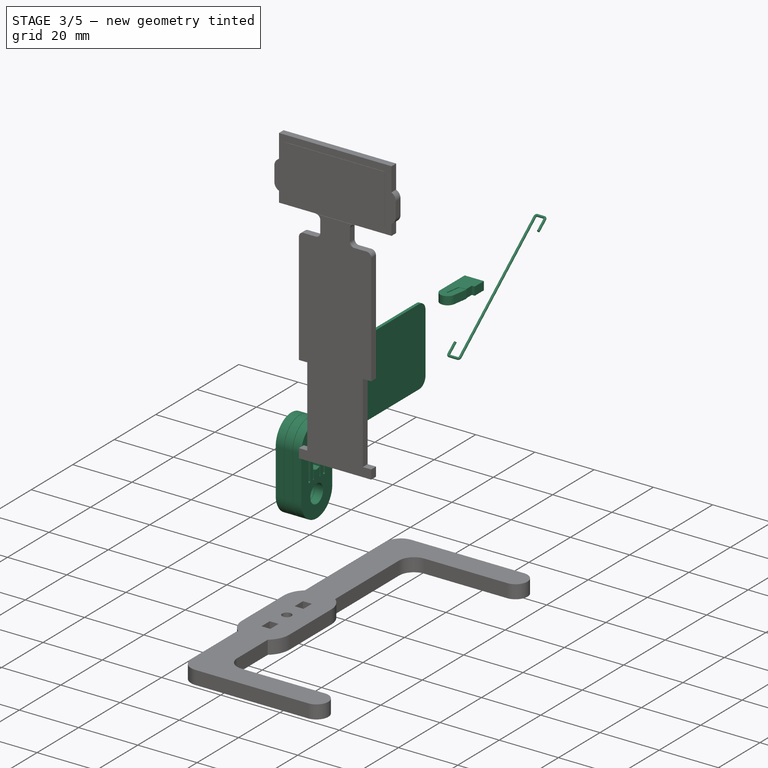
[diagram: stage 3 of 5 — iso view after this stage's code; geometry added in this stage tinted green]
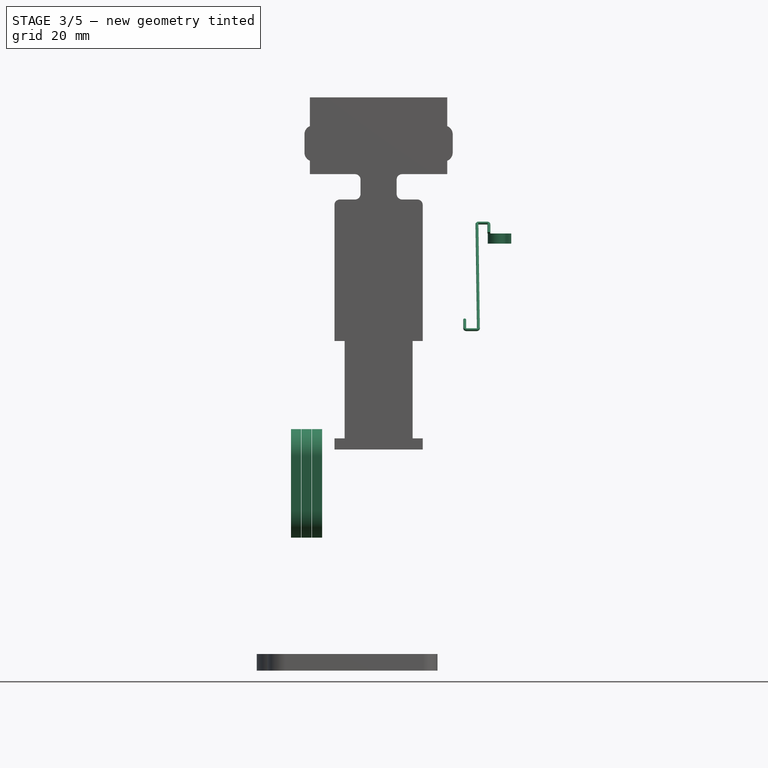
[diagram: stage 3 of 5 — front view after this stage's code; geometry added in this stage tinted green]
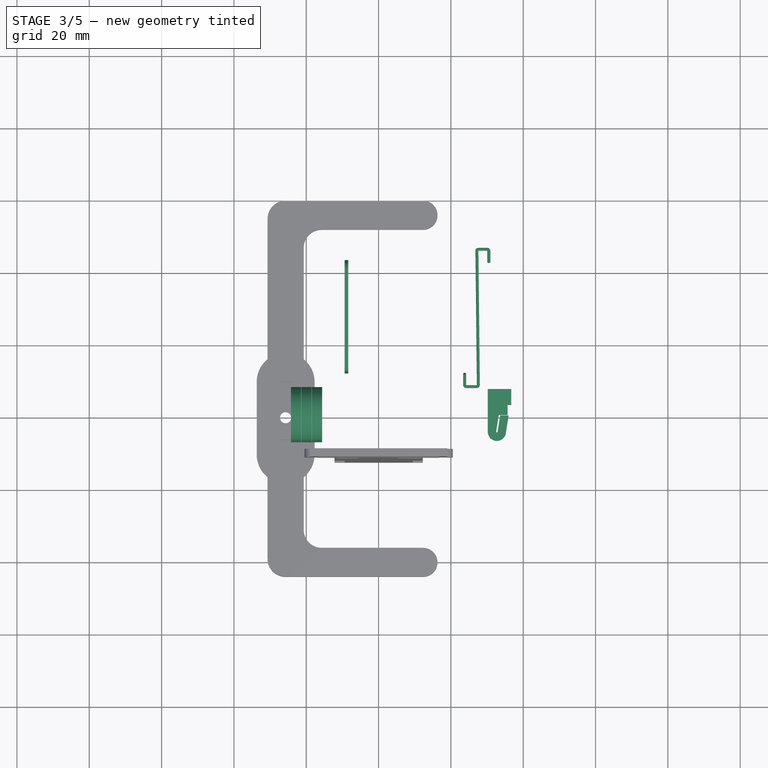
[diagram: stage 3 of 5 — top view after this stage's code; geometry added in this stage tinted green]
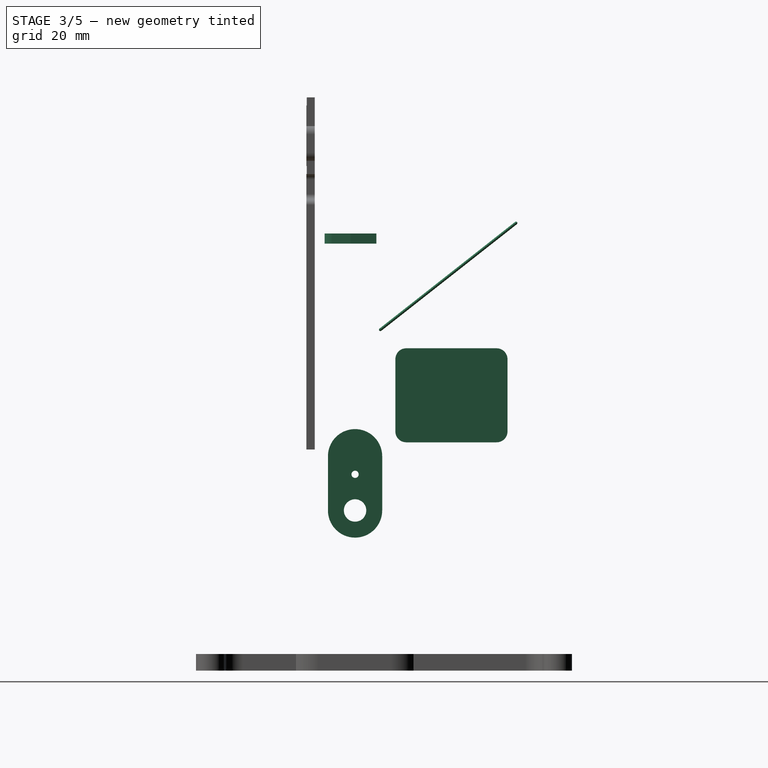
[diagram: stage 3 of 5 — right view after this stage's code; geometry added in this stage tinted green]
FEATURE [PartDesign::Body] Body007  label="feet_right"
  Group = -> [Sketch006,Binder009,DatumPlane,Pad006]
  Origin = -> Origin009
  Tip = -> Pad006
FEATURE [PartDesign::FeatureBase] Clone
  BaseFeature = -> Body
FEATURE [PartDesign::Body] Body008  label="cam_left_1"
  Group = -> [Clone]
  Origin = -> Origin010
  Placement = pos=(0,0,0) rot=(0,1,0;3.14159rad)
  Tip = -> Clone
FEATURE [PartDesign::FeatureBase] Clone001
  BaseFeature = -> Body003
FEATURE [PartDesign::Body] Body009  label="cam_left_2"
  Group = -> [Clone001]
  Origin = -> Origin011
  Placement = pos=(0,0,0) rot=(0,1,0;3.14159rad)
  Tip = -> Clone001
FEATURE [PartDesign::FeatureBase] Clone002
  BaseFeature = -> Body004
FEATURE [PartDesign::Body] Body025  label="elastic_band"
  Group = -> [Binder022,Sketch013,Pad013,Bend,Bend001,Binder023,Bend002,Bend003,Fillet002]
  Origin = -> Origin028
  Tip = -> Fillet002
FEATURE [PartDesign::SubShapeBinder] Binder024
  BindCopyOnChange = 0
  BindMode = 0
  ClaimChildren = false
  Context = -> Body026 [Binder024.]
  Fuse = false
  MakeFace = true
  OffsetFill = false
  OffsetIntersection = false
  OffsetJoinType = 0
  OffsetOpenResult = false
  PartialLoad = false
  Relative = true
  Support = -> [Body017[Pad007.]]
  _Version = 2
FEATURE [Sketcher::SketchObject] Sketch014
  ExternalGeometry = -> [Binder024]
  FullyConstrained = true
  MapMode = 5
  Placement = pos=(-9.4,0,0) rot=(0.57735,0.57735,0.57735;2.0944rad)
  Support = -> [Binder024]
  sketch-geometry (10):
    g0: ArcOfCircle CenterX=14.15 CenterY=31.85 CenterZ=0 NormalX=0 NormalY=0 NormalZ=1 AngleXU=0 Radius=3 StartAngle=1.5708 EndAngle=3.14159
    g1: LineSegment StartX=14.15 StartY=34.85 StartZ=0 EndX=39.15 EndY=34.85 EndZ=0
    g2: ArcOfCircle CenterX=39.15 CenterY=31.85 CenterZ=0 NormalX=0 NormalY=0 NormalZ=1 AngleXU=0 Radius=3 StartAngle=1e-16 EndAngle=1.5708
    g3: LineSegment StartX=42.15 StartY=31.85 StartZ=0 EndX=42.15 EndY=11.85 EndZ=0
    g4: ArcOfCircle CenterX=39.15 CenterY=11.85 CenterZ=0 NormalX=0 NormalY=0 NormalZ=1 AngleXU=0 Radius=3 StartAngle=4.71239 EndAngle=6.28319
    g5: LineSegment StartX=39.15 StartY=8.85 StartZ=0 EndX=14.15 EndY=8.85 EndZ=0
    g6: ArcOfCircle CenterX=14.15 CenterY=11.85 CenterZ=0 NormalX=0 NormalY=0 NormalZ=1 AngleXU=0 Radius=3 StartAngle=3.14159 EndAngle=4.71239
    g7: LineSegment StartX=11.15 StartY=11.85 StartZ=0 EndX=11.15 EndY=31.85 EndZ=0
    g8: GeomPoint X=11.15 Y=34.85 Z=0
    g9: GeomPoint X=42.15 Y=8.85 Z=0
  constraints (24):
    c: Tangent(g0,g1) = 1.5708
    c: Tangent(g1,g2) = 1.5708
    c: Tangent(g2,g3) = 1.5708
    c: Tangent(g3,g4) = 1.5708
    c: Tangent(g4,g5) = 1.5708
    c: Tangent(g5,g6) = 1.5708
    c: Tangent(g6,g7) = 1.5708
    c: Tangent(g7,g0) = 1.5708
    c: Horizontal(g1)
    c: Horizontal(g5)
    c: Vertical(g3)
    c: Vertical(g7)
    c: Equal(g0,g2)
    c: Equal(g2,g4)
    c: Equal(g4,g6)
    c: PointOnObject(g8,g1)
    c: PointOnObject(g8,g7)
    c: PointOnObject(g9,g3)
    c: PointOnObject(g9,g5)
    c: Radius(g0) = 3
    c: PointOnObject(g2,g-4)
    c: Vertical(g0,g-3)
    c: PointOnObject(g1,g-5)
    c: PointOnObject(g4,g-6)
FEATURE [PartDesign::Pad] Pad014
  Direction = (1,0,0)
  Length = 1
  Length2 = 10
  Profile = -> Sketch014
  ReferenceAxis = -> Sketch014 [N_Axis]
  Type = 0
FEATURE [PartDesign::Body] Body028  label="foam_feet_right"
  Group = -> [Binder025,Sketch015,Pad015]
  Origin = -> Origin031
  Tip = -> Pad015
FEATURE [PartDesign::FeatureBase] Clone012
  BaseFeature = -> Body028
FEATURE [PartDesign::Body] Body029  label="foam_feet_left"
  Group = -> [Clone012]
  Origin = -> Origin032
  Placement = pos=(1.1e-14,0,-88) rot=(0,1,0;3.14159rad)
  Tip = -> Clone012
FEATURE [Part::Part2DObjectPython] Shape2DView  label="foam_battery_right_DXF"  # Draft 2D object (typed FeaturePython)
  AutoUpdate = true
  Base = -> Body026
  Clip = false
  FuseArch = false
  HiddenLines = false
  InPlace = true
  OnlySolids = false
  Projection = (-1,0,0)
  ProjectionMode = 0
  SegmentLength = 0.05
  Tessellation = false
  VisibleOnly = false
FEATURE [Part::Part2DObjectPython] Shape2DView001  label="foam_feet_right_DXF"  # Draft 2D object (typed FeaturePython)
  AutoUpdate = true
  Base = -> Body028
  Clip = false
  FuseArch = false
  HiddenLines = false
  InPlace = true
  OnlySolids = false
  Projection = (0,0,1)
  ProjectionMode = 0
  SegmentLength = 0.05
  Tessellation = false
  VisibleOnly = false
FEATURE [Part::Part2DObjectPython] Shape2DView002  label="foam_feet_left_DXF"  # Draft 2D object (typed FeaturePython)
  AutoUpdate = true
  Base = -> Body029
  Clip = false
  FuseArch = false
  HiddenLines = false
  InPlace = true
  OnlySolids = false
  Projection = (0,0,1)
  ProjectionMode = 0
  SegmentLength = 0.05
  Tessellation = false
  VisibleOnly = false
FEATURE [Part::Part2DObjectPython] Shape2DView003  label="foam_battery_left_DXF"  # Draft 2D object (typed FeaturePython)
  AutoUpdate = true
  Base = -> Body027
  Clip = false
  FuseArch = false
  HiddenLines = false
  InPlace = true
  OnlySolids = false
  Projection = (-1,0,0)
  ProjectionMode = 0
  SegmentLength = 0.05
  Tessellation = false
  VisibleOnly = false
FEATURE [Part::Part2DObjectPython] Shape2DView004  label="cam_right_1_DXF"  # Draft 2D object (typed FeaturePython)
  AutoUpdate = true
  Base = -> Body
  Clip = false
  FuseArch = false
  HiddenLines = false
  InPlace = true
  OnlySolids = false
  Projection = (-1,0,0)
  ProjectionMode = 0
  SegmentLength = 0.05
  Tessellation = false
  VisibleOnly = false
FEATURE [Part::Part2DObjectPython] Shape2DView005  label="cam_right_2_DXF"  # Draft 2D object (typed FeaturePython)
  AutoUpdate = true
  Base = -> Body003
  Clip = false
  FuseArch = false
  HiddenLines = false
  InPlace = true
  OnlySolids = false
  Projection = (-1,0,0)
  ProjectionMode = 0
  SegmentLength = 0.05
  Tessellation = false
  VisibleOnly = false
FEATURE [Part::Part2DObjectPython] Shape2DView006  label="cam_right_3_DXF"  # Draft 2D object (typed FeaturePython)
  AutoUpdate = true
  Base = -> Body004
  Clip = false
  FuseArch = false
  HiddenLines = false
  InPlace = true
  OnlySolids = false
  Projection = (-1,0,0)
  ProjectionMode = 0
  SegmentLength = 0.05
  Tessellation = false
  VisibleOnly = false
FEATURE [Part::Part2DObjectPython] Shape2DView008  label="cam_left_1_DXF"  # Draft 2D object (typed FeaturePython)
  AutoUpdate = true
  Base = -> Body008
  Clip = false
  FuseArch = false
  HiddenLines = false
  InPlace = true
  OnlySolids = false
  Projection = (1,0,0)
  ProjectionMode = 0
  SegmentLength = 0.05
  Tessellation = false
  VisibleOnly = false
FEATURE [Part::Part2DObjectPython] Shape2DView009  label="cam_left_2_DXF"  # Draft 2D object (typed FeaturePython)
  AutoUpdate = true
  Base = -> Body009
  Clip = false
  FuseArch = false
  HiddenLines = false
  InPlace = true
  OnlySolids = false
  Projection = (1,0,0)
  ProjectionMode = 0
  SegmentLength = 0.05
  Tessellation = false
  VisibleOnly = false
FEATURE [Part::Part2DObjectPython] Shape2DView010  label="cam_left_3_DXF"  # Draft 2D object (typed FeaturePython)
  AutoUpdate = true
  Base = -> Body010
  Clip = false
  FuseArch = false
  HiddenLines = false
  InPlace = true
  OnlySolids = false
  Projection = (1,0,0)
  ProjectionMode = 0
  SegmentLength = 0.05
  Tessellation = false
  VisibleOnly = false
FEATURE [Part::Part2DObjectPython] Shape2DView012  label="feet_right_DXF"  # Draft 2D object (typed FeaturePython)
  AutoUpdate = true
  Base = -> Body007
  Clip = false
  FuseArch = false
  HiddenLines = false
  InPlace = true
  OnlySolids = false
  Projection = (0,0,1)
  ProjectionMode = 0
  SegmentLength = 0.05
  Tessellation = false
  VisibleOnly = false
FEATURE [Part::Part2DObjectPython] Shape2DView013  label="feet_left_DXF"  # Draft 2D object (typed FeaturePython)
  AutoUpdate = true
  Base = -> Body015
  Clip = false
  FuseArch = false
  HiddenLines = false
  InPlace = true
  OnlySolids = false
  Projection = (0,0,1)
  ProjectionMode = 0
  SegmentLength = 0.05
  Tessellation = false
  VisibleOnly = false
FEATURE [PartDesign::SubShapeBinder] Binder028
  BindCopyOnChange = 0
  BindMode = 0
  ClaimChildren = false
  Context = -> Body030 [Binder028.]
  Fuse = false
  MakeFace = true
  OffsetFill = false
  OffsetIntersection = false
  OffsetJoinType = 0
  OffsetOpenResult = false
  PartialLoad = false
  Relative = true
  Support = -> [Body024]
  _Version = 2
FEATURE [PartDesign::SubShapeBinder] Binder029
  BindCopyOnChange = 0
  BindMode = 0
  ClaimChildren = false
  Context = -> Body030 [Binder029.]
  Fuse = false
  MakeFace = true
  OffsetFill = false
  OffsetIntersection = false
  OffsetJoinType = 0
  OffsetOpenResult = false
  PartialLoad = false
  Relative = true
  Support = -> [Body014]
  _Version = 2
FEATURE [Sketcher::SketchObject] Sketch016
  ExternalGeometry = -> [Binder028,Binder029]
  FullyConstrained = true
  MapMode = 5
  Placement = pos=(27.1,-1.44e-14,-6e-15) rot=(0.57735,0.57735,0.57735;2.0944rad)
  Support = -> [Binder029]
  sketch-geometry (3):
    g0: LineSegment StartX=44.9595 StartY=69.8548 StartZ=0 EndX=7 EndY=40 EndZ=0
    g1: LineSegment StartX=7 StartY=40 StartZ=0 EndX=6.52839 EndY=39.6291 EndZ=0
    g2: LineSegment StartX=44.9595 StartY=69.8548 StartZ=0 EndX=44.4879 EndY=69.4839 EndZ=0
  constraints (8):
    c: Coincident(g1,g0)
    c: Parallel(g1,g0)
    c: Coincident(g2,g0)
    c: Parallel(g2,g0)
    c: Coincident(g2,g-3)
    c: PointOnObject(g0,g-3)
    c: PointOnObject(g1,g-4)
    c: Coincident(g-4,g0)
FEATURE [PartDesign::Plane] DatumPlane005
  AttachmentOffset = pos=(0,0,0) rot=(1,0,0;1.5708rad)
  Length = 71.8527
  MapMode = 7
  Placement = pos=(27.1,44.9595,69.8548) rot=(0,0.944993,0.327092;3.14159rad)
  ResizeMode = 0
  Support = -> [Sketch016]
  Width = 129.768
FEATURE [Sketcher::SketchObject] Sketch017
  ExternalGeometry = -> [Binder028,Binder029]
  FullyConstrained = true
  MapMode = 5
  Placement = pos=(27.1,44.9595,69.8548) rot=(0,0.944993,0.327092;3.14159rad)
  Support = -> [DatumPlane005]
  sketch-geometry (9):
    g0: LineSegment StartX=1.78e-14 StartY=-48.2932 StartZ=0 EndX=2.8 EndY=-48.2932 EndZ=0
    g1: LineSegment StartX=-2.9 StartY=-0.6 StartZ=0 EndX=-0.6 EndY=-0.6 EndZ=0
    g2: ArcOfCircle CenterX=2.8 CenterY=-47.7932 CenterZ=0 NormalX=0 NormalY=0 NormalZ=1 AngleXU=0 Radius=0.5 StartAngle=4.71239 EndAngle=6.28319
    g3: LineSegment StartX=3.3 StartY=-47.7932 StartZ=0 EndX=3.3 EndY=-43.7932 EndZ=0
    g4: ArcOfCircle CenterX=-2.9 CenterY=-1.1 CenterZ=0 NormalX=0 NormalY=0 NormalZ=1 AngleXU=0 Radius=0.5 StartAngle=1.5708 EndAngle=3.14159
    g5: LineSegment StartX=-3.4 StartY=-1.1 StartZ=0 EndX=-3.4 EndY=-5.1 EndZ=0
    g6: ArcOfCircle CenterX=-0.6 CenterY=-1.1 CenterZ=0 NormalX=0 NormalY=0 NormalZ=1 AngleXU=0 Radius=0.5 StartAngle=6.27462 EndAngle=7.85398
    g7: ArcOfCircle CenterX=1.88e-14 CenterY=-47.7932 CenterZ=0 NormalX=0 NormalY=0 NormalZ=1 AngleXU=0 Radius=0.5 StartAngle=3.13303 EndAngle=4.71239
    g8: LineSegment StartX=-0.499982 StartY=-47.789 StartZ=0 EndX=-0.100018 EndY=-1.10428 EndZ=0
  constraints (20):
    c: Radius(g2) = 0.5
    c: Perpendicular(g0,g3)
    c: Distance(g3) = 4
    c: Tangent(g4,g1) = 1.5708
    c: Perpendicular(g5,g1)
    c: Equal(g4,g2)
    c: Equal(g3,g5)
    c: Tangent(g4,g5) = -1.5708
    c: Tangent(g6,g1) = 1.5708
    c: Equal(g6,g4)
    c: Equal(g7,g2)
    c: Tangent(g6,g8) = -1.5708
    c: Tangent(g8,g7) = 1.5708
    c: Tangent(g7,g0) = -1.5708
    c: Tangent(g2,g0) = -1.5708
    c: Tangent(g2,g3) = -1.5708
    c: Symmetric(g-4,g-4,g1)
    c: Symmetric(g-3,g-3,g1)
    c: Symmetric(g-5,g-5,g0)
    c: Symmetric(g-6,g-6,g0)
FEATURE [PartDesign::Plane] DatumPlane006
  AttachmentOffset = pos=(0,0,4) rot=(0,0,1;0rad)
  Length = 72.1441
  MapMode = 7
  Placement = pos=(30.5,40.9508,66.702) rot=(1,0,0;2.23725rad)
  ResizeMode = 0
  Support = -> [Sketch017]
  Width = 134.254
FEATURE [Sketcher::SketchObject] Sketch018
  FullyConstrained = true
  MapMode = 5
  Placement = pos=(30.5,40.9508,66.702) rot=(1,0,0;2.23725rad)
  Support = -> [DatumPlane006]
  sketch-geometry (1):
    g0: Circle CenterX=0 CenterY=0 CenterZ=0 NormalX=0 NormalY=0 NormalZ=1 AngleXU=0 Radius=0.4
  constraints (2):
    c: Diameter(g0) = 0.8
    c: Coincident(g0,g-1)
FEATURE [PartDesign::AdditivePipe] AdditivePipe
  AuxilleryCurvelinear = true
  AuxillerySpineTangent = false
  Binormal = (0,0,0)
  Mode = 0
  Placement = pos=(30.5,40.9508,66.702) rot=(1,0,0;2.23725rad)
  Profile = -> Sketch018
  Spine = -> Sketch017 [Edge1,Edge2,Edge3,Edge4,Edge5,Edge6,Edge7,Edge8,Edge9]
  SpineTangent = false
  Transformation = 0
  Transition = 0
FEATURE [PartDesign::Body] Body030  label="brass_wire_left"
  Group = -> [Binder028,Binder029,Sketch016,DatumPlane005,Sketch017,DatumPlane006,Sketch018,AdditivePipe]
  Origin = -> Origin033
  Tip = -> AdditivePipe
FEATURE [PartDesign::FeatureBase] Clone013
  BaseFeature = -> Body030
FEATURE [PartDesign::SubShapeBinder] Binder031
  BindCopyOnChange = 0
  BindMode = 0
  ClaimChildren = false
  Context = -> Body032 [Binder031.]
  Fuse = false
  MakeFace = true
  OffsetFill = false
  OffsetIntersection = false
  OffsetJoinType = 0
  OffsetOpenResult = false
  PartialLoad = false
  Relative = true
  Support = -> [Body002[Pad004.]]
  _Version = 2
FEATURE [PartDesign::SubShapeBinder] Binder032
  BindCopyOnChange = 0
  BindMode = 0
  ClaimChildren = false
  Context = -> Body032 [Binder032.]
  Fuse = false
  MakeFace = true
  OffsetFill = false
  OffsetIntersection = false
  OffsetJoinType = 0
  OffsetOpenResult = false
  PartialLoad = false
  Relative = true
  Support = -> [Body017[Pocket002.]]
  _Version = 2
FEATURE [PartDesign::SubShapeBinder] Binder033
  BindCopyOnChange = 0
  BindMode = 0
  ClaimChildren = false
  Context = -> Body032 [Binder033.]
  Fuse = false
  MakeFace = true
  OffsetFill = false
  OffsetIntersection = false
  OffsetJoinType = 0
  OffsetOpenResult = false
  PartialLoad = false
  Relative = true
  Support = -> [Body023]
  _Version = 2
FEATURE [Sketcher::SketchObject] Sketch025
  ExternalGeometry = -> [Binder033,Binder031,Binder032]
  FullyConstrained = true
  MapMode = 5
  Placement = pos=(0,0,0) rot=(1,0,0;1.5708rad)
  Support = -> [XZ_Plane033]
  expr: Constraints[14] = Spreadsheet.acrylic_thin
  expr: Constraints[35] = Spreadsheet.acrylic_thin
  expr: Constraints[36] = Spreadsheet.acrylic_thin * 2
  expr: Constraints[40] = (10 - Spreadsheet.acrylic_thin) / 2
  expr: Constraints[88] = Spreadsheet.acrylic_thin
  sketch-geometry (34):
    g0: LineSegment StartX=0 StartY=70.2 StartZ=0 EndX=-37.5 EndY=70.2 EndZ=0
    g1: ArcOfCircle CenterX=-37.5 CenterY=68.7 CenterZ=0 NormalX=0 NormalY=0 NormalZ=1 AngleXU=0 Radius=1.5 StartAngle=1.5708 EndAngle=3.14159
    g2: LineSegment StartX=-39 StartY=68.7 StartZ=0 EndX=-39 EndY=61.7 EndZ=0
    g3: ArcOfCircle CenterX=-37.5 CenterY=61.7 CenterZ=0 NormalX=0 NormalY=0 NormalZ=1 AngleXU=0 Radius=1.5 StartAngle=3.14159 EndAngle=4.71239
    g4: LineSegment StartX=-37.5 StartY=60.2 StartZ=0 EndX=-12.2 EndY=60.2 EndZ=0
    g5: LineSegment StartX=-12.2 StartY=60.2 StartZ=0 EndX=-12.2 EndY=63 EndZ=0
    g6: LineSegment StartX=-12.2 StartY=63 StartZ=0 EndX=-9.4 EndY=63 EndZ=0
    g7: LineSegment StartX=-9.4 StartY=63 StartZ=0 EndX=-9.4 EndY=60.2 EndZ=0
    g8: LineSegment StartX=-9.4 StartY=60.2 StartZ=0 EndX=0 EndY=60.2 EndZ=0
    g9: LineSegment StartX=-24.1 StartY=66.6 StartZ=0 EndX=-18.5 EndY=66.6 EndZ=0
    g10: LineSegment StartX=-18.5 StartY=66.6 StartZ=0 EndX=-18.5 EndY=63.8 EndZ=0
    g11: LineSegment StartX=-18.5 StartY=63.8 StartZ=0 EndX=-24.1 EndY=63.8 EndZ=0
    g12: LineSegment StartX=-24.1 StartY=63.8 StartZ=0 EndX=-24.1 EndY=66.6 EndZ=0
    g13: LineSegment StartX=-29.7 StartY=66.6 StartZ=0 EndX=-35.3 EndY=66.6 EndZ=0
    g14: LineSegment StartX=-35.3 StartY=66.6 StartZ=0 EndX=-35.3 EndY=63.8 EndZ=0
    g15: LineSegment StartX=-35.3 StartY=63.8 StartZ=0 EndX=-29.7 EndY=63.8 EndZ=0
    g16: LineSegment StartX=-29.7 StartY=63.8 StartZ=0 EndX=-29.7 EndY=66.6 EndZ=0
    g17: LineSegment StartX=18.5 StartY=66.6 StartZ=0 EndX=24.1 EndY=66.6 EndZ=0
    g18: LineSegment StartX=24.1 StartY=66.6 StartZ=0 EndX=24.1 EndY=63.8 EndZ=0
    g19: LineSegment StartX=24.1 StartY=63.8 StartZ=0 EndX=18.5 EndY=63.8 EndZ=0
    g20: LineSegment StartX=18.5 StartY=63.8 StartZ=0 EndX=18.5 EndY=66.6 EndZ=0
    g21: LineSegment StartX=29.7 StartY=66.6 StartZ=0 EndX=35.3 EndY=66.6 EndZ=0
    g22: LineSegment StartX=35.3 StartY=66.6 StartZ=0 EndX=35.3 EndY=63.8 EndZ=0
    g23: LineSegment StartX=35.3 StartY=63.8 StartZ=0 EndX=29.7 EndY=63.8 EndZ=0
    g24: LineSegment StartX=29.7 StartY=63.8 StartZ=0 EndX=29.7 EndY=66.6 EndZ=0
    g25: LineSegment StartX=0 StartY=70.2 StartZ=0 EndX=37.5 EndY=70.2 EndZ=0
    g26: ArcOfCircle CenterX=37.5 CenterY=68.7 CenterZ=0 NormalX=0 NormalY=0 NormalZ=1 AngleXU=0 Radius=1.5 StartAngle=-2.7e-15 EndAngle=1.5708
    g27: LineSegment StartX=39 StartY=68.7 StartZ=0 EndX=39 EndY=61.7 EndZ=0
    g28: ArcOfCircle CenterX=37.5 CenterY=61.7 CenterZ=0 NormalX=0 NormalY=0 NormalZ=1 AngleXU=0 Radius=1.5 StartAngle=4.71239 EndAngle=6.28319
    g29: LineSegment StartX=0 StartY=60.2 StartZ=0 EndX=9.4 EndY=60.2 EndZ=0
    g30: LineSegment StartX=9.4 StartY=60.2 StartZ=0 EndX=9.4 EndY=63 EndZ=0
    g31: LineSegment StartX=9.4 StartY=63 StartZ=0 EndX=12.2 EndY=63 EndZ=0
    g32: LineSegment StartX=12.2 StartY=63 StartZ=0 EndX=12.2 EndY=60.2 EndZ=0
    g33: LineSegment StartX=12.2 StartY=60.2 StartZ=0 EndX=37.5 EndY=60.2 EndZ=0
  constraints (93):
    c: PointOnObject(g0,g-2)
    c: Horizontal(g0)
    c: Tangent(g0,g1) = -1.5708
    c: Angle(g1) = 1.5708
    c: Tangent(g2,g3) = -1.5708
    c: Angle(g3) = 1.5708
    c: Coincident(g4,g5)
    c: Vertical(g5)
    c: Coincident(g5,g6)
    c: Horizontal(g6)
    c: Coincident(g6,g7)
    c: Vertical(g7)
    c: Coincident(g7,g8)
    c: Horizontal(g8)
    c: DistanceY(g7,g7) = 2.8
    c: Equal(g7,g5)
    c: Equal(g1,g3)
    c: Radius(g1) = 1.5
    c: PointOnObject(g8,g-2)
    c: Coincident(g9,g10)
    c: Coincident(g10,g11)
    c: Coincident(g11,g12)
    c: Coincident(g12,g9)
    c: Horizontal(g9)
    c: Horizontal(g11)
    c: Vertical(g10)
    c: Vertical(g12)
    c: Coincident(g13,g14)
    c: Coincident(g14,g15)
    c: Coincident(g15,g16)
    c: Coincident(g16,g13)
    c: Horizontal(g13)
    c: Horizontal(g15)
    c: Vertical(g14)
    c: Vertical(g16)
    c: DistanceY(g12,g12) = 2.8
    c: DistanceX(g9,g9) = 5.6
    c: Equal(g13,g9)
    c: Equal(g16,g12)
    c: Horizontal(g13,g9)
    c: Distance(g11,g4) = 3.6
    c: Coincident(g17,g18)
    c: Coincident(g18,g19)
    c: Coincident(g19,g20)
    c: Coincident(g20,g17)
    c: Horizontal(g17)
    c: Horizontal(g19)
    c: Vertical(g18)
    c: Vertical(g20)
    c: Coincident(g21,g22)
    c: Coincident(g22,g23)
    c: Coincident(g23,g24)
    c: Coincident(g24,g21)
    c: Horizontal(g21)
    c: Horizontal(g23)
    c: Vertical(g22)
    c: Vertical(g24)
    c: Equal(g18,g12)
    c: Equal(g9,g17)
    c: Equal(g24,g16)
    c: Symmetric(g17,g9,g-2)
    c: Equal(g21,g13)
    c: Symmetric(g21,g13,g-2)
    c: Coincident(g0,g25)
    c: Horizontal(g25)
    c: Tangent(g25,g26) = 1.5708
    c: Angle(g26) = 1.5708
    c: Tangent(g27,g28) = 1.5708
    c: Angle(g28) = 1.5708
    c: Equal(g28,g26)
    c: Equal(g26,g1)
    c: Tangent(g3,g4) = -1.5708
    c: Tangent(g1,g2) = -1.5708
    c: Tangent(g26,g27) = 1.5708
    c: Equal(g25,g0)
    c: Coincident(g8,g29)
    c: Horizontal(g29)
    c: Coincident(g29,g30)
    c: Vertical(g30)
    c: Coincident(g30,g31)
    c: Coincident(g31,g32)
    c: Coincident(g32,g33)
    c: Coincident(g33,g28)
    c: Horizontal(g33)
    c: Distance(g9,g-4) = 0.2
    c: Distance(g13,g-3) = 0.2
    c: DistanceY(g8,g0) = 10
    c: DistanceX(g0,g0) = 37.5
    c: DistanceX(g6,g6) = 2.8
    c: Symmetric(g6,g30,g-2)
    c: Symmetric(g31,g5,g-2)
    c: Symmetric(g32,g4,g-2)
    c: Coincident(g5,g-6)
FEATURE [PartDesign::Pad] Pad016
  Direction = (0,-1,-2e-16)
  Length = 2.8
  Length2 = 10
  Midplane = true
  Placement = pos=(0,0,0) rot=(1,0,0;1.5708rad)
  Profile = -> Sketch025
  ReferenceAxis = -> Sketch025 [N_Axis]
  Refine = true
  Type = 0
  expr: Length = Spreadsheet.acrylic_thin
FEATURE [PartDesign::Body] Body032  label="Shoulder"
  Group = -> [Sketch025,Binder031,Binder032,Binder033,Pad016]
  Origin = -> Origin035
  Tip = -> Pad016
FEATURE [PartDesign::SubShapeBinder] Binder034
  BindCopyOnChange = 0
  BindMode = 0
  ClaimChildren = false
  Context = -> Body033 [Binder034.]
  Fuse = false
  MakeFace = true
  OffsetFill = false
  OffsetIntersection = false
  OffsetJoinType = 0
  OffsetOpenResult = false
  PartialLoad = false
  Relative = true
  Support = -> [Body032[Pad016.]]
  _Version = 2
FEATURE [Sketcher::SketchObject] Sketch026
  ExternalGeometry = -> [Binder034]
  FullyConstrained = true
  MapMode = 5
  Placement = pos=(0,0,63.8) rot=(0,0,1;0rad)
  Support = -> [Binder034]
  expr: Constraints[33] = Spreadsheet.acrylic_thin
  sketch-geometry (14):
    g0: LineSegment StartX=30.2 StartY=1.4 StartZ=0 EndX=30.2 EndY=5.9 EndZ=0
    g1: LineSegment StartX=30.2 StartY=5.9 StartZ=0 EndX=36.7 EndY=5.9 EndZ=0
    g2: LineSegment StartX=36.7 StartY=5.9 StartZ=0 EndX=36.7 EndY=1.5 EndZ=0
    g3: LineSegment StartX=36.7 StartY=1.5 StartZ=0 EndX=35.7 EndY=1.5 EndZ=0
    g4: LineSegment StartX=35.7 StartY=1.5 StartZ=0 EndX=35.7 EndY=-1.3 EndZ=0
    g5: LineSegment StartX=33.6075 StartY=-1.45 StartZ=0 EndX=35.95 EndY=-1.45 EndZ=0
    g6: LineSegment StartX=35.95 StartY=-1.45 StartZ=0 EndX=35.2 EndY=-6.28546 EndZ=0
    g7: ArcOfCircle CenterX=32.7149 CenterY=-5.9 CenterZ=0 NormalX=0 NormalY=0 NormalZ=1 AngleXU=0 Radius=2.51486 StartAngle=3.14159 EndAngle=6.12931
    g8: LineSegment StartX=35.7 StartY=-1.3 StartZ=0 EndX=33.2259 EndY=-1.3 EndZ=0
    g9: LineSegment StartX=33.2259 StartY=-1.3 StartZ=0 EndX=32.5172 EndY=-5.86935 EndZ=0
    g10: ArcOfCircle CenterX=32.7149 CenterY=-5.9 CenterZ=0 NormalX=0 NormalY=0 NormalZ=1 AngleXU=0 Radius=0.2 StartAngle=2.98771 EndAngle=6.12931
    g11: LineSegment StartX=32.9125 StartY=-5.93065 StartZ=0 EndX=33.6075 EndY=-1.45 EndZ=0
    g12: LineSegment StartX=30.2 StartY=-5.9 StartZ=0 EndX=30.2 EndY=-1.4 EndZ=0
    g13: LineSegment StartX=30.2 StartY=-1.4 StartZ=0 EndX=30.2 EndY=1.4 EndZ=0
  constraints (38):
    c: DistanceY(g0,g0) = 4.5
    c: DistanceX(g3,g3) = 1
    c: Coincident(g2,g3)
    c: Horizontal(g3)
    c: Vertical(g2)
    c: Horizontal(g1)
    c: Vertical(g0)
    c: Coincident(g1,g2)
    c: Coincident(g0,g1)
    c: Vertical(g4)
    c: Horizontal(g8)
    c: Horizontal(g5)
    c: Coincident(g7,g10)
    c: Coincident(g8,g9)
    c: Coincident(g5,g11)
    c: Coincident(g5,g6)
    c: Coincident(g4,g8)
    c: DistanceX(g6,g4) = 0.5
    c: Coincident(g3,g4)
    c: Diameter(g10) = 0.4
    c: Parallel(g9,g11)
    c: Parallel(g11,g6)
    c: Tangent(g6,g7) = 1.5708
    c: Tangent(g9,g10) = -1.5708
    c: Tangent(g10,g11) = -1.5708
    c: DistanceX(g1,g1) = 6.5
    c: DistanceY(g4,g4) = 2.8
    c: DistanceX(g4,g5) = 0.25
    c: DistanceY(g5,g4) = 0.15
    c: Vertical(g12)
    c: Equal(g12,g0)
    c: Coincident(g13,g12)
    c: Coincident(g13,g0)
    c: DistanceY(g13,g13) = 2.8
    c: Tangent(g12,g7) = 1.5708
    c: Symmetric(g0,g12,g-1)
    c: DistanceY(g0,g3) = 0.1
    c: Distance(g-1,g13) = 30.2
FEATURE [PartDesign::Pad] Pad017
  Direction = (0,-2e-16,1)
  Length = 2.8
  Length2 = 10
  Profile = -> Sketch026
  ReferenceAxis = -> Sketch026 [N_Axis]
  Type = 0
  expr: Length = Spreadsheet.acrylic_thin
FEATURE [PartDesign::Body] Body033  label="wedge1"
  Group = -> [Binder034,Sketch026,Pad017]
  Origin = -> Origin036
  Tip = -> Pad017
FEATURE [PartDesign::FeatureBase] Clone014
  BaseFeature = -> Body033
FEATURE [PartDesign::Body] Body034  label="wedge2"
  Group = -> [Clone014]
  Origin = -> Origin037
  Placement = pos=(54.3,0,130.4) rot=(0,1,0;3.14159rad)
  Tip = -> Clone014
FEATURE [PartDesign::FeatureBase] Clone015
  BaseFeature = -> Body033
FEATURE [PartDesign::Body] Body035  label="wedge3"
  Group = -> [Clone015]
  Origin = -> Origin038
  Placement = pos=(-54.3,0,0) rot=(0,0,1;0rad)
  Tip = -> Clone015
FEATURE [PartDesign::FeatureBase] Clone016
  BaseFeature = -> Body033
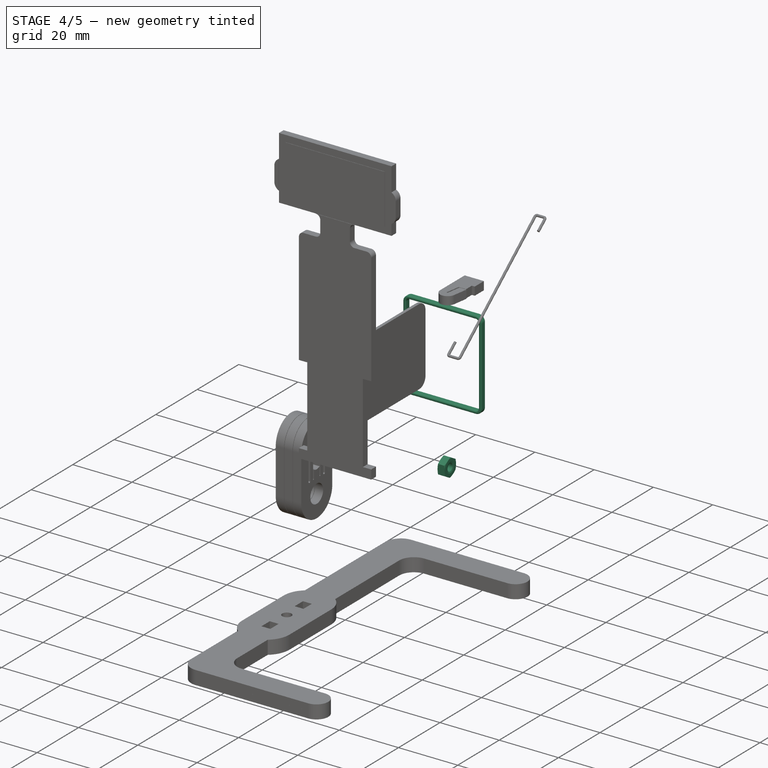
[diagram: stage 4 of 5 — iso view after this stage's code; geometry added in this stage tinted green]
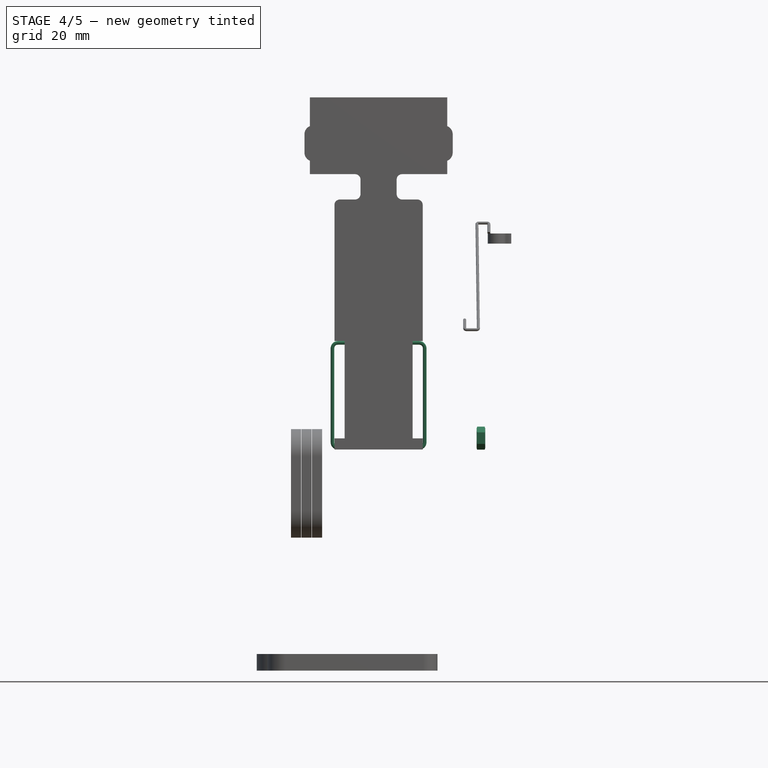
[diagram: stage 4 of 5 — front view after this stage's code; geometry added in this stage tinted green]
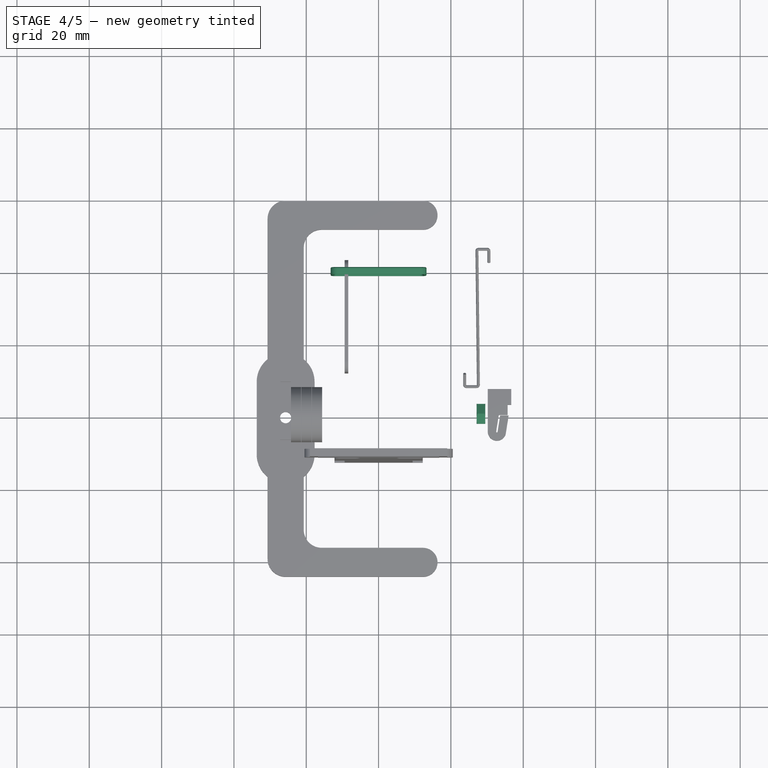
[diagram: stage 4 of 5 — top view after this stage's code; geometry added in this stage tinted green]
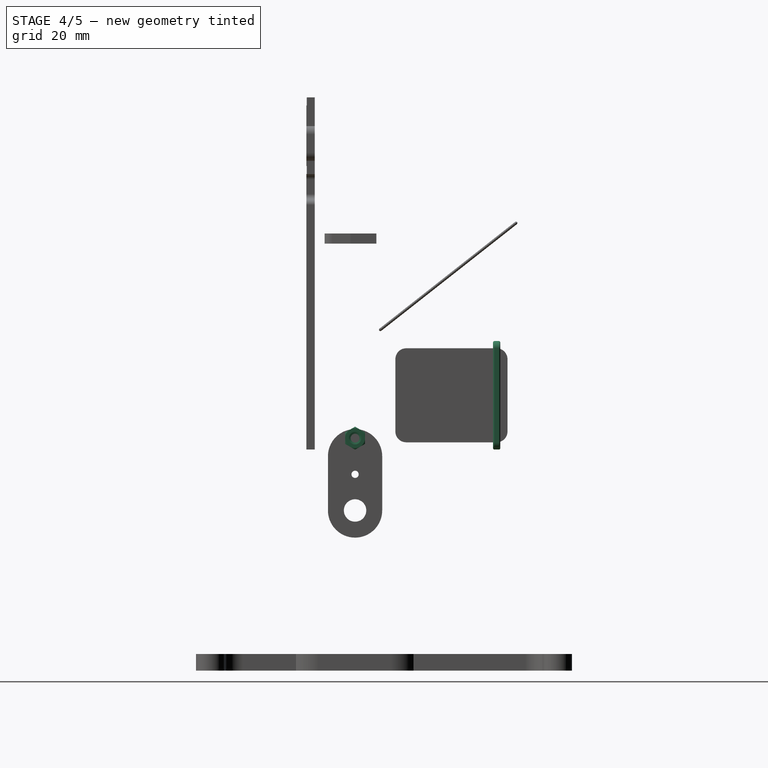
[diagram: stage 4 of 5 — right view after this stage's code; geometry added in this stage tinted green]
FEATURE [PartDesign::SubShapeBinder] Binder008
  BindCopyOnChange = 0
  BindMode = 0
  ClaimChildren = false
  Context = -> Body005 [Binder008.]
  Fuse = false
  MakeFace = true
  OffsetFill = false
  OffsetIntersection = false
  OffsetJoinType = 0
  OffsetOpenResult = false
  PartialLoad = false
  Relative = true
  Support = -> [Body002[Pad004.]]
  _Version = 2
FEATURE [Sketcher::SketchObject] Sketch004
  ExternalGeometry = -> [Binder005]
  FullyConstrained = true
  MapMode = 5
  Placement = pos=(-24.3,1.29e-14,-1.36e-14) rot=(0.57735,0.57735,0.57735;2.0944rad)
  Support = -> [Binder008]
  sketch-geometry (2):
    g0: Circle CenterX=-2.172e-12 CenterY=-10 CenterZ=0 NormalX=0 NormalY=0 NormalZ=1 AngleXU=0 Radius=3
    g1: Circle CenterX=-2.172e-12 CenterY=-10 CenterZ=0 NormalX=0 NormalY=0 NormalZ=1 AngleXU=0 Radius=1.6
  constraints (4):
    c: Diameter(g1) = 3.2
    c: Diameter(g0) = 6
    c: Coincident(g1,g-3)
    c: Coincident(g0,g1)
FEATURE [PartDesign::Pad] Pad005
  Direction = (1,-6e-16,-2e-16)
  Length = 8.8
  Length2 = 10
  Profile = -> Sketch004
  ReferenceAxis = -> Sketch004 [N_Axis]
  Type = 0
FEATURE [PartDesign::Body] Body010  label="cam_left_3"
  Group = -> [Clone002]
  Origin = -> Origin012
  Placement = pos=(0,0,0) rot=(0,1,0;3.14159rad)
  Tip = -> Clone002
FEATURE [PartDesign::FeatureBase] Clone003
  BaseFeature = -> Body005
FEATURE [App::DocumentObjectGroup] Group001  label="3D_prints"
  Group = -> [Body005,Body011]
FEATURE [Part::FeaturePython] Screw007  label="M3x14-Screw077"  # Fasteners workbench fastener (typed FeaturePython)
  Placement = pos=(15.5,-2.159e-12,10) rot=(0,-1,0;1.5708rad)
  baseObject = -> Body011 [Edge6]
  diameter = 1
  invert = false
  leftHanded = false
  length = 6
  lengthCustom = 14
  matchOuter = false
  offset = 0
  thread = false
  type = 25
FEATURE [Part::FeaturePython] Nut007  label="M3-Nut186"  # Fasteners workbench fastener (typed FeaturePython)
  Placement = pos=(29.5,-2.151e-12,10) rot=(0,-1,0;1.5708rad)
  baseObject = -> Screw007 [Edge71]
  diameter = 4
  invert = false
  leftHanded = false
  matchOuter = false
  offset = 0
  thread = false
  type = 25
FEATURE [App::DocumentObjectGroup] Group  label="Fasteners"
  Group = -> [Screw,Nut,Screw001,Screw002,Screw003,Nut003,Screw004,Nut004,Screw005,Nut005,Screw006,Nut006,Screw007,Nut007]
FEATURE [PartDesign::SubShapeBinder] Binder022
  BindCopyOnChange = 0
  BindMode = 0
  ClaimChildren = false
  Context = -> Body025 [Binder022.]
  Fuse = false
  MakeFace = true
  OffsetFill = false
  OffsetIntersection = false
  OffsetJoinType = 0
  OffsetOpenResult = false
  PartialLoad = false
  Relative = true
  Support = -> [Body017[Pad007.]]
  _Version = 2
FEATURE [Sketcher::SketchObject] Sketch013
  ExternalGeometry = -> [Binder022]
  FullyConstrained = true
  MapMode = 5
  Placement = pos=(0,0,0) rot=(0.57735,0.57735,0.57735;2.0944rad)
  Support = -> [YZ_Plane026]
  sketch-geometry (4):
    g0: LineSegment StartX=38.15 StartY=36.85 StartZ=0 EndX=40.15 EndY=36.85 EndZ=0
    g1: LineSegment StartX=40.15 StartY=36.85 StartZ=0 EndX=40.15 EndY=35.85 EndZ=0
    g2: LineSegment StartX=40.15 StartY=35.85 StartZ=0 EndX=38.15 EndY=35.85 EndZ=0
    g3: LineSegment StartX=38.15 StartY=35.85 StartZ=0 EndX=38.15 EndY=36.85 EndZ=0
  constraints (11):
    c: Coincident(g0,g1)
    c: Coincident(g1,g2)
    c: Coincident(g2,g3)
    c: Coincident(g3,g0)
    c: Horizontal(g0)
    c: Horizontal(g2)
    c: Vertical(g1)
    c: Vertical(g3)
    c: DistanceX(g0,g0) = 2
    c: DistanceY(g1,g1) = 1
    c: Symmetric(g2,g1,g-3)
FEATURE [PartDesign::Pad] Pad013
  Direction = (1,-2e-16,3e-16)
  Length = 22.5
  Length2 = 10
  Midplane = true
  Placement = pos=(0,0,0) rot=(0.57735,0.57735,0.57735;2.0944rad)
  Profile = -> Sketch013
  ReferenceAxis = -> Sketch013 [N_Axis]
  Type = 0
FEATURE [PartDesign::FeaturePython] Bend  # WARN: FeaturePython — macro-defined, semantics opaque (R4)
  AutoMiter = true
  BaseFeature = -> Pad013
  BendType = 0
  LengthList = [26]
  LengthSpec = 0
  ReliefFactor = 0.7
  UseReliefFactor = false
  angle = 90
  baseObject = -> Pad013 [Face5]
  bendAList = [90]
  extend1 = 0
  extend2 = 0
  gap1 = 0
  gap2 = 0
  invert = false
  kfactor = 0.5
  length = 26
  maxExtendDist = 5
  minGap = 0.2
  minReliefGap = 1
  miterangle1 = 0
  miterangle2 = 0
  offset = 0
  radius = 1
  reliefType = 0
  reliefd = 1
  reliefw = 0.8
  sketchflip = false
  sketchinvert = false
  unfold = false
FEATURE [PartDesign::FeaturePython] Bend001  # WARN: FeaturePython — macro-defined, semantics opaque (R4)
  AutoMiter = true
  BaseFeature = -> Bend
  BendType = 0
  LengthList = [22.5]
  LengthSpec = 0
  ReliefFactor = 0.7
  UseReliefFactor = false
  angle = 90
  baseObject = -> Bend [Face3]
  bendAList = [90]
  extend1 = 0
  extend2 = 0
  gap1 = 0
  gap2 = 0
  invert = false
  kfactor = 0.5
  length = 22.5
  maxExtendDist = 5
  minGap = 0.2
  minReliefGap = 1
  miterangle1 = 0
  miterangle2 = 0
  offset = 0
  radius = 1
  reliefType = 0
  reliefd = 1
  reliefw = 0.8
  sketchflip = false
  sketchinvert = false
  unfold = false
FEATURE [PartDesign::SubShapeBinder] Binder023
  BindCopyOnChange = 0
  BindMode = 0
  ClaimChildren = false
  Context = -> Body025 [Binder023.]
  Fuse = false
  MakeFace = true
  OffsetFill = false
  OffsetIntersection = false
  OffsetJoinType = 0
  OffsetOpenResult = false
  PartialLoad = false
  Relative = true
  Support = -> [Body018[Clone008.]]
  _Version = 2
FEATURE [PartDesign::FeaturePython] Bend002  # WARN: FeaturePython — macro-defined, semantics opaque (R4)
  AutoMiter = true
  BaseFeature = -> Bend001
  BendType = 0
  LengthList = [26]
  LengthSpec = 0
  ReliefFactor = 0.7
  UseReliefFactor = false
  angle = 90
  baseObject = -> Bend001 [Face3]
  bendAList = [90]
  extend1 = 0
  extend2 = 0
  gap1 = 0
  gap2 = 0
  invert = false
  kfactor = 0.5
  length = 26
  maxExtendDist = 5
  minGap = 0.2
  minReliefGap = 1
  miterangle1 = 0
  miterangle2 = 0
  offset = 0
  radius = 1
  reliefType = 0
  reliefd = 1
  reliefw = 0.8
  sketchflip = false
  sketchinvert = false
  unfold = false
FEATURE [PartDesign::FeaturePython] Bend003  # WARN: FeaturePython — macro-defined, semantics opaque (R4)
  AutoMiter = true
  BaseFeature = -> Bend002
  BendType = 0
  LengthList = [0.1]
  LengthSpec = 0
  ReliefFactor = 0.7
  UseReliefFactor = false
  angle = 90
  baseObject = -> Bend002 [Face3]
  bendAList = [90]
  extend1 = 0
  extend2 = 0
  gap1 = 0
  gap2 = 0
  invert = false
  kfactor = 0.5
  length = 0.1
  maxExtendDist = 5
  minGap = 0.2
  minReliefGap = 1
  miterangle1 = 0
  miterangle2 = 0
  offset = 0
  radius = 1
  reliefType = 0
  reliefd = 1
  reliefw = 0.8
  sketchflip = false
  sketchinvert = false
  unfold = false
FEATURE [PartDesign::Fillet] Fillet002
  Base = -> Bend003 [Edge1,Edge2,Edge3,Edge4,Edge5,Edge6,Edge7,Edge8,Edge9,Edge10,Edge11,Edge12,Edge13,Edge14,Edge15,Edge16,Edge17,Edge18,Edge19,Edge20,Edge21,Edge22,Edge23,Edge24,Edge25,Edge26,Edge27,Edge28,Edge29,Edge30,Edge31,Edge32,Edge33,Edge34,Edge35,Edge36,Edge37,Edge38,Edge39,Edge40,+32 more]
  BaseFeature = -> Bend003
  Radius = 0.4
  Refine = true
  SupportTransform = false
  UseAllEdges = true
FEATURE [PartDesign::Body] Body026  label="foam_battery_right"
  Group = -> [Binder024,Sketch014,Pad014]
  Origin = -> Origin029
  Tip = -> Pad014
FEATURE [PartDesign::FeatureBase] Clone011
  BaseFeature = -> Body026
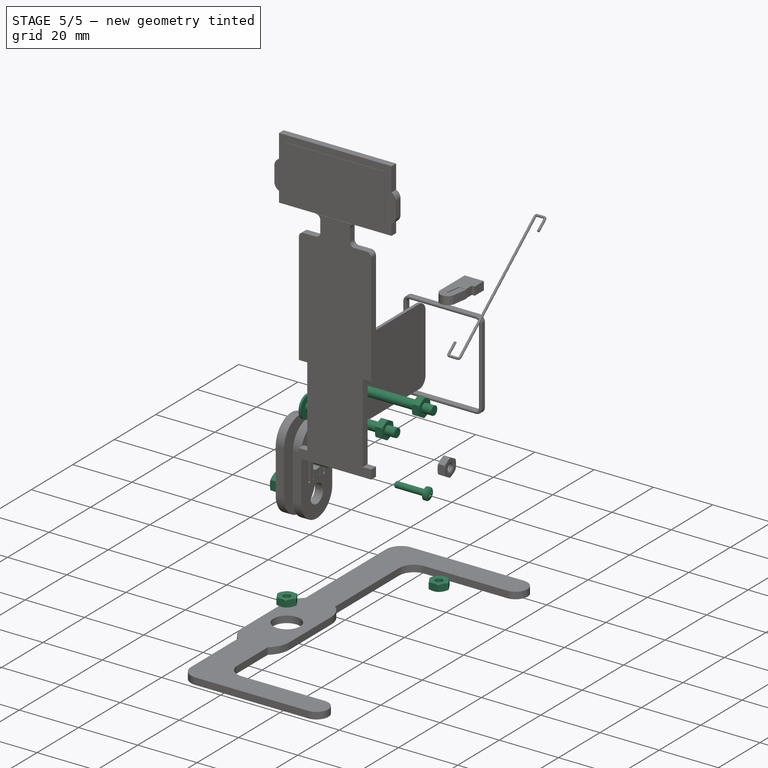
[diagram: stage 5 of 5 — iso view after this stage's code; geometry added in this stage tinted green]
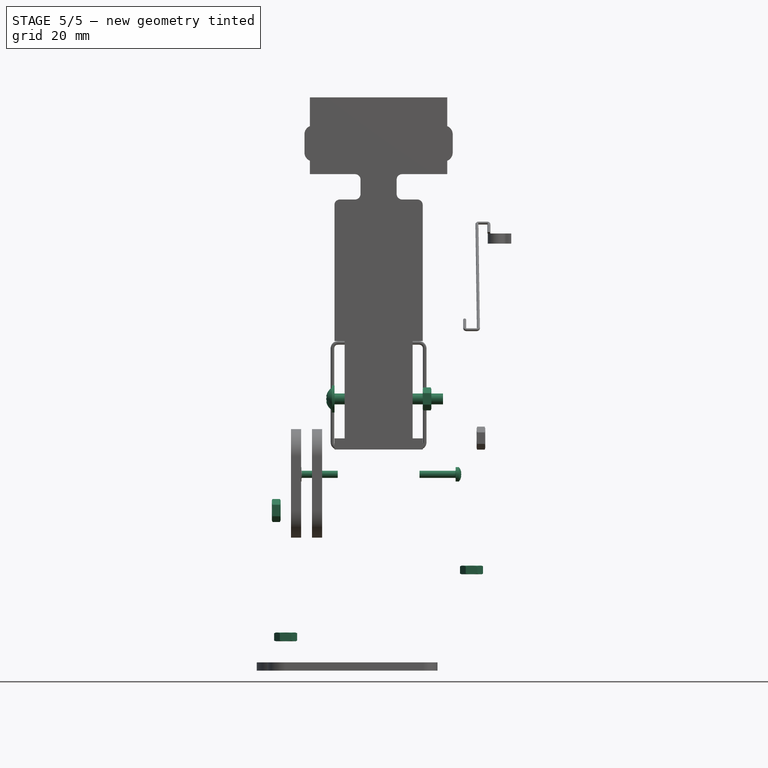
[diagram: stage 5 of 5 — front view after this stage's code; geometry added in this stage tinted green]
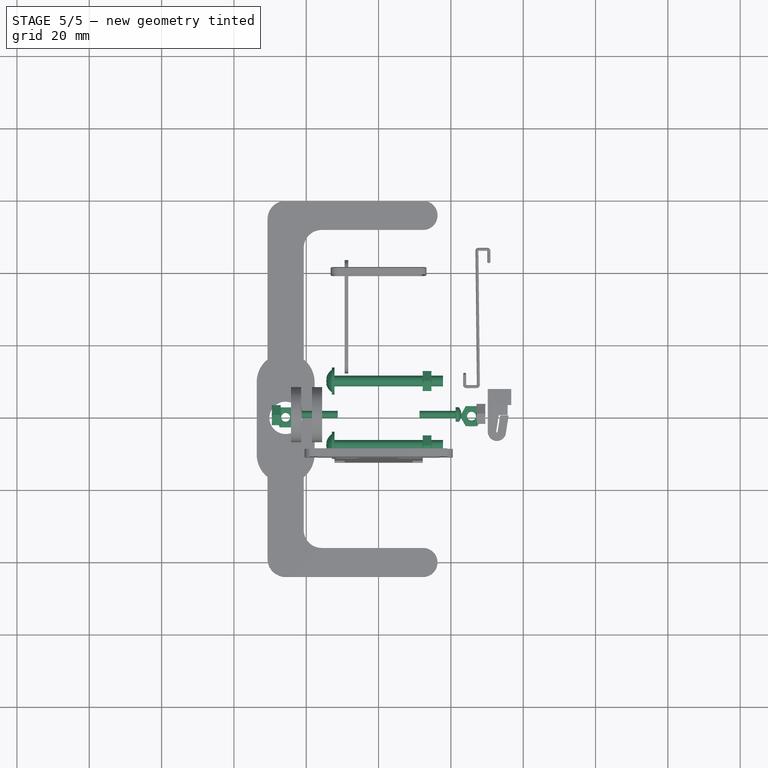
[diagram: stage 5 of 5 — top view after this stage's code; geometry added in this stage tinted green]
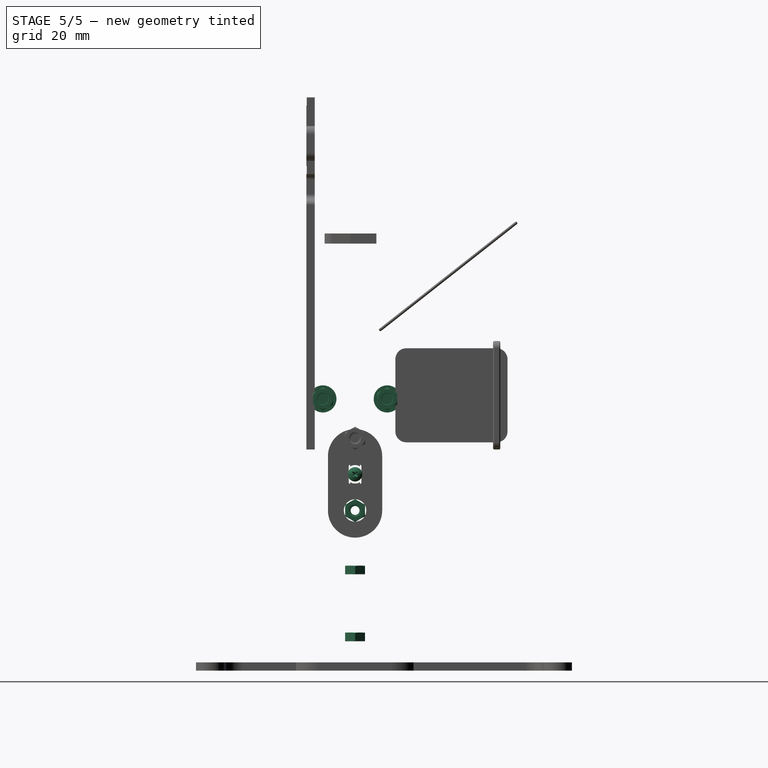
[diagram: stage 5 of 5 — right view after this stage's code; geometry added in this stage tinted green]
FEATURE [PartDesign::SubShapeBinder] Binder005
  BindCopyOnChange = 0
  BindMode = 0
  ClaimChildren = false
  Context = -> Body005 [Binder005.]
  Fuse = false
  MakeFace = true
  OffsetFill = false
  OffsetIntersection = false
  OffsetJoinType = 0
  OffsetOpenResult = false
  PartialLoad = false
  Relative = true
  Support = -> [Body004]
  _Version = 2
FEATURE [Part::FeaturePython] Screw  label="M3x14-Screw"  # Fasteners workbench fastener (typed FeaturePython)
  Placement = pos=(-15.5,7.6099e-12,-10) rot=(0,1,0;1.5708rad)
  diameter = 1
  invert = false
  leftHanded = false
  length = 6
  lengthCustom = 14
  matchOuter = false
  offset = 0
  thread = false
  type = 25
FEATURE [Part::FeaturePython] Nut  label="M3-Nut"  # Fasteners workbench fastener (typed FeaturePython)
  Placement = pos=(-29.5,7.6239e-12,-10) rot=(0,1,0;1.5708rad)
  baseObject = -> Screw [Edge71]
  diameter = 4
  invert = false
  leftHanded = false
  matchOuter = false
  offset = 0
  thread = false
  type = 25
FEATURE [PartDesign::SubShapeBinder] Binder021
  BindCopyOnChange = 0
  BindMode = 0
  ClaimChildren = false
  Context = -> Body023 [Binder021.]
  Fuse = false
  MakeFace = true
  OffsetFill = false
  OffsetIntersection = false
  OffsetJoinType = 0
  OffsetOpenResult = false
  PartialLoad = false
  Relative = true
  Support = -> [Body002]
  _Version = 2
FEATURE [PartDesign::Plane] DatumPlane004
  AttachmentOffset = pos=(0,0,0.1) rot=(0,0,1;0rad)
  Length = 147.254
  MapMode = 5
  Placement = pos=(-27.2,1.44e-14,-6e-15) rot=(-0.57735,0.57735,0.57735;4.18879rad)
  ResizeMode = 0
  Support = -> [Binder021]
  Width = 121.731
FEATURE [Part::FeaturePython] Screw001  label="M2x10-Screw"  # Fasteners workbench fastener (typed FeaturePython)
  Placement = pos=(-21.3,2e-15,3e-15) rot=(0,-1,0;1.5708rad)
  baseObject = -> Body003 [Edge18]
  diameter = 2
  invert = false
  leftHanded = false
  length = 5
  lengthCustom = 10
  matchOuter = false
  offset = 0
  thread = false
  type = 49
FEATURE [Part::FeaturePython] Screw002  label="M2x10-Screw001"  # Fasteners workbench fastener (typed FeaturePython)
  Placement = pos=(21.3,4e-15,-6e-15) rot=(0,1,0;1.5708rad)
  baseObject = -> Body009 [Edge18]
  diameter = 2
  invert = false
  leftHanded = false
  length = 5
  lengthCustom = 10
  matchOuter = false
  offset = 0
  thread = false
  type = 49
FEATURE [Part::FeaturePython] Screw003  label="M3x14-Screw078"  # Fasteners workbench fastener (typed FeaturePython)
  Placement = pos=(-25.7,2.89e-13,-52) rot=(0.999544,0.030195,0;3.14159rad)
  baseObject = -> Body007 [Edge86]
  diameter = 1
  invert = true
  leftHanded = false
  length = 6
  lengthCustom = 14
  matchOuter = false
  offset = 0
  thread = false
  type = 25
FEATURE [Part::FeaturePython] Nut003  label="M3-Nut187"  # Fasteners workbench fastener (typed FeaturePython)
  Placement = pos=(-25.7,2.88e-13,-43.75) rot=(1,0,0;3.14159rad)
  baseObject = -> Screw003 [Edge71]
  diameter = 4
  invert = false
  leftHanded = false
  matchOuter = false
  offset = 5.75
  thread = false
  type = 25
FEATURE [Part::FeaturePython] Screw004  label="M3x14-Screw079"  # Fasteners workbench fastener (typed FeaturePython)
  Placement = pos=(25.7,2.8e-13,-33.5) rot=(0.999544,-0.030195,0;3.14159rad)
  baseObject = -> Body015 [Edge87]
  diameter = 1
  invert = false
  leftHanded = false
  length = 6
  lengthCustom = 14
  matchOuter = false
  offset = 0
  thread = false
  type = 25
FEATURE [Part::FeaturePython] Nut004  label="M3-Nut188"  # Fasteners workbench fastener (typed FeaturePython)
  Placement = pos=(25.7,2.81e-13,-25.25) rot=(1,0,0;3.14159rad)
  baseObject = -> Screw004 [Edge71]
  diameter = 4
  invert = false
  leftHanded = false
  matchOuter = false
  offset = 5.75
  thread = false
  type = 25
FEATURE [Part::FeaturePython] Screw005  label="M3x30-Screw"  # Fasteners workbench fastener (typed FeaturePython)
  Placement = pos=(-12.2,-8.9,20.85) rot=(0,-1,0;1.5708rad)
  baseObject = -> Body017 [Edge105]
  diameter = 1
  invert = false
  leftHanded = false
  length = 10
  lengthCustom = 30
  matchOuter = false
  offset = 0
  thread = false
  type = 25
FEATURE [Part::FeaturePython] Nut005  label="M3-Nut189"  # Fasteners workbench fastener (typed FeaturePython)
  Placement = pos=(12.2,-8.9,20.85) rot=(0,1,0;1.5708rad)
  baseObject = -> Body018 [Edge104]
  diameter = 4
  invert = true
  leftHanded = false
  matchOuter = false
  offset = 0
  thread = false
  type = 25
FEATURE [Part::FeaturePython] Screw006  label="M3x30-Screw001"  # Fasteners workbench fastener (typed FeaturePython)
  Placement = pos=(-12.2,8.9,20.85) rot=(0,-1,0;1.5708rad)
  baseObject = -> Body017 [Edge108]
  diameter = 1
  invert = false
  leftHanded = false
  length = 10
  lengthCustom = 30
  matchOuter = false
  offset = 0
  thread = false
  type = 25
FEATURE [Part::FeaturePython] Nut006  label="M3-Nut190"  # Fasteners workbench fastener (typed FeaturePython)
  Placement = pos=(12.2,8.9,20.85) rot=(0,1,0;1.5708rad)
  baseObject = -> Body018 [Edge107]
  diameter = 4
  invert = true
  leftHanded = false
  matchOuter = false
  offset = 0
  thread = false
  type = 25
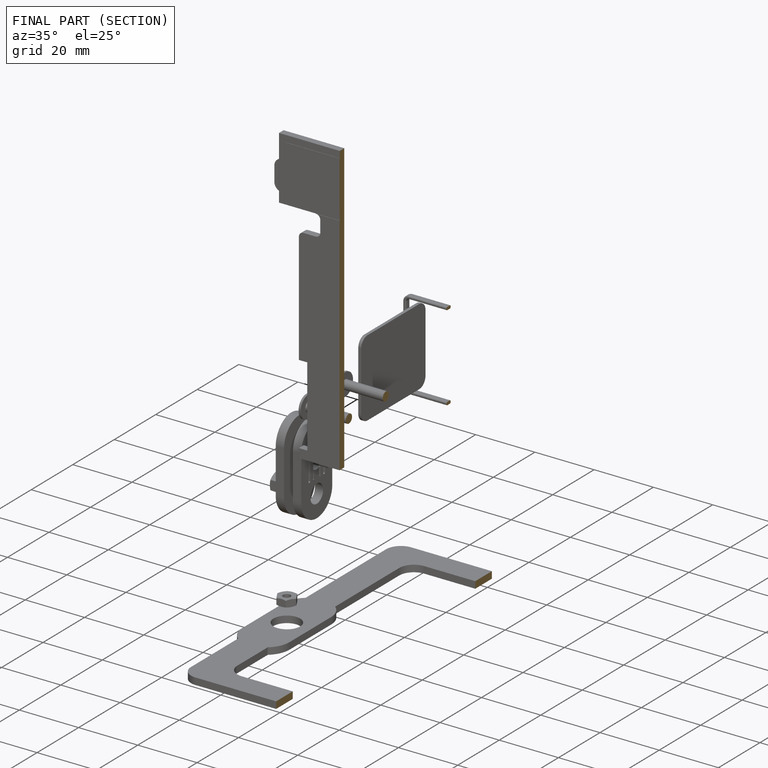
[diagram: finished part — half-section view (interior)]
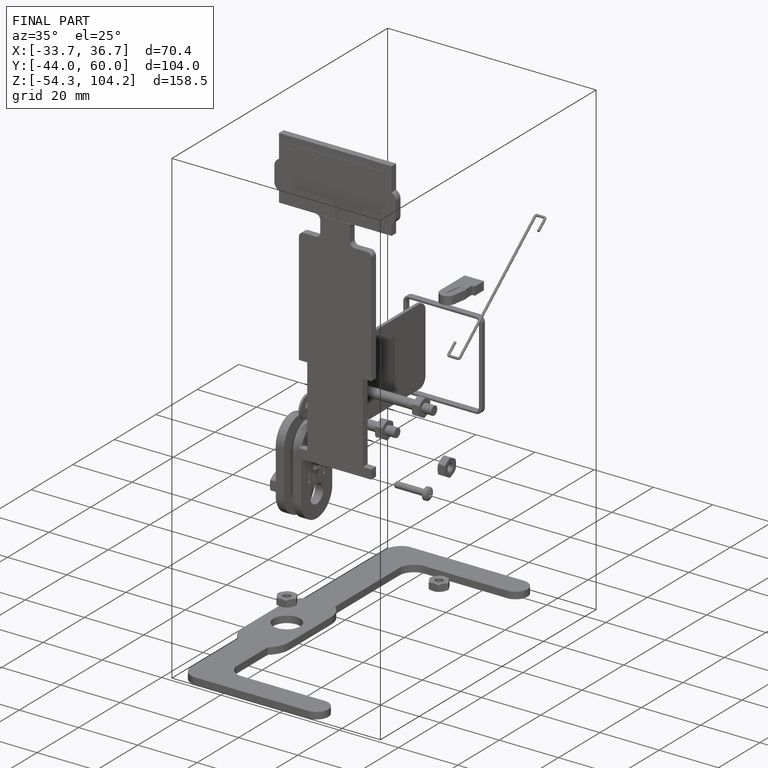
[diagram: finished part — iso view with bounding-box wireframe]
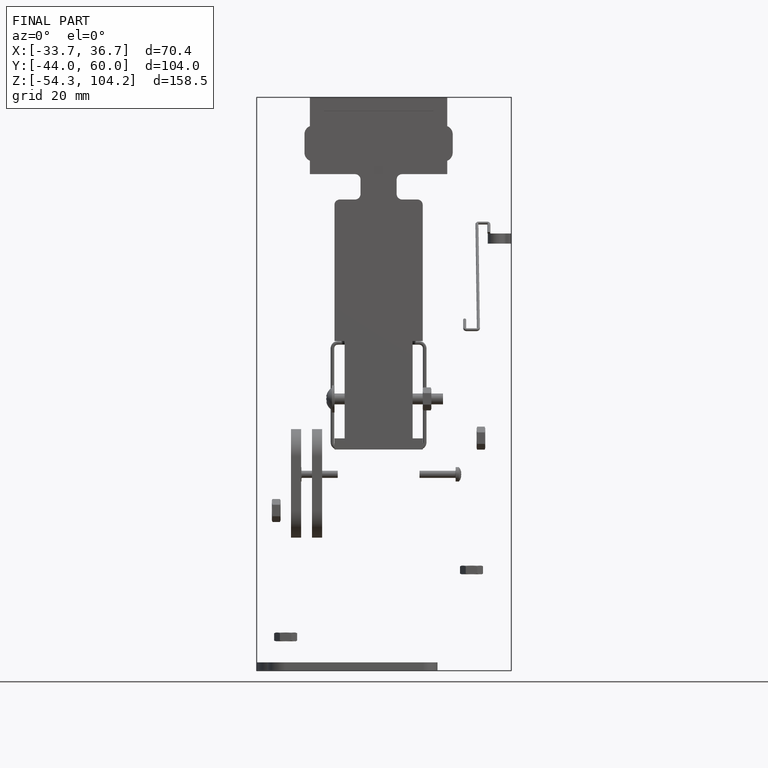
[diagram: finished part — front view with bounding-box wireframe]
